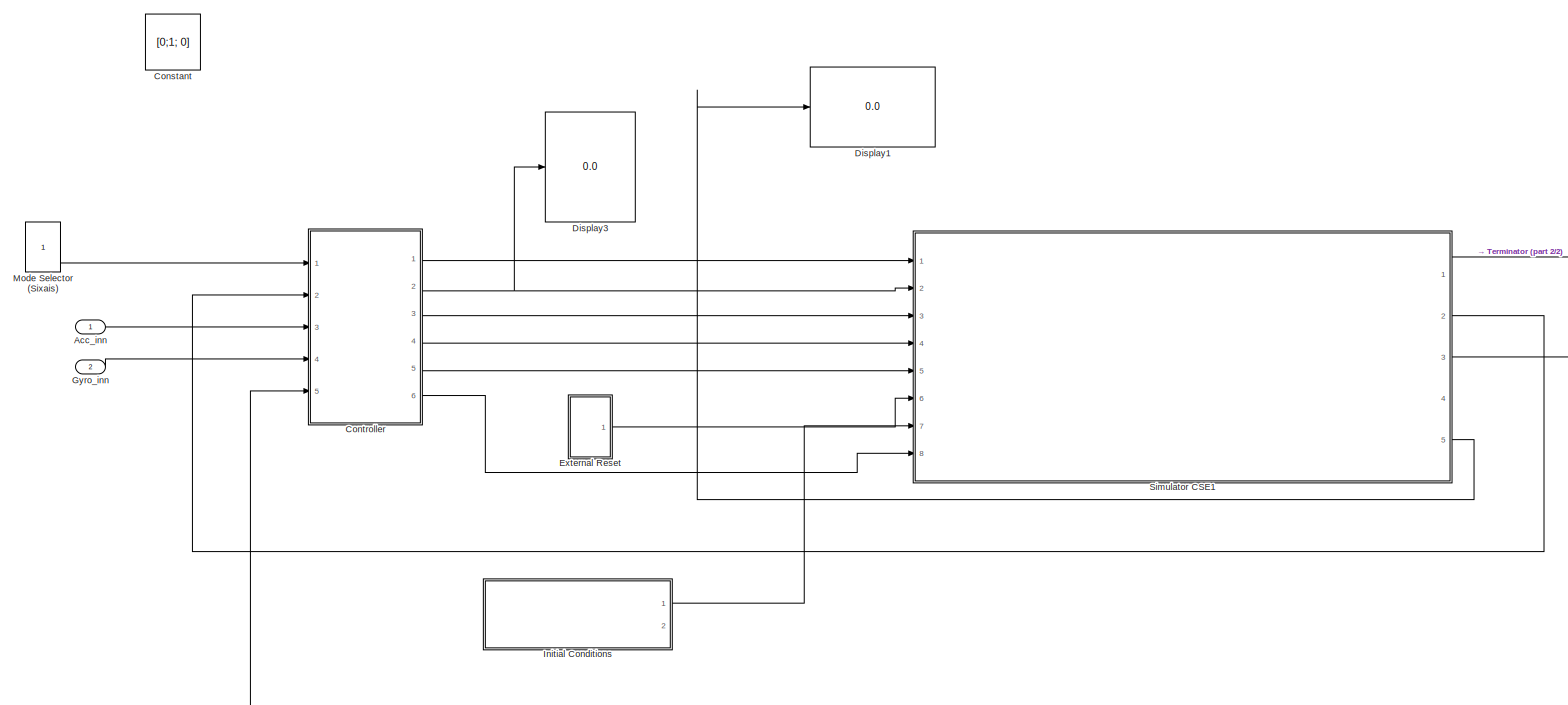
[diagram: root canvas - part 1/2, most of the canvas]
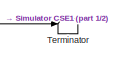
[diagram: root canvas - part 2/2, middle right region]
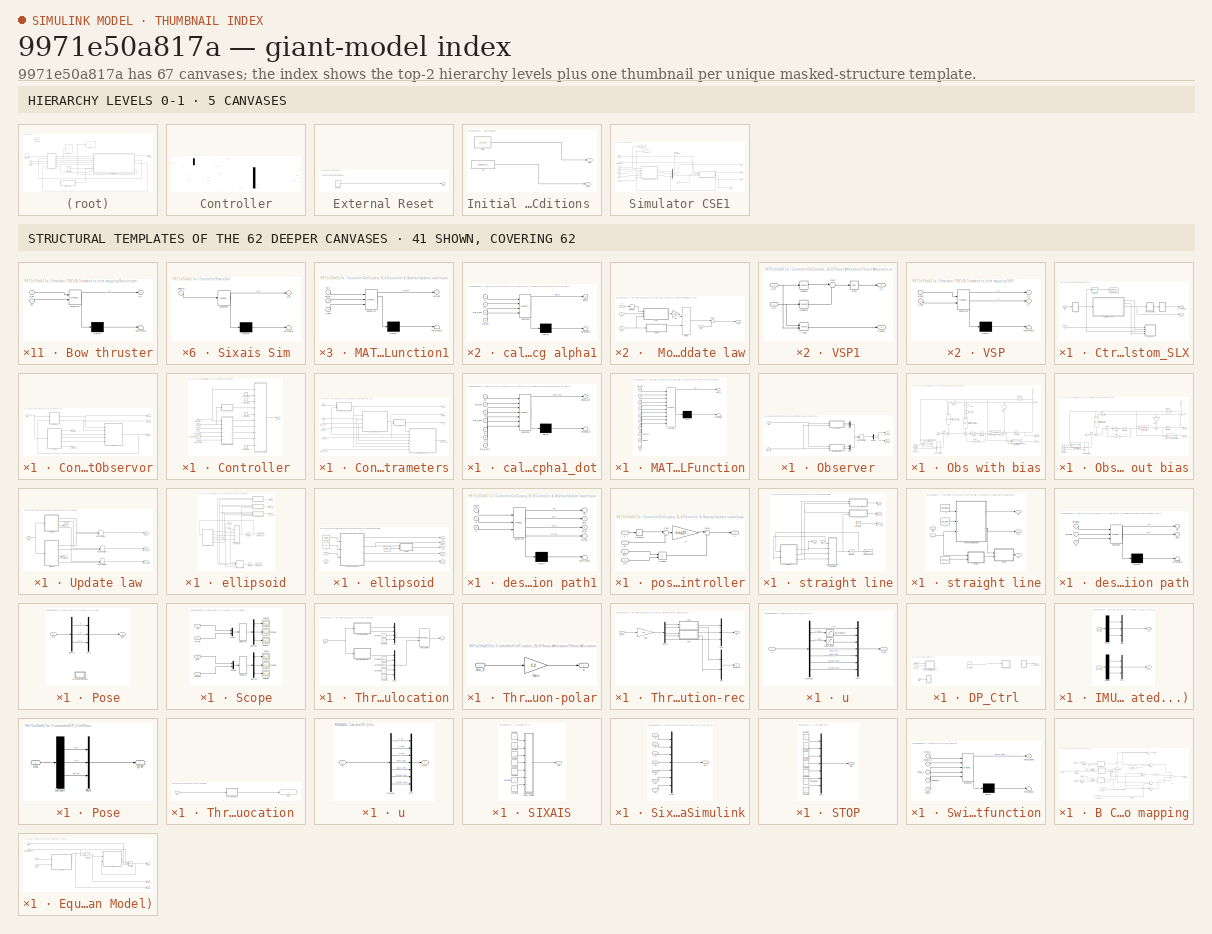
[diagram: thumbnail index - top-2 hierarchy levels (5 canvases) + 41 structural-template representatives of the remaining 62 canvases]
MODEL slx_9971e50a817a
KIND model
CONFIG AbsTol = auto
CONFIG EnableMultiTasking = off
CONFIG FixedStep = auto
CONFIG MaxStep = 10e-3
CONFIG MinStep = auto
CONFIG RelTol = 1e-3
CONFIG SampleTimeConstraint = Unconstrained
CONFIG Solver = VariableStepAuto
CONFIG SolverName = VariableStepAuto
CONFIG StartTime = 0.0
CONFIG StopTime = 200
BLOCK [Inport] Acc_inn
  IconDisplay = Port number
BLOCK [Constant] Constant
  Value = [0;1; 0]
BLOCK [SubSystem] Controller
  Ports = [5, 6]
  RequestExecContextInheritance = off
BLOCK [Inport] Controller/Acc_in
  IconDisplay = Port number
  Port = 3
BLOCK [SubSystem] Controller/CtrlCustom_SLX
  Ports = [2, 2]
  RequestExecContextInheritance = off
BLOCK [SubSystem] Controller/CtrlCustom_SLX/Controller & Observor
  Ports = [1, 5]
  RequestExecContextInheritance = off
BLOCK [SubSystem] Controller/CtrlCustom_SLX/Controller & Observor/Controller
  Ports = [5, 1]
  RequestExecContextInheritance = off
BLOCK [Constant] Controller/CtrlCustom_SLX/Controller & Observor/Controller/Constant10
  Value = D
BLOCK [Constant] Controller/CtrlCustom_SLX/Controller & Observor/Controller/Constant11
  Value = b
BLOCK [Constant] Controller/CtrlCustom_SLX/Controller & Observor/Controller/Constant7
  Value = K_1
BLOCK [Constant] Controller/CtrlCustom_SLX/Controller & Observor/Controller/Constant8
  Value = K_2
BLOCK [Constant] Controller/CtrlCustom_SLX/Controller & Observor/Controller/Constant9
  Value = M
BLOCK [SubSystem] Controller/CtrlCustom_SLX/Controller & Observor/Controller/Controller_parameters
  Ports = [6, 4]
  RequestExecContextInheritance = off
BLOCK [Inport] Controller/CtrlCustom_SLX/Controller & Observor/Controller/Controller_parameters/K1
  IconDisplay = Port number
  Port = 5
BLOCK [Outport] Controller/CtrlCustom_SLX/Controller & Observor/Controller/Controller_parameters/alpha1
  IconDisplay = Port number
  Port = 4
BLOCK [Outport] Controller/CtrlCustom_SLX/Controller & Observor/Controller/Controller_parameters/alpha1_dot
  IconDisplay = Port number
  Port = 3
BLOCK [SubSystem] Controller/CtrlCustom_SLX/Controller & Observor/Controller/Controller_parameters/calculating alpha1
  ErrorFcn = Stateflow.Translate.translate
  PermitHierarchicalResolution = ExplicitOnly
  Ports = [4, 1]
  RequestExecContextInheritance = off
  SFBlockType = MATLAB Function
  TreatAsAtomicUnit = on
BLOCK [Demux] Controller/CtrlCustom_SLX/Controller & Observor/Controller/Controller_parameters/calculating alpha1/ Demux 
  Outputs = 1
  Ports = [1, 1]
BLOCK [S-Function] Controller/CtrlCustom_SLX/Controller & Observor/Controller/Controller_parameters/calculating alpha1/ SFunction 
  EnableBusSupport = on
  FunctionName = sf_sfun
  PortCounts = [4 2]
  Ports = [4, 2]
  SFcnIsStateOwnerBlock = off
  SFunctionDeploymentMode = off
  Tag = Stateflow S-Function CSE1_HIL_full16_18a 21
BLOCK [Terminator] Controller/CtrlCustom_SLX/Controller & Observor/Controller/Controller_parameters/calculating alpha1/ Terminator 
BLOCK [Inport] Controller/CtrlCustom_SLX/Controller & Observor/Controller/Controller_parameters/calculating alpha1/K1
  IconDisplay = Port number
  Port = 2
BLOCK [Outport] Controller/CtrlCustom_SLX/Controller & Observor/Controller/Controller_parameters/calculating alpha1/alpha1
  IconDisplay = Port number
BLOCK [Inport] Controller/CtrlCustom_SLX/Controller & Observor/Controller/Controller_parameters/calculating alpha1/eta_d_dot
  IconDisplay = Port number
  Port = 3
BLOCK [Inport] Controller/CtrlCustom_SLX/Controller & Observor/Controller/Controller_parameters/calculating alpha1/eta_hat
  IconDisplay = Port number
  Port = 4
BLOCK [Inport] Controller/CtrlCustom_SLX/Controller & Observor/Controller/Controller_parameters/calculating alpha1/z1
  IconDisplay = Port number
BLOCK [SubSystem] Controller/CtrlCustom_SLX/Controller & Observor/Controller/Controller_parameters/calculating alpha1_dot
  ErrorFcn = Stateflow.Translate.translate
  PermitHierarchicalResolution = ExplicitOnly
  Ports = [7, 1]
  RequestExecContextInheritance = off
  SFBlockType = MATLAB Function
  TreatAsAtomicUnit = on
BLOCK [Demux] Controller/CtrlCustom_SLX/Controller & Observor/Controller/Controller_parameters/calculating alpha1_dot/ Demux 
  Outputs = 1
  Ports = [1, 1]
BLOCK [S-Function] Controller/CtrlCustom_SLX/Controller & Observor/Controller/Controller_parameters/calculating alpha1_dot/ SFunction 
  EnableBusSupport = on
  FunctionName = sf_sfun
  PortCounts = [7 2]
  Ports = [7, 2]
  SFcnIsStateOwnerBlock = off
  SFunctionDeploymentMode = off
  Tag = Stateflow S-Function CSE1_HIL_full16_18a 23
BLOCK [Terminator] Controller/CtrlCustom_SLX/Controller & Observor/Controller/Controller_parameters/calculating alpha1_dot/ Terminator 
BLOCK [Inport] Controller/CtrlCustom_SLX/Controller & Observor/Controller/Controller_parameters/calculating alpha1_dot/K1
  IconDisplay = Port number
  Port = 5
BLOCK [Outport] Controller/CtrlCustom_SLX/Controller & Observor/Controller/Controller_parameters/calculating alpha1_dot/alpha1_dot
  IconDisplay = Port number
BLOCK [Inport] Controller/CtrlCustom_SLX/Controller & Observor/Controller/Controller_parameters/calculating alpha1_dot/eta_d_dot
  IconDisplay = Port number
  Port = 4
BLOCK [Inport] Controller/CtrlCustom_SLX/Controller & Observor/Controller/Controller_parameters/calculating alpha1_dot/eta_d_dot2
  IconDisplay = Port number
  Port = 7
BLOCK [Inport] Controller/CtrlCustom_SLX/Controller & Observor/Controller/Controller_parameters/calculating alpha1_dot/eta_hat
  IconDisplay = Port number
  Port = 2
BLOCK [Inport] Controller/CtrlCustom_SLX/Controller & Observor/Controller/Controller_parameters/calculating alpha1_dot/nu
  IconDisplay = Port number
  Port = 3
BLOCK [Inport] Controller/CtrlCustom_SLX/Controller & Observor/Controller/Controller_parameters/calculating alpha1_dot/z1
  IconDisplay = Port number
  Port = 6
BLOCK [Inport] Controller/CtrlCustom_SLX/Controller & Observor/Controller/Controller_parameters/calculating alpha1_dot/z2
  IconDisplay = Port number
BLOCK [SubSystem] Controller/CtrlCustom_SLX/Controller & Observor/Controller/Controller_parameters/calculating z1 in BODY-frame
  ErrorFcn = Stateflow.Translate.translate
  PermitHierarchicalResolution = ExplicitOnly
  Ports = [2, 1]
  RequestExecContextInheritance = off
  SFBlockType = MATLAB Function
  TreatAsAtomicUnit = on
BLOCK [Demux] Controller/CtrlCustom_SLX/Controller & Observor/Controller/Controller_parameters/calculating z1 in BODY-frame/ Demux 
  Outputs = 1
  Ports = [1, 1]
BLOCK [S-Function] Controller/CtrlCustom_SLX/Controller & Observor/Controller/Controller_parameters/calculating z1 in BODY-frame/ SFunction 
  EnableBusSupport = on
  FunctionName = sf_sfun
  PortCounts = [2 2]
  Ports = [2, 2]
  SFcnIsStateOwnerBlock = off
  SFunctionDeploymentMode = off
  Tag = Stateflow S-Function CSE1_HIL_full16_18a 27
BLOCK [Terminator] Controller/CtrlCustom_SLX/Controller & Observor/Controller/Controller_parameters/calculating z1 in BODY-frame/ Terminator 
BLOCK [Inport] Controller/CtrlCustom_SLX/Controller & Observor/Controller/Controller_parameters/calculating z1 in BODY-frame/eta_d
  IconDisplay = Port number
BLOCK [Inport] Controller/CtrlCustom_SLX/Controller & Observor/Controller/Controller_parameters/calculating z1 in BODY-frame/eta_hat
  IconDisplay = Port number
  Port = 2
BLOCK [Outport] Controller/CtrlCustom_SLX/Controller & Observor/Controller/Controller_parameters/calculating z1 in BODY-frame/z1
  IconDisplay = Port number
BLOCK [SubSystem] Controller/CtrlCustom_SLX/Controller & Observor/Controller/Controller_parameters/calculating z2
  ErrorFcn = Stateflow.Translate.translate
  PermitHierarchicalResolution = ExplicitOnly
  Ports = [2, 1]
  RequestExecContextInheritance = off
  SFBlockType = MATLAB Function
  TreatAsAtomicUnit = on
BLOCK [Demux] Controller/CtrlCustom_SLX/Controller & Observor/Controller/Controller_parameters/calculating z2/ Demux 
  Outputs = 1
  Ports = [1, 1]
BLOCK [S-Function] Controller/CtrlCustom_SLX/Controller & Observor/Controller/Controller_parameters/calculating z2/ SFunction 
  EnableBusSupport = on
  FunctionName = sf_sfun
  PortCounts = [2 2]
  Ports = [2, 2]
  SFcnIsStateOwnerBlock = off
  SFunctionDeploymentMode = off
  Tag = Stateflow S-Function CSE1_HIL_full16_18a 28
BLOCK [Terminator] Controller/CtrlCustom_SLX/Controller & Observor/Controller/Controller_parameters/calculating z2/ Terminator 
BLOCK [Inport] Controller/CtrlCustom_SLX/Controller & Observor/Controller/Controller_parameters/calculating z2/alpha1
  IconDisplay = Port number
BLOCK [Inport] Controller/CtrlCustom_SLX/Controller & Observor/Controller/Controller_parameters/calculating z2/nu
  IconDisplay = Port number
  Port = 2
BLOCK [Outport] Controller/CtrlCustom_SLX/Controller & Observor/Controller/Controller_parameters/calculating z2/z2
  IconDisplay = Port number
BLOCK [Inport] Controller/CtrlCustom_SLX/Controller & Observor/Controller/Controller_parameters/eta_d
  IconDisplay = Port number
  Port = 3
BLOCK [Inport] Controller/CtrlCustom_SLX/Controller & Observor/Controller/Controller_parameters/eta_d_dot
  IconDisplay = Port number
  Port = 4
BLOCK [Inport] Controller/CtrlCustom_SLX/Controller & Observor/Controller/Controller_parameters/eta_d_dot2
  IconDisplay = Port number
  Port = 6
BLOCK [Inport] Controller/CtrlCustom_SLX/Controller & Observor/Controller/Controller_parameters/eta_hat
  IconDisplay = Port number
BLOCK [Inport] Controller/CtrlCustom_SLX/Controller & Observor/Controller/Controller_parameters/nu_hat
  IconDisplay = Port number
  Port = 2
BLOCK [Outport] Controller/CtrlCustom_SLX/Controller & Observor/Controller/Controller_parameters/z1
  IconDisplay = Port number
BLOCK [Outport] Controller/CtrlCustom_SLX/Controller & Observor/Controller/Controller_parameters/z2
  IconDisplay = Port number
  Port = 2
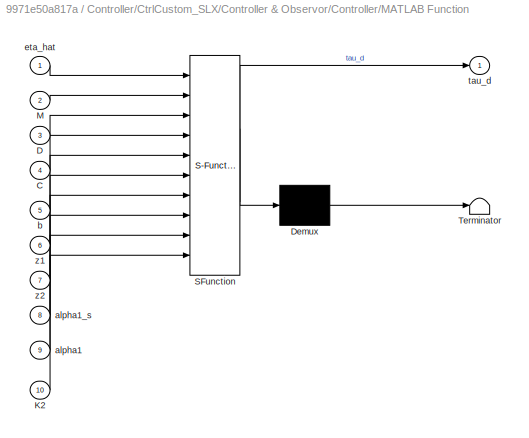
BLOCK [SubSystem] Controller/CtrlCustom_SLX/Controller & Observor/Controller/MATLAB Function
  ErrorFcn = Stateflow.Translate.translate
  PermitHierarchicalResolution = ExplicitOnly
  Ports = [10, 1]
  RequestExecContextInheritance = off
  SFBlockType = MATLAB Function
  TreatAsAtomicUnit = on
BLOCK [Demux] Controller/CtrlCustom_SLX/Controller & Observor/Controller/MATLAB Function/ Demux 
  Outputs = 1
  Ports = [1, 1]
BLOCK [S-Function] Controller/CtrlCustom_SLX/Controller & Observor/Controller/MATLAB Function/ SFunction 
  EnableBusSupport = on
  FunctionName = sf_sfun
  PortCounts = [10 2]
  Ports = [10, 2]
  SFcnIsStateOwnerBlock = off
  SFunctionDeploymentMode = off
  Tag = Stateflow S-Function CSE1_HIL_full16_18a 29
BLOCK [Terminator] Controller/CtrlCustom_SLX/Controller & Observor/Controller/MATLAB Function/ Terminator 
BLOCK [Inport] Controller/CtrlCustom_SLX/Controller & Observor/Controller/MATLAB Function/C
  IconDisplay = Port number
  Port = 4
BLOCK [Inport] Controller/CtrlCustom_SLX/Controller & Observor/Controller/MATLAB Function/D
  IconDisplay = Port number
  Port = 3
BLOCK [Inport] Controller/CtrlCustom_SLX/Controller & Observor/Controller/MATLAB Function/K2
  IconDisplay = Port number
  Port = 10
BLOCK [Inport] Controller/CtrlCustom_SLX/Controller & Observor/Controller/MATLAB Function/M
  IconDisplay = Port number
  Port = 2
BLOCK [Inport] Controller/CtrlCustom_SLX/Controller & Observor/Controller/MATLAB Function/alpha1
  IconDisplay = Port number
  Port = 9
BLOCK [Inport] Controller/CtrlCustom_SLX/Controller & Observor/Controller/MATLAB Function/alpha1_s
  IconDisplay = Port number
  Port = 8
BLOCK [Inport] Controller/CtrlCustom_SLX/Controller & Observor/Controller/MATLAB Function/b
  IconDisplay = Port number
  Port = 5
BLOCK [Inport] Controller/CtrlCustom_SLX/Controller & Observor/Controller/MATLAB Function/eta_hat
  IconDisplay = Port number
BLOCK [Outport] Controller/CtrlCustom_SLX/Controller & Observor/Controller/MATLAB Function/tau_d
  IconDisplay = Port number
BLOCK [Inport] Controller/CtrlCustom_SLX/Controller & Observor/Controller/MATLAB Function/z1
  IconDisplay = Port number
  Port = 6
BLOCK [Inport] Controller/CtrlCustom_SLX/Controller & Observor/Controller/MATLAB Function/z2
  IconDisplay = Port number
  Port = 7
BLOCK [SubSystem] Controller/CtrlCustom_SLX/Controller & Observor/Controller/MATLAB Function1
  ErrorFcn = Stateflow.Translate.translate
  PermitHierarchicalResolution = ExplicitOnly
  Ports = [1, 1]
  RequestExecContextInheritance = off
  SFBlockType = MATLAB Function
  TreatAsAtomicUnit = on
BLOCK [Demux] Controller/CtrlCustom_SLX/Controller & Observor/Controller/MATLAB Function1/ Demux 
  Outputs = 1
  Ports = [1, 1]
BLOCK [S-Function] Controller/CtrlCustom_SLX/Controller & Observor/Controller/MATLAB Function1/ SFunction 
  EnableBusSupport = on
  FunctionName = sf_sfun
  PortCounts = [1 2]
  Ports = [1, 2]
  SFcnIsStateOwnerBlock = off
  SFunctionDeploymentMode = off
  Tag = Stateflow S-Function CSE1_HIL_full16_18a 30
BLOCK [Terminator] Controller/CtrlCustom_SLX/Controller & Observor/Controller/MATLAB Function1/ Terminator 
BLOCK [Outport] Controller/CtrlCustom_SLX/Controller & Observor/Controller/MATLAB Function1/C
  IconDisplay = Port number
BLOCK [Inport] Controller/CtrlCustom_SLX/Controller & Observor/Controller/MATLAB Function1/nu_hat
  IconDisplay = Port number
BLOCK [Inport] Controller/CtrlCustom_SLX/Controller & Observor/Controller/eta_d
  IconDisplay = Port number
  Port = 3
BLOCK [Inport] Controller/CtrlCustom_SLX/Controller & Observor/Controller/eta_d_dot
  IconDisplay = Port number
  Port = 4
BLOCK [Inport] Controller/CtrlCustom_SLX/Controller & Observor/Controller/eta_d_dot2
  IconDisplay = Port number
  Port = 5
BLOCK [Inport] Controller/CtrlCustom_SLX/Controller & Observor/Controller/eta_hat
  IconDisplay = Port number
BLOCK [Inport] Controller/CtrlCustom_SLX/Controller & Observor/Controller/nu_hat
  IconDisplay = Port number
  Port = 2
BLOCK [Outport] Controller/CtrlCustom_SLX/Controller & Observor/Controller/tau_d
  IconDisplay = Port number
BLOCK [SubSystem] Controller/CtrlCustom_SLX/Controller & Observor/Observer
  Ports = [2, 2]
  RequestExecContextInheritance = off
BLOCK [Demux] Controller/CtrlCustom_SLX/Controller & Observor/Observer/Demux
  DisplayOption = bar
  Outputs = 2
  Ports = [1, 2]
BLOCK [ManualSwitch] Controller/CtrlCustom_SLX/Controller & Observor/Observer/Manual Switch
BLOCK [Mux] Controller/CtrlCustom_SLX/Controller & Observor/Observer/Mux
  DisplayOption = bar
  Inputs = 2
  Ports = [2, 1]
BLOCK [Mux] Controller/CtrlCustom_SLX/Controller & Observor/Observer/Mux1
  DisplayOption = bar
  Inputs = 2
  Ports = [2, 1]
BLOCK [SubSystem] Controller/CtrlCustom_SLX/Controller & Observor/Observer/Obs with bias
  Ports = [2, 2]
  RequestExecContextInheritance = off
BLOCK [Constant] Controller/CtrlCustom_SLX/Controller & Observor/Observer/Obs with bias/Constant
  Value = [5 5 5]'
BLOCK [Constant] Controller/CtrlCustom_SLX/Controller & Observor/Observer/Obs with bias/Constant1
  Value = [0 0 0]'
BLOCK [Gain] Controller/CtrlCustom_SLX/Controller & Observor/Observer/Obs with bias/Gain
  Gain = L_2
  Multiplication = Matrix(K*u)
  OutDataTypeStr = Inherit: Inherit via internal rule
  ParamDataTypeStr = Inherit: Inherit via internal rule
  SaturateOnIntegerOverflow = off
BLOCK [Gain] Controller/CtrlCustom_SLX/Controller & Observor/Observer/Obs with bias/Gain1
  Gain = inv_M
  Multiplication = Matrix(K*u)
  OutDataTypeStr = Inherit: Inherit via internal rule
  ParamDataTypeStr = Inherit: Inherit via internal rule
  SaturateOnIntegerOverflow = off
BLOCK [Gain] Controller/CtrlCustom_SLX/Controller & Observor/Observer/Obs with bias/Gain2
  Gain = D
  Multiplication = Matrix(K*u)
  OutDataTypeStr = Inherit: Inherit via internal rule
  ParamDataTypeStr = Inherit: Inherit via internal rule
  SaturateOnIntegerOverflow = off
BLOCK [Gain] Controller/CtrlCustom_SLX/Controller & Observor/Observer/Obs with bias/Gain4
  Gain = L_3
  Multiplication = Matrix(K*u)
  OutDataTypeStr = Inherit: Inherit via internal rule
  ParamDataTypeStr = Inherit: Inherit via internal rule
  SaturateOnIntegerOverflow = off
BLOCK [Gain] Controller/CtrlCustom_SLX/Controller & Observor/Observer/Obs with bias/Gain7
  Gain = L_1
  Multiplication = Matrix(K*u)
  OutDataTypeStr = Inherit: Inherit via internal rule
  ParamDataTypeStr = Inherit: Inherit via internal rule
  SaturateOnIntegerOverflow = off
BLOCK [Integrator] Controller/CtrlCustom_SLX/Controller & Observor/Observer/Obs with bias/Integrator
  Ports = [1, 1]
BLOCK [Integrator] Controller/CtrlCustom_SLX/Controller & Observor/Observer/Obs with bias/Integrator2
  Ports = [1, 1]
BLOCK [Integrator] Controller/CtrlCustom_SLX/Controller & Observor/Observer/Obs with bias/Integrator3
  Ports = [1, 1]
BLOCK [ManualSwitch] Controller/CtrlCustom_SLX/Controller & Observor/Observer/Obs with bias/Manual Switch
  CurrentSetting = 0
BLOCK [Reference] Controller/CtrlCustom_SLX/Controller & Observor/Observer/Obs with bias/Rotation matrix Body frame -> NED  REF=lib/Rotation matrix  (lib defined in slx_8e0b7e7613f0, slx_8fc754c0eda6, +7 more)
  Ports = [2, 1]
  SourceBlock = lib/Rotation matrix
  SourceType = SubSystem
BLOCK [Selector] Controller/CtrlCustom_SLX/Controller & Observor/Observer/Obs with bias/Selector
  IndexOptions = Index vector (dialog)
  Indices = [ 3]
  InputPortWidth = 3
  OutputSizes = 1
  Ports = [1, 1]
BLOCK [Sum] Controller/CtrlCustom_SLX/Controller & Observor/Observer/Obs with bias/Sum
  IconShape = round
  InputSameDT = off
  Inputs = ++|
  OutDataTypeStr = Inherit: Inherit via internal rule
  Ports = [2, 1]
  SaturateOnIntegerOverflow = off
BLOCK [Sum] Controller/CtrlCustom_SLX/Controller & Observor/Observer/Obs with bias/Sum1
  IconShape = round
  InputSameDT = off
  Inputs = ++-
  OutDataTypeStr = Inherit: Inherit via internal rule
  Ports = [3, 1]
  SaturateOnIntegerOverflow = off
BLOCK [Sum] Controller/CtrlCustom_SLX/Controller & Observor/Observer/Obs with bias/Sum2
  IconShape = round
  InputSameDT = off
  Inputs = |++
  OutDataTypeStr = Inherit: Inherit via internal rule
  Ports = [2, 1]
  SaturateOnIntegerOverflow = off
BLOCK [Sum] Controller/CtrlCustom_SLX/Controller & Observor/Observer/Obs with bias/Sum5
  IconShape = round
  InputSameDT = off
  Inputs = +|-
  OutDataTypeStr = Inherit: Inherit via internal rule
  Ports = [2, 1]
  SaturateOnIntegerOverflow = off
BLOCK [Sum] Controller/CtrlCustom_SLX/Controller & Observor/Observer/Obs with bias/Sum6
  IconShape = round
  InputSameDT = off
  Inputs = ++|
  OutDataTypeStr = Inherit: Inherit via internal rule
  Ports = [2, 1]
  SaturateOnIntegerOverflow = off
BLOCK [Reference] Controller/CtrlCustom_SLX/Controller & Observor/Observer/Obs with bias/Transposed rotation matrix NED -> Body frame  REF=lib/Transposed rotation matrix  (lib defined in slx_8e0b7e7613f0, slx_8fc754c0eda6, +7 more)
  Ports = [2, 1]
  SourceBlock = lib/Transposed rotation matrix
  SourceType = SubSystem
BLOCK [Reference] Controller/CtrlCustom_SLX/Controller & Observor/Observer/Obs with bias/Transposed rotation matrix NED -> Body frame1  REF=lib/Transposed rotation matrix  (lib defined in slx_8e0b7e7613f0, slx_8fc754c0eda6, +7 more)
  Ports = [2, 1]
  SourceBlock = lib/Transposed rotation matrix
  SourceType = SubSystem
BLOCK [Reference] Controller/CtrlCustom_SLX/Controller & Observor/Observer/Obs with bias/Transposed rotation matrix NED -> Body frame2  REF=lib/Transposed rotation matrix  (lib defined in slx_8e0b7e7613f0, slx_8fc754c0eda6, +7 more)
  Ports = [2, 1]
  SourceBlock = lib/Transposed rotation matrix
  SourceType = SubSystem
BLOCK [Reference] Controller/CtrlCustom_SLX/Controller & Observor/Observer/Obs with bias/Transposed rotation matrix NED -> Body frame3  REF=lib/Transposed rotation matrix  (lib defined in slx_8e0b7e7613f0, slx_8fc754c0eda6, +7 more)
  Ports = [2, 1]
  SourceBlock = lib/Transposed rotation matrix
  SourceType = SubSystem
BLOCK [Inport] Controller/CtrlCustom_SLX/Controller & Observor/Observer/Obs with bias/eta
  IconDisplay = Port number
BLOCK [Outport] Controller/CtrlCustom_SLX/Controller & Observor/Observer/Obs with bias/eta_hat
  IconDisplay = Port number
  Port = 2
BLOCK [Outport] Controller/CtrlCustom_SLX/Controller & Observor/Observer/Obs with bias/nu_hat
  IconDisplay = Port number
BLOCK [Inport] Controller/CtrlCustom_SLX/Controller & Observor/Observer/Obs with bias/tau_d
  IconDisplay = Port number
  Port = 2
BLOCK [SubSystem] Controller/CtrlCustom_SLX/Controller & Observor/Observer/Obs without bias
  Ports = [2, 2]
  RequestExecContextInheritance = off
BLOCK [Constant] Controller/CtrlCustom_SLX/Controller & Observor/Observer/Obs without bias/Constant
  Value = [5 5 5]'
BLOCK [Constant] Controller/CtrlCustom_SLX/Controller & Observor/Observer/Obs without bias/Constant1
  Value = [0 0 0]'
BLOCK [Gain] Controller/CtrlCustom_SLX/Controller & Observor/Observer/Obs without bias/Gain
  Gain = L_2
  Multiplication = Matrix(K*u)
  OutDataTypeStr = Inherit: Inherit via internal rule
  ParamDataTypeStr = Inherit: Inherit via internal rule
  SaturateOnIntegerOverflow = off
BLOCK [Gain] Controller/CtrlCustom_SLX/Controller & Observor/Observer/Obs without bias/Gain1
  Gain = inv_M
  Multiplication = Matrix(K*u)
  OutDataTypeStr = Inherit: Inherit via internal rule
  ParamDataTypeStr = Inherit: Inherit via internal rule
  SaturateOnIntegerOverflow = off
BLOCK [Gain] Controller/CtrlCustom_SLX/Controller & Observor/Observer/Obs without bias/Gain2
  Gain = D
  Multiplication = Matrix(K*u)
  OutDataTypeStr = Inherit: Inherit via internal rule
  ParamDataTypeStr = Inherit: Inherit via internal rule
  SaturateOnIntegerOverflow = off
BLOCK [Gain] Controller/CtrlCustom_SLX/Controller & Observor/Observer/Obs without bias/Gain7
  Gain = L_1
  Multiplication = Matrix(K*u)
  OutDataTypeStr = Inherit: Inherit via internal rule
  ParamDataTypeStr = Inherit: Inherit via internal rule
  SaturateOnIntegerOverflow = off
BLOCK [Integrator] Controller/CtrlCustom_SLX/Controller & Observor/Observer/Obs without bias/Integrator
  Ports = [1, 1]
BLOCK [Integrator] Controller/CtrlCustom_SLX/Controller & Observor/Observer/Obs without bias/Integrator3
  Ports = [1, 1]
BLOCK [ManualSwitch] Controller/CtrlCustom_SLX/Controller & Observor/Observer/Obs without bias/Manual Switch
BLOCK [Reference] Controller/CtrlCustom_SLX/Controller & Observor/Observer/Obs without bias/Rotation matrix  REF=lib/Rotation matrix  (lib defined in slx_8e0b7e7613f0, slx_8fc754c0eda6, +7 more)
  Ports = [2, 1]
  SourceBlock = lib/Rotation matrix
  SourceType = SubSystem
BLOCK [Selector] Controller/CtrlCustom_SLX/Controller & Observor/Observer/Obs without bias/Selector
  IndexOptions = Index vector (dialog)
  Indices = [ 3]
  InputPortWidth = 3
  OutputSizes = 1
  Ports = [1, 1]
BLOCK [Sum] Controller/CtrlCustom_SLX/Controller & Observor/Observer/Obs without bias/Sum
  IconShape = round
  InputSameDT = off
  Inputs = ++|
  OutDataTypeStr = Inherit: Inherit via internal rule
  Ports = [2, 1]
  SaturateOnIntegerOverflow = off
BLOCK [Sum] Controller/CtrlCustom_SLX/Controller & Observor/Observer/Obs without bias/Sum1
  IconShape = round
  InputSameDT = off
  Inputs = |+-
  OutDataTypeStr = Inherit: Inherit via internal rule
  Ports = [2, 1]
  SaturateOnIntegerOverflow = off
BLOCK [Sum] Controller/CtrlCustom_SLX/Controller & Observor/Observer/Obs without bias/Sum2
  IconShape = round
  InputSameDT = off
  Inputs = |++
  OutDataTypeStr = Inherit: Inherit via internal rule
  Ports = [2, 1]
  SaturateOnIntegerOverflow = off
BLOCK [Sum] Controller/CtrlCustom_SLX/Controller & Observor/Observer/Obs without bias/Sum5
  IconShape = round
  InputSameDT = off
  Inputs = +|-
  OutDataTypeStr = Inherit: Inherit via internal rule
  Ports = [2, 1]
  SaturateOnIntegerOverflow = off
BLOCK [Sum] Controller/CtrlCustom_SLX/Controller & Observor/Observer/Obs without bias/Sum6
  IconShape = round
  InputSameDT = off
  Inputs = ++|
  OutDataTypeStr = Inherit: Inherit via internal rule
  Ports = [2, 1]
  SaturateOnIntegerOverflow = off
BLOCK [Reference] Controller/CtrlCustom_SLX/Controller & Observor/Observer/Obs without bias/Transposed rotation matrix  REF=lib/Transposed rotation matrix  (lib defined in slx_8e0b7e7613f0, slx_8fc754c0eda6, +7 more)
  Ports = [2, 1]
  SourceBlock = lib/Transposed rotation matrix
  SourceType = SubSystem
BLOCK [Reference] Controller/CtrlCustom_SLX/Controller & Observor/Observer/Obs without bias/Transposed rotation matrix NED -> Body frame3  REF=lib/Transposed rotation matrix  (lib defined in slx_8e0b7e7613f0, slx_8fc754c0eda6, +7 more)
  Ports = [2, 1]
  SourceBlock = lib/Transposed rotation matrix
  SourceType = SubSystem
BLOCK [Reference] Controller/CtrlCustom_SLX/Controller & Observor/Observer/Obs without bias/Transposed rotation matrix1  REF=lib/Transposed rotation matrix  (lib defined in slx_8e0b7e7613f0, slx_8fc754c0eda6, +7 more)
  Ports = [2, 1]
  SourceBlock = lib/Transposed rotation matrix
  SourceType = SubSystem
BLOCK [Inport] Controller/CtrlCustom_SLX/Controller & Observor/Observer/Obs without bias/eta
  IconDisplay = Port number
BLOCK [Outport] Controller/CtrlCustom_SLX/Controller & Observor/Observer/Obs without bias/eta_hat
  IconDisplay = Port number
  Port = 2
BLOCK [Outport] Controller/CtrlCustom_SLX/Controller & Observor/Observer/Obs without bias/nu_hat
  IconDisplay = Port number
BLOCK [Inport] Controller/CtrlCustom_SLX/Controller & Observor/Observer/Obs without bias/tau_d
  IconDisplay = Port number
  Port = 2
BLOCK [Inport] Controller/CtrlCustom_SLX/Controller & Observor/Observer/eta
  IconDisplay = Port number
BLOCK [Outport] Controller/CtrlCustom_SLX/Controller & Observor/Observer/eta_hat
  IconDisplay = Port number
BLOCK [Outport] Controller/CtrlCustom_SLX/Controller & Observor/Observer/nu_hat
  IconDisplay = Port number
  Port = 2
BLOCK [Inport] Controller/CtrlCustom_SLX/Controller & Observor/Observer/tau_d
  IconDisplay = Port number
  Port = 2
BLOCK [SubSystem] Controller/CtrlCustom_SLX/Controller & Observor/Update law
  Ports = [1, 5]
  RequestExecContextInheritance = off
BLOCK [ManualSwitch] Controller/CtrlCustom_SLX/Controller & Observor/Update law/Manual Switch1
BLOCK [ManualSwitch] Controller/CtrlCustom_SLX/Controller & Observor/Update law/Manual Switch2
BLOCK [ManualSwitch] Controller/CtrlCustom_SLX/Controller & Observor/Update law/Manual Switch4
BLOCK [Outport] Controller/CtrlCustom_SLX/Controller & Observor/Update law/Us_ellipsoid
  IconDisplay = Port number
  Port = 5
BLOCK [Outport] Controller/CtrlCustom_SLX/Controller & Observor/Update law/Us_line
  IconDisplay = Port number
BLOCK [SubSystem] Controller/CtrlCustom_SLX/Controller & Observor/Update law/ellipsoid
  Ports = [1, 4]
  RequestExecContextInheritance = off
BLOCK [SubSystem] Controller/CtrlCustom_SLX/Controller & Observor/Update law/ellipsoid/ Modified gradient update law
  Ports = [4, 1]
  RequestExecContextInheritance = off
BLOCK [Product] Controller/CtrlCustom_SLX/Controller & Observor/Update law/ellipsoid/ Modified gradient update law/Divide
  InputSameDT = off
  Inputs = */
  OutDataTypeStr = Inherit: Inherit via internal rule
  Ports = [2, 1]
  RndMeth = Floor
  SaturateOnIntegerOverflow = off
BLOCK [Selector] Controller/CtrlCustom_SLX/Controller & Observor/Update law/ellipsoid/ Modified gradient update law/Selector
  IndexOptions = Index vector (dialog)
  Indices = [1 2]
  InputPortWidth = 3
  OutputSizes = 1
  Ports = [1, 1]
BLOCK [Sum] Controller/CtrlCustom_SLX/Controller & Observor/Update law/ellipsoid/ Modified gradient update law/Sum1
  IconShape = round
  InputSameDT = off
  Inputs = |-+
  OutDataTypeStr = Inherit: Inherit via internal rule
  Ports = [2, 1]
  SaturateOnIntegerOverflow = off
BLOCK [Inport] Controller/CtrlCustom_SLX/Controller & Observor/Update law/ellipsoid/ Modified gradient update law/Us
  IconDisplay = Port number
  Port = 2
BLOCK [SubSystem] Controller/CtrlCustom_SLX/Controller & Observor/Update law/ellipsoid/ Modified gradient update law/dV//ds  
  ErrorFcn = Stateflow.Translate.translate
  PermitHierarchicalResolution = ExplicitOnly
  Ports = [3, 1]
  RequestExecContextInheritance = off
  SFBlockType = MATLAB Function
  TreatAsAtomicUnit = on
BLOCK [Demux] Controller/CtrlCustom_SLX/Controller & Observor/Update law/ellipsoid/ Modified gradient update law/dV//ds  / Demux 
  Outputs = 1
  Ports = [1, 1]
BLOCK [S-Function] Controller/CtrlCustom_SLX/Controller & Observor/Update law/ellipsoid/ Modified gradient update law/dV//ds  / SFunction 
  EnableBusSupport = on
  FunctionName = sf_sfun
  PortCounts = [3 2]
  Ports = [3, 2]
  SFcnIsStateOwnerBlock = off
  SFunctionDeploymentMode = off
  Tag = Stateflow S-Function CSE1_HIL_full16_18a 17
BLOCK [Terminator] Controller/CtrlCustom_SLX/Controller & Observor/Update law/ellipsoid/ Modified gradient update law/dV//ds  / Terminator 
BLOCK [Outport] Controller/CtrlCustom_SLX/Controller & Observor/Update law/ellipsoid/ Modified gradient update law/dV//ds  /V_s
  IconDisplay = Port number
BLOCK [Inport] Controller/CtrlCustom_SLX/Controller & Observor/Update law/ellipsoid/ Modified gradient update law/dV//ds  /p
  IconDisplay = Port number
BLOCK [Inport] Controller/CtrlCustom_SLX/Controller & Observor/Update law/ellipsoid/ Modified gradient update law/dV//ds  /p_d
  IconDisplay = Port number
  Port = 2
BLOCK [Inport] Controller/CtrlCustom_SLX/Controller & Observor/Update law/ellipsoid/ Modified gradient update law/dV//ds  /pd_s
  IconDisplay = Port number
  Port = 3
BLOCK [SubSystem] Controller/CtrlCustom_SLX/Controller & Observor/Update law/ellipsoid/ Modified gradient update law/length
  ErrorFcn = Stateflow.Translate.translate
  PermitHierarchicalResolution = ExplicitOnly
  Ports = [1, 1]
  RequestExecContextInheritance = off
  SFBlockType = MATLAB Function
  TreatAsAtomicUnit = on
BLOCK [Demux] Controller/CtrlCustom_SLX/Controller & Observor/Update law/ellipsoid/ Modified gradient update law/length/ Demux 
  Outputs = 1
  Ports = [1, 1]
BLOCK [S-Function] Controller/CtrlCustom_SLX/Controller & Observor/Update law/ellipsoid/ Modified gradient update law/length/ SFunction 
  EnableBusSupport = on
  FunctionName = sf_sfun
  PortCounts = [1 2]
  Ports = [1, 2]
  SFcnIsStateOwnerBlock = off
  SFunctionDeploymentMode = off
  Tag = Stateflow S-Function CSE1_HIL_full16_18a 18
BLOCK [Terminator] Controller/CtrlCustom_SLX/Controller & Observor/Update law/ellipsoid/ Modified gradient update law/length/ Terminator 
BLOCK [Outport] Controller/CtrlCustom_SLX/Controller & Observor/Update law/ellipsoid/ Modified gradient update law/length/Norm_pd_s
  IconDisplay = Port number
BLOCK [Inport] Controller/CtrlCustom_SLX/Controller & Observor/Update law/ellipsoid/ Modified gradient update law/length/pd_s
  IconDisplay = Port number
BLOCK [Gain] Controller/CtrlCustom_SLX/Controller & Observor/Update law/ellipsoid/ Modified gradient update law/mu
  Gain = mu
  Multiplication = Matrix(K*u)
  OutDataTypeStr = Inherit: Inherit via internal rule
  ParamDataTypeStr = Inherit: Inherit via internal rule
  SaturateOnIntegerOverflow = off
BLOCK [Inport] Controller/CtrlCustom_SLX/Controller & Observor/Update law/ellipsoid/ Modified gradient update law/p
  IconDisplay = Port number
BLOCK [Inport] Controller/CtrlCustom_SLX/Controller & Observor/Update law/ellipsoid/ Modified gradient update law/p_d
  IconDisplay = Port number
  Port = 3
BLOCK [Inport] Controller/CtrlCustom_SLX/Controller & Observor/Update law/ellipsoid/ Modified gradient update law/pd_s
  IconDisplay = Port number
  Port = 4
BLOCK [Outport] Controller/CtrlCustom_SLX/Controller & Observor/Update law/ellipsoid/ Modified gradient update law/s_dot
  IconDisplay = Port number
BLOCK [Integrator] Controller/CtrlCustom_SLX/Controller & Observor/Update law/ellipsoid/Integrator
  Ports = [1, 1]
BLOCK [Integrator] Controller/CtrlCustom_SLX/Controller & Observor/Update law/ellipsoid/Integrator1
  Ports = [1, 1]
BLOCK [SubSystem] Controller/CtrlCustom_SLX/Controller & Observor/Update law/ellipsoid/MATLAB Function
  ErrorFcn = Stateflow.Translate.translate
  PermitHierarchicalResolution = ExplicitOnly
  Ports = [2, 1]
  RequestExecContextInheritance = off
  SFBlockType = MATLAB Function
  TreatAsAtomicUnit = on
BLOCK [Demux] Controller/CtrlCustom_SLX/Controller & Observor/Update law/ellipsoid/MATLAB Function/ Demux 
  Outputs = 1
  Ports = [1, 1]
BLOCK [S-Function] Controller/CtrlCustom_SLX/Controller & Observor/Update law/ellipsoid/MATLAB Function/ SFunction 
  EnableBusSupport = on
  FunctionName = sf_sfun
  PortCounts = [2 2]
  Ports = [2, 2]
  SFcnIsStateOwnerBlock = off
  SFunctionDeploymentMode = off
  Tag = Stateflow S-Function CSE1_HIL_full16_18a 19
BLOCK [Terminator] Controller/CtrlCustom_SLX/Controller & Observor/Update law/ellipsoid/MATLAB Function/ Terminator 
BLOCK [Outport] Controller/CtrlCustom_SLX/Controller & Observor/Update law/ellipsoid/MATLAB Function/eta_d
  IconDisplay = Port number
BLOCK [Inport] Controller/CtrlCustom_SLX/Controller & Observor/Update law/ellipsoid/MATLAB Function/pd
  IconDisplay = Port number
BLOCK [Inport] Controller/CtrlCustom_SLX/Controller & Observor/Update law/ellipsoid/MATLAB Function/pd_s
  IconDisplay = Port number
  Port = 2
BLOCK [SubSystem] Controller/CtrlCustom_SLX/Controller & Observor/Update law/ellipsoid/MATLAB Function1
  ErrorFcn = Stateflow.Translate.translate
  PermitHierarchicalResolution = ExplicitOnly
  Ports = [3, 1]
  RequestExecContextInheritance = off
  SFBlockType = MATLAB Function
  TreatAsAtomicUnit = on
BLOCK [Demux] Controller/CtrlCustom_SLX/Controller & Observor/Update law/ellipsoid/MATLAB Function1/ Demux 
  Outputs = 1
  Ports = [1, 1]
BLOCK [S-Function] Controller/CtrlCustom_SLX/Controller & Observor/Update law/ellipsoid/MATLAB Function1/ SFunction 
  EnableBusSupport = on
  FunctionName = sf_sfun
  PortCounts = [3 2]
  Ports = [3, 2]
  SFcnIsStateOwnerBlock = off
  SFunctionDeploymentMode = off
  Tag = Stateflow S-Function CSE1_HIL_full16_18a 20
BLOCK [Terminator] Controller/CtrlCustom_SLX/Controller & Observor/Update law/ellipsoid/MATLAB Function1/ Terminator 
BLOCK [Outport] Controller/CtrlCustom_SLX/Controller & Observor/Update law/ellipsoid/MATLAB Function1/eta_dot
  IconDisplay = Port number
BLOCK [Inport] Controller/CtrlCustom_SLX/Controller & Observor/Update law/ellipsoid/MATLAB Function1/pd_s
  IconDisplay = Port number
BLOCK [Inport] Controller/CtrlCustom_SLX/Controller & Observor/Update law/ellipsoid/MATLAB Function1/pd_ss
  IconDisplay = Port number
  Port = 2
BLOCK [Inport] Controller/CtrlCustom_SLX/Controller & Observor/Update law/ellipsoid/MATLAB Function1/s_dot
  IconDisplay = Port number
  Port = 3
BLOCK [SubSystem] Controller/CtrlCustom_SLX/Controller & Observor/Update law/ellipsoid/MATLAB Function2
  ErrorFcn = Stateflow.Translate.translate
  PermitHierarchicalResolution = ExplicitOnly
  Ports = [4, 1]
  RequestExecContextInheritance = off
  SFBlockType = MATLAB Function
  TreatAsAtomicUnit = on
BLOCK [Demux] Controller/CtrlCustom_SLX/Controller & Observor/Update law/ellipsoid/MATLAB Function2/ Demux 
  Outputs = 1
  Ports = [1, 1]
BLOCK [S-Function] Controller/CtrlCustom_SLX/Controller & Observor/Update law/ellipsoid/MATLAB Function2/ SFunction 
  EnableBusSupport = on
  FunctionName = sf_sfun
  PortCounts = [4 2]
  Ports = [4, 2]
  SFcnIsStateOwnerBlock = off
  SFunctionDeploymentMode = off
  Tag = Stateflow S-Function CSE1_HIL_full16_18a 26
BLOCK [Terminator] Controller/CtrlCustom_SLX/Controller & Observor/Update law/ellipsoid/MATLAB Function2/ Terminator 
BLOCK [Outport] Controller/CtrlCustom_SLX/Controller & Observor/Update law/ellipsoid/MATLAB Function2/eta_dot2
  IconDisplay = Port number
BLOCK [Inport] Controller/CtrlCustom_SLX/Controller & Observor/Update law/ellipsoid/MATLAB Function2/pd_s
  IconDisplay = Port number
BLOCK [Inport] Controller/CtrlCustom_SLX/Controller & Observor/Update law/ellipsoid/MATLAB Function2/pd_ss
  IconDisplay = Port number
  Port = 2
BLOCK [Inport] Controller/CtrlCustom_SLX/Controller & Observor/Update law/ellipsoid/MATLAB Function2/pd_sss
  IconDisplay = Port number
  Port = 3
BLOCK [Inport] Controller/CtrlCustom_SLX/Controller & Observor/Update law/ellipsoid/MATLAB Function2/s_dot
  IconDisplay = Port number
  Port = 4
BLOCK [Outport] Controller/CtrlCustom_SLX/Controller & Observor/Update law/ellipsoid/Us
  IconDisplay = Port number
  Port = 3
BLOCK [SubSystem] Controller/CtrlCustom_SLX/Controller & Observor/Update law/ellipsoid/ellipsoid
  Ports = [2, 5]
  RequestExecContextInheritance = off
BLOCK [Outport] Controller/CtrlCustom_SLX/Controller & Observor/Update law/ellipsoid/ellipsoid/Us
  IconDisplay = Port number
BLOCK [Constant] Controller/CtrlCustom_SLX/Controller & Observor/Update law/ellipsoid/ellipsoid/_
  Value = Umax_2
BLOCK [Constant] Controller/CtrlCustom_SLX/Controller & Observor/Update law/ellipsoid/ellipsoid/_1
  Value = center
BLOCK [Constant] Controller/CtrlCustom_SLX/Controller & Observor/Update law/ellipsoid/ellipsoid/_2
  Value = R
BLOCK [SubSystem] Controller/CtrlCustom_SLX/Controller & Observor/Update law/ellipsoid/ellipsoid/desired postion path1
  ErrorFcn = Stateflow.Translate.translate
  PermitHierarchicalResolution = ExplicitOnly
  Ports = [3, 4]
  RequestExecContextInheritance = off
  SFBlockType = MATLAB Function
  TreatAsAtomicUnit = on
BLOCK [Demux] Controller/CtrlCustom_SLX/Controller & Observor/Update law/ellipsoid/ellipsoid/desired postion path1/ Demux 
  Outputs = 1
  Ports = [1, 1]
BLOCK [S-Function] Controller/CtrlCustom_SLX/Controller & Observor/Update law/ellipsoid/ellipsoid/desired postion path1/ SFunction 
  EnableBusSupport = on
  FunctionName = sf_sfun
  PortCounts = [3 5]
  Ports = [3, 5]
  SFcnIsStateOwnerBlock = off
  SFunctionDeploymentMode = off
  Tag = Stateflow S-Function CSE1_HIL_full16_18a 25
BLOCK [Terminator] Controller/CtrlCustom_SLX/Controller & Observor/Update law/ellipsoid/ellipsoid/desired postion path1/ Terminator 
BLOCK [Inport] Controller/CtrlCustom_SLX/Controller & Observor/Update law/ellipsoid/ellipsoid/desired postion path1/R
  IconDisplay = Port number
  Port = 2
BLOCK [Inport] Controller/CtrlCustom_SLX/Controller & Observor/Update law/ellipsoid/ellipsoid/desired postion path1/center
  IconDisplay = Port number
BLOCK [Outport] Controller/CtrlCustom_SLX/Controller & Observor/Update law/ellipsoid/ellipsoid/desired postion path1/pd
  IconDisplay = Port number
BLOCK [Outport] Controller/CtrlCustom_SLX/Controller & Observor/Update law/ellipsoid/ellipsoid/desired postion path1/pd_s
  IconDisplay = Port number
  Port = 2
BLOCK [Outport] Controller/CtrlCustom_SLX/Controller & Observor/Update law/ellipsoid/ellipsoid/desired postion path1/pd_ss
  IconDisplay = Port number
  Port = 3
BLOCK [Outport] Controller/CtrlCustom_SLX/Controller & Observor/Update law/ellipsoid/ellipsoid/desired postion path1/pd_sss
  IconDisplay = Port number
  Port = 4
BLOCK [Inport] Controller/CtrlCustom_SLX/Controller & Observor/Update law/ellipsoid/ellipsoid/desired postion path1/s
  IconDisplay = Port number
  Port = 3
BLOCK [SubSystem] Controller/CtrlCustom_SLX/Controller & Observor/Update law/ellipsoid/ellipsoid/length
  ErrorFcn = Stateflow.Translate.translate
  PermitHierarchicalResolution = ExplicitOnly
  Ports = [2, 1]
  RequestExecContextInheritance = off
  SFBlockType = MATLAB Function
  TreatAsAtomicUnit = on
BLOCK [Demux] Controller/CtrlCustom_SLX/Controller & Observor/Update law/ellipsoid/ellipsoid/length/ Demux 
  Outputs = 1
  Ports = [1, 1]
BLOCK [S-Function] Controller/CtrlCustom_SLX/Controller & Observor/Update law/ellipsoid/ellipsoid/length/ SFunction 
  EnableBusSupport = on
  FunctionName = sf_sfun
  PortCounts = [2 2]
  Ports = [2, 2]
  SFcnIsStateOwnerBlock = off
  SFunctionDeploymentMode = off
  Tag = Stateflow S-Function CSE1_HIL_full16_18a 22
BLOCK [Terminator] Controller/CtrlCustom_SLX/Controller & Observor/Update law/ellipsoid/ellipsoid/length/ Terminator 
BLOCK [Inport] Controller/CtrlCustom_SLX/Controller & Observor/Update law/ellipsoid/ellipsoid/length/U_d
  IconDisplay = Port number
  Port = 2
BLOCK [Inport] Controller/CtrlCustom_SLX/Controller & Observor/Update law/ellipsoid/ellipsoid/length/pd_s
  IconDisplay = Port number
BLOCK [Outport] Controller/CtrlCustom_SLX/Controller & Observor/Update law/ellipsoid/ellipsoid/length/y
  IconDisplay = Port number
BLOCK [Outport] Controller/CtrlCustom_SLX/Controller & Observor/Update law/ellipsoid/ellipsoid/pd
  IconDisplay = Port number
  Port = 2
BLOCK [Outport] Controller/CtrlCustom_SLX/Controller & Observor/Update law/ellipsoid/ellipsoid/pd_s
  IconDisplay = Port number
  Port = 3
BLOCK [Outport] Controller/CtrlCustom_SLX/Controller & Observor/Update law/ellipsoid/ellipsoid/pd_ss
  IconDisplay = Port number
  Port = 4
BLOCK [Outport] Controller/CtrlCustom_SLX/Controller & Observor/Update law/ellipsoid/ellipsoid/pd_sss
  IconDisplay = Port number
  Port = 5
BLOCK [Inport] Controller/CtrlCustom_SLX/Controller & Observor/Update law/ellipsoid/ellipsoid/s
  IconDisplay = Port number
BLOCK [Inport] Controller/CtrlCustom_SLX/Controller & Observor/Update law/ellipsoid/ellipsoid/sign
  IconDisplay = Port number
  Port = 2
BLOCK [Inport] Controller/CtrlCustom_SLX/Controller & Observor/Update law/ellipsoid/eta
  IconDisplay = Port number
BLOCK [Outport] Controller/CtrlCustom_SLX/Controller & Observor/Update law/ellipsoid/eta_d
  IconDisplay = Port number
BLOCK [Outport] Controller/CtrlCustom_SLX/Controller & Observor/Update law/ellipsoid/eta_d_dot
  IconDisplay = Port number
  Port = 2
BLOCK [Outport] Controller/CtrlCustom_SLX/Controller & Observor/Update law/ellipsoid/eta_d_dot2
  IconDisplay = Port number
  Port = 4
BLOCK [SubSystem] Controller/CtrlCustom_SLX/Controller & Observor/Update law/ellipsoid/position controller
  Ports = [4, 1]
  RequestExecContextInheritance = off
BLOCK [Gain] Controller/CtrlCustom_SLX/Controller & Observor/Update law/ellipsoid/position controller/K
  Gain = diag([0.1,0.1])
  Multiplication = Matrix(K*u)
  OutDataTypeStr = Inherit: Inherit via internal rule
  ParamDataTypeStr = Inherit: Inherit via internal rule
  SaturateOnIntegerOverflow = off
BLOCK [Product] Controller/CtrlCustom_SLX/Controller & Observor/Update law/ellipsoid/position controller/Product
  InputSameDT = off
  OutDataTypeStr = Inherit: Inherit via internal rule
  Ports = [2, 1]
  RndMeth = Floor
  SaturateOnIntegerOverflow = off
BLOCK [Selector] Controller/CtrlCustom_SLX/Controller & Observor/Update law/ellipsoid/position controller/Selector
  IndexOptions = Index vector (dialog)
  Indices = [1 2]
  InputPortWidth = 3
  OutputSizes = 1
  Ports = [1, 1]
BLOCK [Sum] Controller/CtrlCustom_SLX/Controller & Observor/Update law/ellipsoid/position controller/Sum
  IconShape = round
  InputSameDT = off
  Inputs = |+-
  OutDataTypeStr = Inherit: Inherit via internal rule
  Ports = [2, 1]
  SaturateOnIntegerOverflow = off
BLOCK [Sum] Controller/CtrlCustom_SLX/Controller & Observor/Update law/ellipsoid/position controller/Sum1
  IconShape = round
  InputSameDT = off
  Inputs = |-+
  OutDataTypeStr = Inherit: Inherit via internal rule
  Ports = [2, 1]
  SaturateOnIntegerOverflow = off
BLOCK [Inport] Controller/CtrlCustom_SLX/Controller & Observor/Update law/ellipsoid/position controller/Us
  IconDisplay = Port number
  Port = 4
BLOCK [Inport] Controller/CtrlCustom_SLX/Controller & Observor/Update law/ellipsoid/position controller/p
  IconDisplay = Port number
BLOCK [Inport] Controller/CtrlCustom_SLX/Controller & Observor/Update law/ellipsoid/position controller/pd
  IconDisplay = Port number
  Port = 2
BLOCK [Inport] Controller/CtrlCustom_SLX/Controller & Observor/Update law/ellipsoid/position controller/pd_s
  IconDisplay = Port number
  Port = 3
BLOCK [Outport] Controller/CtrlCustom_SLX/Controller & Observor/Update law/ellipsoid/position controller/u
  IconDisplay = Port number
BLOCK [ToWorkspace] Controller/CtrlCustom_SLX/Controller & Observor/Update law/ellipsoid/to workspace
  FixptAsFi = on
  MaxDataPoints = inf
  Ports = [1]
  SampleTime = -1
  SaveFormat = Timeseries
  VariableName = p
BLOCK [ToWorkspace] Controller/CtrlCustom_SLX/Controller & Observor/Update law/ellipsoid/to workspace2
  FixptAsFi = on
  MaxDataPoints = inf
  Ports = [1]
  SampleTime = -1
  SaveFormat = Timeseries
  VariableName = s2
BLOCK [Inport] Controller/CtrlCustom_SLX/Controller & Observor/Update law/eta
  IconDisplay = Port number
BLOCK [Outport] Controller/CtrlCustom_SLX/Controller & Observor/Update law/eta_d
  IconDisplay = Port number
  Port = 2
BLOCK [Outport] Controller/CtrlCustom_SLX/Controller & Observor/Update law/eta_d_dot
  IconDisplay = Port number
  Port = 3
BLOCK [Outport] Controller/CtrlCustom_SLX/Controller & Observor/Update law/eta_d_dot2
  IconDisplay = Port number
  Port = 4
BLOCK [SubSystem] Controller/CtrlCustom_SLX/Controller & Observor/Update law/straight line
  Ports = [1, 4]
  RequestExecContextInheritance = off
BLOCK [Constant] Controller/CtrlCustom_SLX/Controller & Observor/Update law/straight line/Constant
  Value = zeros(3,1)
BLOCK [Integrator] Controller/CtrlCustom_SLX/Controller & Observor/Update law/straight line/Integrator
  Ports = [1, 1]
BLOCK [SubSystem] Controller/CtrlCustom_SLX/Controller & Observor/Update law/straight line/MATLAB Function
  ErrorFcn = Stateflow.Translate.translate
  PermitHierarchicalResolution = ExplicitOnly
  Ports = [2, 1]
  RequestExecContextInheritance = off
  SFBlockType = MATLAB Function
  TreatAsAtomicUnit = on
BLOCK [Demux] Controller/CtrlCustom_SLX/Controller & Observor/Update law/straight line/MATLAB Function/ Demux 
  Outputs = 1
  Ports = [1, 1]
BLOCK [S-Function] Controller/CtrlCustom_SLX/Controller & Observor/Update law/straight line/MATLAB Function/ SFunction 
  EnableBusSupport = on
  FunctionName = sf_sfun
  PortCounts = [2 2]
  Ports = [2, 2]
  SFcnIsStateOwnerBlock = off
  SFunctionDeploymentMode = off
  Tag = Stateflow S-Function CSE1_HIL_full16_18a 15
BLOCK [Terminator] Controller/CtrlCustom_SLX/Controller & Observor/Update law/straight line/MATLAB Function/ Terminator 
BLOCK [Outport] Controller/CtrlCustom_SLX/Controller & Observor/Update law/straight line/MATLAB Function/eta_d
  IconDisplay = Port number
BLOCK [Inport] Controller/CtrlCustom_SLX/Controller & Observor/Update law/straight line/MATLAB Function/pd
  IconDisplay = Port number
BLOCK [Inport] Controller/CtrlCustom_SLX/Controller & Observor/Update law/straight line/MATLAB Function/pd_s
  IconDisplay = Port number
  Port = 2
BLOCK [SubSystem] Controller/CtrlCustom_SLX/Controller & Observor/Update law/straight line/MATLAB Function1
  ErrorFcn = Stateflow.Translate.translate
  PermitHierarchicalResolution = ExplicitOnly
  Ports = [2, 1]
  RequestExecContextInheritance = off
  SFBlockType = MATLAB Function
  TreatAsAtomicUnit = on
BLOCK [Demux] Controller/CtrlCustom_SLX/Controller & Observor/Update law/straight line/MATLAB Function1/ Demux 
  Outputs = 1
  Ports = [1, 1]
BLOCK [S-Function] Controller/CtrlCustom_SLX/Controller & Observor/Update law/straight line/MATLAB Function1/ SFunction 
  EnableBusSupport = on
  FunctionName = sf_sfun
  PortCounts = [2 2]
  Ports = [2, 2]
  SFcnIsStateOwnerBlock = off
  SFunctionDeploymentMode = off
  Tag = Stateflow S-Function CSE1_HIL_full16_18a 16
BLOCK [Terminator] Controller/CtrlCustom_SLX/Controller & Observor/Update law/straight line/MATLAB Function1/ Terminator 
BLOCK [Outport] Controller/CtrlCustom_SLX/Controller & Observor/Update law/straight line/MATLAB Function1/eta_dot
  IconDisplay = Port number
BLOCK [Inport] Controller/CtrlCustom_SLX/Controller & Observor/Update law/straight line/MATLAB Function1/pd_s
  IconDisplay = Port number
BLOCK [Inport] Controller/CtrlCustom_SLX/Controller & Observor/Update law/straight line/MATLAB Function1/s_dot
  IconDisplay = Port number
  Port = 2
BLOCK [SubSystem] Controller/CtrlCustom_SLX/Controller & Observor/Update law/straight line/Unit-tangent gradient update law
  Ports = [4, 1]
  RequestExecContextInheritance = off
BLOCK [Product] Controller/CtrlCustom_SLX/Controller & Observor/Update law/straight line/Unit-tangent gradient update law/Divide
  InputSameDT = off
  Inputs = */
  OutDataTypeStr = Inherit: Inherit via internal rule
  Ports = [2, 1]
  RndMeth = Floor
  SaturateOnIntegerOverflow = off
BLOCK [Selector] Controller/CtrlCustom_SLX/Controller & Observor/Update law/straight line/Unit-tangent gradient update law/Selector
  IndexOptions = Index vector (dialog)
  Indices = [1 2]
  InputPortWidth = 3
  OutputSizes = 1
  Ports = [1, 1]
BLOCK [Sum] Controller/CtrlCustom_SLX/Controller & Observor/Update law/straight line/Unit-tangent gradient update law/Sum1
  IconShape = round
  InputSameDT = off
  Inputs = |-+
  OutDataTypeStr = Inherit: Inherit via internal rule
  Ports = [2, 1]
  SaturateOnIntegerOverflow = off
BLOCK [Inport] Controller/CtrlCustom_SLX/Controller & Observor/Update law/straight line/Unit-tangent gradient update law/Us
  IconDisplay = Port number
  Port = 2
BLOCK [SubSystem] Controller/CtrlCustom_SLX/Controller & Observor/Update law/straight line/Unit-tangent gradient update law/dV//ds  
  ErrorFcn = Stateflow.Translate.translate
  PermitHierarchicalResolution = ExplicitOnly
  Ports = [3, 1]
  RequestExecContextInheritance = off
  SFBlockType = MATLAB Function
  TreatAsAtomicUnit = on
BLOCK [Demux] Controller/CtrlCustom_SLX/Controller & Observor/Update law/straight line/Unit-tangent gradient update law/dV//ds  / Demux 
  Outputs = 1
  Ports = [1, 1]
BLOCK [S-Function] Controller/CtrlCustom_SLX/Controller & Observor/Update law/straight line/Unit-tangent gradient update law/dV//ds  / SFunction 
  EnableBusSupport = on
  FunctionName = sf_sfun
  PortCounts = [3 2]
  Ports = [3, 2]
  SFcnIsStateOwnerBlock = off
  SFunctionDeploymentMode = off
  Tag = Stateflow S-Function CSE1_HIL_full16_18a 5
BLOCK [Terminator] Controller/CtrlCustom_SLX/Controller & Observor/Update law/straight line/Unit-tangent gradient update law/dV//ds  / Terminator 
BLOCK [Outport] Controller/CtrlCustom_SLX/Controller & Observor/Update law/straight line/Unit-tangent gradient update law/dV//ds  /V_s
  IconDisplay = Port number
BLOCK [Inport] Controller/CtrlCustom_SLX/Controller & Observor/Update law/straight line/Unit-tangent gradient update law/dV//ds  /p
  IconDisplay = Port number
BLOCK [Inport] Controller/CtrlCustom_SLX/Controller & Observor/Update law/straight line/Unit-tangent gradient update law/dV//ds  /pd
  IconDisplay = Port number
  Port = 2
BLOCK [Inport] Controller/CtrlCustom_SLX/Controller & Observor/Update law/straight line/Unit-tangent gradient update law/dV//ds  /pd_s
  IconDisplay = Port number
  Port = 3
BLOCK [SubSystem] Controller/CtrlCustom_SLX/Controller & Observor/Update law/straight line/Unit-tangent gradient update law/length
  ErrorFcn = Stateflow.Translate.translate
  PermitHierarchicalResolution = ExplicitOnly
  Ports = [1, 1]
  RequestExecContextInheritance = off
  SFBlockType = MATLAB Function
  TreatAsAtomicUnit = on
BLOCK [Demux] Controller/CtrlCustom_SLX/Controller & Observor/Update law/straight line/Unit-tangent gradient update law/length/ Demux 
  Outputs = 1
  Ports = [1, 1]
BLOCK [S-Function] Controller/CtrlCustom_SLX/Controller & Observor/Update law/straight line/Unit-tangent gradient update law/length/ SFunction 
  EnableBusSupport = on
  FunctionName = sf_sfun
  PortCounts = [1 2]
  Ports = [1, 2]
  SFcnIsStateOwnerBlock = off
  SFunctionDeploymentMode = off
  Tag = Stateflow S-Function CSE1_HIL_full16_18a 7
BLOCK [Terminator] Controller/CtrlCustom_SLX/Controller & Observor/Update law/straight line/Unit-tangent gradient update law/length/ Terminator 
BLOCK [Outport] Controller/CtrlCustom_SLX/Controller & Observor/Update law/straight line/Unit-tangent gradient update law/length/Norm_pd_s
  IconDisplay = Port number
BLOCK [Inport] Controller/CtrlCustom_SLX/Controller & Observor/Update law/straight line/Unit-tangent gradient update law/length/pd_s
  IconDisplay = Port number
BLOCK [Gain] Controller/CtrlCustom_SLX/Controller & Observor/Update law/straight line/Unit-tangent gradient update law/mu
  Gain = mu
  Multiplication = Matrix(K*u)
  OutDataTypeStr = Inherit: Inherit via internal rule
  ParamDataTypeStr = Inherit: Inherit via internal rule
  SaturateOnIntegerOverflow = off
BLOCK [Inport] Controller/CtrlCustom_SLX/Controller & Observor/Update law/straight line/Unit-tangent gradient update law/p
  IconDisplay = Port number
BLOCK [Inport] Controller/CtrlCustom_SLX/Controller & Observor/Update law/straight line/Unit-tangent gradient update law/pd
  IconDisplay = Port number
  Port = 3
BLOCK [Inport] Controller/CtrlCustom_SLX/Controller & Observor/Update law/straight line/Unit-tangent gradient update law/pd_s
  IconDisplay = Port number
  Port = 4
BLOCK [Outport] Controller/CtrlCustom_SLX/Controller & Observor/Update law/straight line/Unit-tangent gradient update law/s_dot
  IconDisplay = Port number
BLOCK [Outport] Controller/CtrlCustom_SLX/Controller & Observor/Update law/straight line/Us
  IconDisplay = Port number
  Port = 3
BLOCK [Inport] Controller/CtrlCustom_SLX/Controller & Observor/Update law/straight line/eta
  IconDisplay = Port number
BLOCK [Outport] Controller/CtrlCustom_SLX/Controller & Observor/Update law/straight line/eta_d
  IconDisplay = Port number
BLOCK [Outport] Controller/CtrlCustom_SLX/Controller & Observor/Update law/straight line/eta_d_dot
  IconDisplay = Port number
  Port = 2
BLOCK [Outport] Controller/CtrlCustom_SLX/Controller & Observor/Update law/straight line/eta_d_dot2
  IconDisplay = Port number
  Port = 4
BLOCK [SubSystem] Controller/CtrlCustom_SLX/Controller & Observor/Update law/straight line/straight line
  Ports = [2, 3]
  RequestExecContextInheritance = off
BLOCK [Outport] Controller/CtrlCustom_SLX/Controller & Observor/Update law/straight line/straight line/Us
  IconDisplay = Port number
BLOCK [Constant] Controller/CtrlCustom_SLX/Controller & Observor/Update law/straight line/straight line/_
  Value = Umax_1
BLOCK [Constant] Controller/CtrlCustom_SLX/Controller & Observor/Update law/straight line/straight line/_1
  Value = pd_initial
BLOCK [Constant] Controller/CtrlCustom_SLX/Controller & Observor/Update law/straight line/straight line/_2
  Value = pd_final
BLOCK [SubSystem] Controller/CtrlCustom_SLX/Controller & Observor/Update law/straight line/straight line/desired postion path
  ErrorFcn = Stateflow.Translate.translate
  PermitHierarchicalResolution = ExplicitOnly
  Ports = [3, 2]
  RequestExecContextInheritance = off
  SFBlockType = MATLAB Function
  TreatAsAtomicUnit = on
BLOCK [Demux] Controller/CtrlCustom_SLX/Controller & Observor/Update law/straight line/straight line/desired postion path/ Demux 
  Outputs = 1
  Ports = [1, 1]
BLOCK [S-Function] Controller/CtrlCustom_SLX/Controller & Observor/Update law/straight line/straight line/desired postion path/ SFunction 
  EnableBusSupport = on
  FunctionName = sf_sfun
  PortCounts = [3 3]
  Ports = [3, 3]
  SFcnIsStateOwnerBlock = off
  SFunctionDeploymentMode = off
  Tag = Stateflow S-Function CSE1_HIL_full16_18a 3
BLOCK [Terminator] Controller/CtrlCustom_SLX/Controller & Observor/Update law/straight line/straight line/desired postion path/ Terminator 
BLOCK [Outport] Controller/CtrlCustom_SLX/Controller & Observor/Update law/straight line/straight line/desired postion path/pd
  IconDisplay = Port number
BLOCK [Inport] Controller/CtrlCustom_SLX/Controller & Observor/Update law/straight line/straight line/desired postion path/pd_finial
  IconDisplay = Port number
  Port = 2
BLOCK [Inport] Controller/CtrlCustom_SLX/Controller & Observor/Update law/straight line/straight line/desired postion path/pd_initial
  IconDisplay = Port number
BLOCK [Outport] Controller/CtrlCustom_SLX/Controller & Observor/Update law/straight line/straight line/desired postion path/pd_s
  IconDisplay = Port number
  Port = 2
BLOCK [Inport] Controller/CtrlCustom_SLX/Controller & Observor/Update law/straight line/straight line/desired postion path/s
  IconDisplay = Port number
  Port = 3
BLOCK [Inport] Controller/CtrlCustom_SLX/Controller & Observor/Update law/straight line/straight line/eta
  IconDisplay = Port number
  Port = 2
BLOCK [SubSystem] Controller/CtrlCustom_SLX/Controller & Observor/Update law/straight line/straight line/length
  ErrorFcn = Stateflow.Translate.translate
  PermitHierarchicalResolution = ExplicitOnly
  Ports = [2, 1]
  RequestExecContextInheritance = off
  SFBlockType = MATLAB Function
  TreatAsAtomicUnit = on
BLOCK [Demux] Controller/CtrlCustom_SLX/Controller & Observor/Update law/straight line/straight line/length/ Demux 
  Outputs = 1
  Ports = [1, 1]
BLOCK [S-Function] Controller/CtrlCustom_SLX/Controller & Observor/Update law/straight line/straight line/length/ SFunction 
  EnableBusSupport = on
  FunctionName = sf_sfun
  PortCounts = [2 2]
  Ports = [2, 2]
  SFcnIsStateOwnerBlock = off
  SFunctionDeploymentMode = off
  Tag = Stateflow S-Function CSE1_HIL_full16_18a 4
BLOCK [Terminator] Controller/CtrlCustom_SLX/Controller & Observor/Update law/straight line/straight line/length/ Terminator 
BLOCK [Inport] Controller/CtrlCustom_SLX/Controller & Observor/Update law/straight line/straight line/length/U_ref
  IconDisplay = Port number
  Port = 2
BLOCK [Inport] Controller/CtrlCustom_SLX/Controller & Observor/Update law/straight line/straight line/length/pd_s
  IconDisplay = Port number
BLOCK [Outport] Controller/CtrlCustom_SLX/Controller & Observor/Update law/straight line/straight line/length/y
  IconDisplay = Port number
BLOCK [SubSystem] Controller/CtrlCustom_SLX/Controller & Observor/Update law/straight line/straight line/length1
  ErrorFcn = Stateflow.Translate.translate
  PermitHierarchicalResolution = ExplicitOnly
  Ports = [2, 1]
  RequestExecContextInheritance = off
  SFBlockType = MATLAB Function
  TreatAsAtomicUnit = on
BLOCK [Demux] Controller/CtrlCustom_SLX/Controller & Observor/Update law/straight line/straight line/length1/ Demux 
  Outputs = 1
  Ports = [1, 1]
BLOCK [S-Function] Controller/CtrlCustom_SLX/Controller & Observor/Update law/straight line/straight line/length1/ SFunction 
  EnableBusSupport = on
  FunctionName = sf_sfun
  PortCounts = [2 2]
  Ports = [2, 2]
  SFcnIsStateOwnerBlock = off
  SFunctionDeploymentMode = off
  Tag = Stateflow S-Function CSE1_HIL_full16_18a 6
BLOCK [Terminator] Controller/CtrlCustom_SLX/Controller & Observor/Update law/straight line/straight line/length1/ Terminator 
BLOCK [Inport] Controller/CtrlCustom_SLX/Controller & Observor/Update law/straight line/straight line/length1/U_max
  IconDisplay = Port number
  Port = 2
BLOCK [Outport] Controller/CtrlCustom_SLX/Controller & Observor/Update law/straight line/straight line/length1/U_ref
  IconDisplay = Port number
BLOCK [Inport] Controller/CtrlCustom_SLX/Controller & Observor/Update law/straight line/straight line/length1/s
  IconDisplay = Port number
BLOCK [Outport] Controller/CtrlCustom_SLX/Controller & Observor/Update law/straight line/straight line/pd
  IconDisplay = Port number
  Port = 2
BLOCK [Outport] Controller/CtrlCustom_SLX/Controller & Observor/Update law/straight line/straight line/pd_s
  IconDisplay = Port number
  Port = 3
BLOCK [Inport] Controller/CtrlCustom_SLX/Controller & Observor/Update law/straight line/straight line/s
  IconDisplay = Port number
BLOCK [ToWorkspace] Controller/CtrlCustom_SLX/Controller & Observor/Update law/straight line/to workspace2
  FixptAsFi = on
  MaxDataPoints = inf
  Ports = [1]
  SampleTime = -1
  SaveFormat = Timeseries
  VariableName = s1
BLOCK [Outport] Controller/CtrlCustom_SLX/Controller & Observor/Us_ellipsoid
  IconDisplay = Port number
  Port = 5
BLOCK [Outport] Controller/CtrlCustom_SLX/Controller & Observor/Us_line
  IconDisplay = Port number
  Port = 4
BLOCK [Inport] Controller/CtrlCustom_SLX/Controller & Observor/eta
  IconDisplay = Port number
BLOCK [Outport] Controller/CtrlCustom_SLX/Controller & Observor/eta_hat
  IconDisplay = Port number
  Port = 2
BLOCK [Outport] Controller/CtrlCustom_SLX/Controller & Observor/nu_hat
  IconDisplay = Port number
BLOCK [Outport] Controller/CtrlCustom_SLX/Controller & Observor/tau_d
  IconDisplay = Port number
  Port = 3
BLOCK [Inport] Controller/CtrlCustom_SLX/Eta
  IconDisplay = Port number
BLOCK [SubSystem] Controller/CtrlCustom_SLX/Pose
  Ports = [1, 1]
  RequestExecContextInheritance = off
BLOCK [Demux] Controller/CtrlCustom_SLX/Pose/Demux
  DisplayOption = bar
  Outputs = 3
  Ports = [1, 3]
BLOCK [SubSystem] Controller/CtrlCustom_SLX/Pose/MATLAB Function
  ErrorFcn = Stateflow.Translate.translate
  PermitHierarchicalResolution = ExplicitOnly
  Ports = [1, 1]
  RequestExecContextInheritance = off
  SFBlockType = MATLAB Function
  TreatAsAtomicUnit = on
BLOCK [Demux] Controller/CtrlCustom_SLX/Pose/MATLAB Function/ Demux 
  Outputs = 1
  Ports = [1, 1]
BLOCK [S-Function] Controller/CtrlCustom_SLX/Pose/MATLAB Function/ SFunction 
  EnableBusSupport = on
  FunctionName = sf_sfun
  PortCounts = [1 2]
  Ports = [1, 2]
  SFcnIsStateOwnerBlock = off
  SFunctionDeploymentMode = off
  Tag = Stateflow S-Function CSE1_HIL_full16_18a 11
BLOCK [Terminator] Controller/CtrlCustom_SLX/Pose/MATLAB Function/ Terminator 
BLOCK [Outport] Controller/CtrlCustom_SLX/Pose/MATLAB Function/angle
  IconDisplay = Port number
BLOCK [Inport] Controller/CtrlCustom_SLX/Pose/MATLAB Function/angle 
  IconDisplay = Port number
BLOCK [Mux] Controller/CtrlCustom_SLX/Pose/Mux
  DisplayOption = bar
  Inputs = 3
  Ports = [3, 1]
BLOCK [Outport] Controller/CtrlCustom_SLX/Pose/QTM
  IconDisplay = Port number
BLOCK [Inport] Controller/CtrlCustom_SLX/Pose/eta
  IconDisplay = Port number
BLOCK [SubSystem] Controller/CtrlCustom_SLX/Scope
  Ports = [4]
  RequestExecContextInheritance = off
BLOCK [Demux] Controller/CtrlCustom_SLX/Scope/Demux
  DisplayOption = bar
  Outputs = 3
  Ports = [1, 3]
BLOCK [Demux] Controller/CtrlCustom_SLX/Scope/Demux1
  DisplayOption = bar
  Outputs = 3
  Ports = [1, 3]
BLOCK [Mux] Controller/CtrlCustom_SLX/Scope/Mux2
  DisplayOption = bar
  Inputs = 2
  Ports = [2, 1]
BLOCK [Mux] Controller/CtrlCustom_SLX/Scope/Mux3
  DisplayOption = bar
  Inputs = 2
  Ports = [2, 1]
BLOCK [Scope] Controller/CtrlCustom_SLX/Scope/Scope
  Floating = off
  NumInputPorts = 1
  Ports = [1]
  ScopeSpecificationString = Simulink.scopes.TimeScopeBlockCfg('CurrentConfiguration', extmgr.ConfigurationSet(extmgr.Configuration('Core','General UI',true),extmgr.Configuration('Core','Source UI',true),extmgr.Configuration('Sources','WiredSimulink',true),extmgr.Configuration('Visuals','Time Domain',true,'SerializedDisplays',{struct('MinYLimReal','-483170.48245','MaxYLimReal','2124827.02417','YLabelReal','','MinYLimMag','   ...<+1410ch>
BLOCK [Scope] Controller/CtrlCustom_SLX/Scope/Scope1
  Floating = off
  NumInputPorts = 1
  Ports = [1]
  ScopeSpecificationString = Simulink.scopes.TimeScopeBlockCfg('CurrentConfiguration', extmgr.ConfigurationSet(extmgr.Configuration('Core','General UI',true),extmgr.Configuration('Core','Source UI',true),extmgr.Configuration('Sources','WiredSimulink',true,'DataLoggingVariableName','ScopeData1'),extmgr.Configuration('Visuals','Time Domain',true,'SerializedDisplays',{struct('MinYLimReal','-4.36316','MaxYLimReal','39.26842','YLa...<+1414ch>
BLOCK [Scope] Controller/CtrlCustom_SLX/Scope/Scope2
  Floating = off
  NumInputPorts = 1
  Ports = [1]
  ScopeSpecificationString = Simulink.scopes.TimeScopeBlockCfg('CurrentConfiguration', extmgr.ConfigurationSet(extmgr.Configuration('Core','General UI',true),extmgr.Configuration('Core','Source UI',true),extmgr.Configuration('Sources','WiredSimulink',true,'DataLoggingVariableName','ScopeData2'),extmgr.Configuration('Visuals','Time Domain',true,'SerializedDisplays',{struct('MinYLimReal','-171494.27227','MaxYLimReal','1497470.7...<+1451ch>
BLOCK [Scope] Controller/CtrlCustom_SLX/Scope/Scope3
  Floating = off
  NumInputPorts = 1
  Ports = [1]
  ScopeSpecificationString = Simulink.scopes.TimeScopeBlockCfg('CurrentConfiguration', extmgr.ConfigurationSet(extmgr.Configuration('Core','General UI',true),extmgr.Configuration('Core','Source UI',true),extmgr.Configuration('Sources','WiredSimulink',true,'DataLoggingVariableName','ScopeData3'),extmgr.Configuration('Visuals','Time Domain',true,'SerializedDisplays',{struct('MinYLimReal','-1983358.80642','MaxYLimReal','320279.7...<+1453ch>
BLOCK [Scope] Controller/CtrlCustom_SLX/Scope/Scope4
  Floating = off
  NumInputPorts = 1
  Ports = [1]
  ScopeSpecificationString = Simulink.scopes.TimeScopeBlockCfg('CurrentConfiguration', extmgr.ConfigurationSet(extmgr.Configuration('Core','General UI',true),extmgr.Configuration('Core','Source UI',true),extmgr.Configuration('Sources','WiredSimulink',true,'DataLoggingVariableName','ScopeData4'),extmgr.Configuration('Visuals','Time Domain',true,'SerializedDisplays',{struct('MinYLimReal','-0.44527','MaxYLimReal','0.8338','YLabe...<+1407ch>
BLOCK [Scope] Controller/CtrlCustom_SLX/Scope/Scope5
  Floating = off
  NumInputPorts = 1
  Ports = [1]
  ScopeSpecificationString = Simulink.scopes.TimeScopeBlockCfg('CurrentConfiguration', extmgr.ConfigurationSet(extmgr.Configuration('Core','General UI',true),extmgr.Configuration('Core','Source UI',true),extmgr.Configuration('Sources','WiredSimulink',true,'DataLoggingVariableName','ScopeData5'),extmgr.Configuration('Visuals','Time Domain',true,'SerializedDisplays',{struct('MinYLimReal','-649027.08702','MaxYLimReal','116652.31...<+1449ch>
BLOCK [Selector] Controller/CtrlCustom_SLX/Scope/Selector
  IndexOptions = Index vector (dialog)
  Indices = [1 4 2 5 3 6]
  InputPortWidth = 6
  OutputSizes = 1
  Ports = [1, 1]
BLOCK [Selector] Controller/CtrlCustom_SLX/Scope/Selector1
  IndexOptions = Index vector (dialog)
  Indices = [1 4 2 5 3 6]
  InputPortWidth = 6
  OutputSizes = 1
  Ports = [1, 1]
BLOCK [Inport] Controller/CtrlCustom_SLX/Scope/eta
  IconDisplay = Port number
  Port = 3
BLOCK [Inport] Controller/CtrlCustom_SLX/Scope/eta_hat
  IconDisplay = Port number
  Port = 4
BLOCK [Inport] Controller/CtrlCustom_SLX/Scope/nu
  IconDisplay = Port number
BLOCK [Inport] Controller/CtrlCustom_SLX/Scope/nu_hat
  IconDisplay = Port number
  Port = 2
BLOCK [Selector] Controller/CtrlCustom_SLX/Selector
  IndexOptions = Index vector (dialog)
  Indices = [1 2]
  InputPortWidth = 3
  OutputSizes = 1
  Ports = [1, 1]
BLOCK [SubSystem] Controller/CtrlCustom_SLX/Thrust Allocation
  Ports = [1, 1]
  RequestExecContextInheritance = off
BLOCK [Constant] Controller/CtrlCustom_SLX/Thrust Allocation/Constant
  Value = 0
BLOCK [Constant] Controller/CtrlCustom_SLX/Thrust Allocation/Constant1
  Value = 0
BLOCK [Constant] Controller/CtrlCustom_SLX/Thrust Allocation/Constant2
  Value = alpha2
BLOCK [Constant] Controller/CtrlCustom_SLX/Thrust Allocation/Constant3
  Value = 0
BLOCK [Constant] Controller/CtrlCustom_SLX/Thrust Allocation/Constant4
  Value = alpha1
BLOCK [Constant] Controller/CtrlCustom_SLX/Thrust Allocation/Constant5
  Value = 0
BLOCK [ManualSwitch] Controller/CtrlCustom_SLX/Thrust Allocation/Manual Switch
BLOCK [Mux] Controller/CtrlCustom_SLX/Thrust Allocation/Mux
  DisplayOption = bar
  Ports = [4, 1]
BLOCK [Mux] Controller/CtrlCustom_SLX/Thrust Allocation/Mux1
  DisplayOption = bar
  Inputs = 5
  Ports = [5, 1]
BLOCK [SubSystem] Controller/CtrlCustom_SLX/Thrust Allocation/Thrust Allocation-polar
  Ports = [1, 1]
  RequestExecContextInheritance = off
BLOCK [Gain] Controller/CtrlCustom_SLX/Thrust Allocation/Thrust Allocation-polar/Gain
  Gain = C2
  Multiplication = Matrix(K*u)
  OutDataTypeStr = Inherit: Inherit via internal rule
  ParamDataTypeStr = Inherit: Inherit via internal rule
  SaturateOnIntegerOverflow = off
BLOCK [Inport] Controller/CtrlCustom_SLX/Thrust Allocation/Thrust Allocation-polar/tau_d
  IconDisplay = Port number
BLOCK [Outport] Controller/CtrlCustom_SLX/Thrust Allocation/Thrust Allocation-polar/u
  IconDisplay = Port number
BLOCK [SubSystem] Controller/CtrlCustom_SLX/Thrust Allocation/Thrust Allocation-rec
  Ports = [1, 2]
  RequestExecContextInheritance = off
BLOCK [Demux] Controller/CtrlCustom_SLX/Thrust Allocation/Thrust Allocation-rec/Demux
  DisplayOption = bar
  Outputs = 5
  Ports = [1, 5]
BLOCK [Gain] Controller/CtrlCustom_SLX/Thrust Allocation/Thrust Allocation-rec/Gain
  Gain = C1
  Multiplication = Matrix(K*u)
  OutDataTypeStr = Inherit: Inherit via internal rule
  ParamDataTypeStr = Inherit: Inherit via internal rule
  SaturateOnIntegerOverflow = off
BLOCK [Mux] Controller/CtrlCustom_SLX/Thrust Allocation/Thrust Allocation-rec/Mux
  DisplayOption = bar
  Inputs = 2
  Ports = [2, 1]
BLOCK [Mux] Controller/CtrlCustom_SLX/Thrust Allocation/Thrust Allocation-rec/Mux2
  DisplayOption = bar
  Inputs = 3
  Ports = [3, 1]
BLOCK [SubSystem] Controller/CtrlCustom_SLX/Thrust Allocation/Thrust Allocation-rec/VSP1
  Ports = [2, 2]
  RequestExecContextInheritance = off
BLOCK [Outport] Controller/CtrlCustom_SLX/Thrust Allocation/Thrust Allocation-rec/VSP1/Alpha_1
  IconDisplay = Port number
  Port = 2
BLOCK [Trigonometry] Controller/CtrlCustom_SLX/Thrust Allocation/Thrust Allocation-rec/VSP1/Atan2
  Operator = atan2
  Ports = [2, 1]
BLOCK [Sqrt] Controller/CtrlCustom_SLX/Thrust Allocation/Thrust Allocation-rec/VSP1/Sqrt
BLOCK [Math] Controller/CtrlCustom_SLX/Thrust Allocation/Thrust Allocation-rec/VSP1/Square
  Operator = square
  Ports = [1, 1]
BLOCK [Math] Controller/CtrlCustom_SLX/Thrust Allocation/Thrust Allocation-rec/VSP1/Square1
  Operator = square
  Ports = [1, 1]
BLOCK [Sum] Controller/CtrlCustom_SLX/Thrust Allocation/Thrust Allocation-rec/VSP1/Sum
  IconShape = round
  InputSameDT = off
  Inputs = |++
  OutDataTypeStr = Inherit: Inherit via internal rule
  Ports = [2, 1]
  SaturateOnIntegerOverflow = off
BLOCK [Outport] Controller/CtrlCustom_SLX/Thrust Allocation/Thrust Allocation-rec/VSP1/u_1
  IconDisplay = Port number
BLOCK [Inport] Controller/CtrlCustom_SLX/Thrust Allocation/Thrust Allocation-rec/VSP1/u_1x
  IconDisplay = Port number
BLOCK [Inport] Controller/CtrlCustom_SLX/Thrust Allocation/Thrust Allocation-rec/VSP1/u_1y
  IconDisplay = Port number
  Port = 2
BLOCK [SubSystem] Controller/CtrlCustom_SLX/Thrust Allocation/Thrust Allocation-rec/VSP2
  Ports = [2, 2]
  RequestExecContextInheritance = off
BLOCK [Outport] Controller/CtrlCustom_SLX/Thrust Allocation/Thrust Allocation-rec/VSP2/Alpha_2
  IconDisplay = Port number
  Port = 2
BLOCK [Trigonometry] Controller/CtrlCustom_SLX/Thrust Allocation/Thrust Allocation-rec/VSP2/Atan2
  Operator = atan2
  Ports = [2, 1]
BLOCK [Sqrt] Controller/CtrlCustom_SLX/Thrust Allocation/Thrust Allocation-rec/VSP2/Sqrt
BLOCK [Math] Controller/CtrlCustom_SLX/Thrust Allocation/Thrust Allocation-rec/VSP2/Square
  Operator = square
  Ports = [1, 1]
BLOCK [Math] Controller/CtrlCustom_SLX/Thrust Allocation/Thrust Allocation-rec/VSP2/Square1
  Operator = square
  Ports = [1, 1]
BLOCK [Sum] Controller/CtrlCustom_SLX/Thrust Allocation/Thrust Allocation-rec/VSP2/Sum
  IconShape = round
  InputSameDT = off
  Inputs = |++
  OutDataTypeStr = Inherit: Inherit via internal rule
  Ports = [2, 1]
  SaturateOnIntegerOverflow = off
BLOCK [Outport] Controller/CtrlCustom_SLX/Thrust Allocation/Thrust Allocation-rec/VSP2/u_2
  IconDisplay = Port number
BLOCK [Inport] Controller/CtrlCustom_SLX/Thrust Allocation/Thrust Allocation-rec/VSP2/u_2x
  IconDisplay = Port number
BLOCK [Inport] Controller/CtrlCustom_SLX/Thrust Allocation/Thrust Allocation-rec/VSP2/u_2y
  IconDisplay = Port number
  Port = 2
BLOCK [Outport] Controller/CtrlCustom_SLX/Thrust Allocation/Thrust Allocation-rec/alpha [rad]
  IconDisplay = Port number
  Port = 2
BLOCK [Inport] Controller/CtrlCustom_SLX/Thrust Allocation/Thrust Allocation-rec/tau_d
  IconDisplay = Port number
BLOCK [Outport] Controller/CtrlCustom_SLX/Thrust Allocation/Thrust Allocation-rec/u
  IconDisplay = Port number
BLOCK [Inport] Controller/CtrlCustom_SLX/Thrust Allocation/tau_d
  IconDisplay = Port number
BLOCK [Outport] Controller/CtrlCustom_SLX/Thrust Allocation/u
  IconDisplay = Port number
BLOCK [ToWorkspace] Controller/CtrlCustom_SLX/To Workspace
  FixptAsFi = on
  MaxDataPoints = inf
  Ports = [1]
  SampleTime = -1
  SaveFormat = Structure With Time
  VariableName = simout
BLOCK [Inport] Controller/CtrlCustom_SLX/nu
  IconDisplay = Port number
  Port = 2
BLOCK [Outport] Controller/CtrlCustom_SLX/tau_d
  IconDisplay = Port number
  Port = 2
BLOCK [SubSystem] Controller/CtrlCustom_SLX/u
  Ports = [1, 1]
  RequestExecContextInheritance = off
BLOCK [Demux] Controller/CtrlCustom_SLX/u/Demux1
  DisplayOption = bar
  Outputs = 7
  Ports = [1, 7]
BLOCK [Mux] Controller/CtrlCustom_SLX/u/Mux
  DisplayOption = bar
  Inputs = 7
  Ports = [7, 1]
BLOCK [Saturate] Controller/CtrlCustom_SLX/u/Saturation1
  InputPortMap = u0
  LowerLimit = 0
  Ports = [1, 1]
  UpperLimit = 1
BLOCK [Saturate] Controller/CtrlCustom_SLX/u/Saturation11
  InputPortMap = u0
  LowerLimit = 0
  Ports = [1, 1]
  UpperLimit = 1
BLOCK [Inport] Controller/CtrlCustom_SLX/u/u
  IconDisplay = Port number
BLOCK [Outport] Controller/CtrlCustom_SLX/u/u_out
  IconDisplay = Port number
BLOCK [Outport] Controller/CtrlCustom_SLX/u_customCtrl
  IconDisplay = Port number
BLOCK [SubSystem] Controller/DP_Ctrl
  Ports = [3, 1]
  RequestExecContextInheritance = off
BLOCK [Inport] Controller/DP_Ctrl/Acc_inn
  IconDisplay = Port number
  Port = 2
BLOCK [Constant] Controller/DP_Ctrl/Constant
  Value = [1;0;0]
BLOCK [Inport] Controller/DP_Ctrl/Eta
  IconDisplay = Port number
BLOCK [Inport] Controller/DP_Ctrl/Gyro_inn
  IconDisplay = Port number
  Port = 3
BLOCK [SubSystem] Controller/DP_Ctrl/IMU (Consider if going to be properly Simulated...)
  Ports = [2, 2]
  RequestExecContextInheritance = off
BLOCK [Outport] Controller/DP_Ctrl/IMU (Consider if going to be properly Simulated...)/Acc
  IconDisplay = Port number
BLOCK [Inport] Controller/DP_Ctrl/IMU (Consider if going to be properly Simulated...)/Acc_inn
  IconDisplay = Port number
  Port = 2
BLOCK [Demux] Controller/DP_Ctrl/IMU (Consider if going to be properly Simulated...)/Demux
  DisplayOption = bar
  Outputs = 3
  Ports = [1, 3]
BLOCK [Demux] Controller/DP_Ctrl/IMU (Consider if going to be properly Simulated...)/Demux1
  DisplayOption = bar
  Outputs = 3
  Ports = [1, 3]
BLOCK [Outport] Controller/DP_Ctrl/IMU (Consider if going to be properly Simulated...)/Gyro
  IconDisplay = Port number
  Port = 2
BLOCK [Inport] Controller/DP_Ctrl/IMU (Consider if going to be properly Simulated...)/Gyro_inn
  IconDisplay = Port number
BLOCK [Mux] Controller/DP_Ctrl/IMU (Consider if going to be properly Simulated...)/Mux
  DisplayOption = bar
  Inputs = 3
  Ports = [3, 1]
BLOCK [Mux] Controller/DP_Ctrl/IMU (Consider if going to be properly Simulated...)/Mux2
  DisplayOption = bar
  Inputs = 3
  Ports = [3, 1]
BLOCK [SubSystem] Controller/DP_Ctrl/Pose
  Ports = [1, 1]
  RequestExecContextInheritance = off
BLOCK [Demux] Controller/DP_Ctrl/Pose/Demux
  DisplayOption = bar
  Outputs = 3
  Ports = [1, 3]
BLOCK [Mux] Controller/DP_Ctrl/Pose/Mux
  DisplayOption = bar
  Inputs = 3
  Ports = [3, 1]
BLOCK [Outport] Controller/DP_Ctrl/Pose/QTM
  IconDisplay = Port number
BLOCK [Inport] Controller/DP_Ctrl/Pose/eta
  IconDisplay = Port number
BLOCK [SubSystem] Controller/DP_Ctrl/Thrust Allocation 
  Ports = [1, 1]
  RequestExecContextInheritance = off
BLOCK [Inport] Controller/DP_Ctrl/Thrust Allocation /In1
  IconDisplay = Port number
BLOCK [Outport] Controller/DP_Ctrl/Thrust Allocation /Out1
  IconDisplay = Port number
BLOCK [SubSystem] Controller/DP_Ctrl/Thrust Allocation /THALOC (u->tau)
  ErrorFcn = Stateflow.Translate.translate
  PermitHierarchicalResolution = ExplicitOnly
  Ports = [1, 1]
  RequestExecContextInheritance = off
  SFBlockType = MATLAB Function
  TreatAsAtomicUnit = on
BLOCK [Demux] Controller/DP_Ctrl/Thrust Allocation /THALOC (u->tau)/ Demux 
  Outputs = 1
  Ports = [1, 1]
BLOCK [S-Function] Controller/DP_Ctrl/Thrust Allocation /THALOC (u->tau)/ SFunction 
  EnableBusSupport = on
  FunctionName = sf_sfun
  PortCounts = [1 2]
  Ports = [1, 2]
  SFcnIsStateOwnerBlock = off
  SFunctionDeploymentMode = off
  Tag = Stateflow S-Function CSE1_HIL_full16_18a 10
BLOCK [Terminator] Controller/DP_Ctrl/Thrust Allocation /THALOC (u->tau)/ Terminator 
BLOCK [Inport] Controller/DP_Ctrl/Thrust Allocation /THALOC (u->tau)/u
  IconDisplay = Port number
BLOCK [Outport] Controller/DP_Ctrl/Thrust Allocation /THALOC (u->tau)/y
  IconDisplay = Port number
BLOCK [SubSystem] Controller/DP_Ctrl/u
  Ports = [1, 1]
  RequestExecContextInheritance = off
BLOCK [Demux] Controller/DP_Ctrl/u/Demux1
  DisplayOption = bar
  Outputs = 7
  Ports = [1, 7]
BLOCK [Inport] Controller/DP_Ctrl/u/In1
  IconDisplay = Port number
BLOCK [Mux] Controller/DP_Ctrl/u/Mux
  DisplayOption = bar
  Inputs = 7
  Ports = [7, 1]
BLOCK [Outport] Controller/DP_Ctrl/u/Out1
  IconDisplay = Port number
BLOCK [Outport] Controller/DP_Ctrl/u_customCtrl
  IconDisplay = Port number
BLOCK [Demux] Controller/Demux
  DisplayOption = bar
  Ports = [1, 4]
BLOCK [Demux] Controller/Demux1
  DisplayOption = bar
  Outputs = 7
  Ports = [1, 7]
BLOCK [Display] Controller/Display
  Decimation = 1
  Ports = [1]
BLOCK [Inport] Controller/Eta
  IconDisplay = Port number
  Port = 2
BLOCK [Inport] Controller/Gyro_inn
  IconDisplay = Port number
  Port = 4
BLOCK [Memory] Controller/Memory
  InitialCondition = 4
BLOCK [Inport] Controller/ModeSelector
  IconDisplay = Port number
BLOCK [MultiPortSwitch] Controller/Multiport Switch
  InputSameDT = off
  Inputs = 4
  Ports = [5, 1]
  SaturateOnIntegerOverflow = off
BLOCK [SubSystem] Controller/SIXAIS
  Ports = [0, 1]
  RequestExecContextInheritance = off
BLOCK [Constant] Controller/SIXAIS/Constant
  Value = 0
BLOCK [Constant] Controller/SIXAIS/Constant1
  Value = 0
BLOCK [Constant] Controller/SIXAIS/Constant2
  Value = 0
BLOCK [Constant] Controller/SIXAIS/Constant3
  Value = 0
BLOCK [Constant] Controller/SIXAIS/Constant4
  Value = 0
BLOCK [Constant] Controller/SIXAIS/Constant5
  Value = 0
BLOCK [Constant] Controller/SIXAIS/Constant6
  Value = 0
BLOCK [Outport] Controller/SIXAIS/Out1
  IconDisplay = Port number
BLOCK [SubSystem] Controller/SIXAIS/Sixais Controller Not Simulated in Simulink
  Ports = [7, 1]
  RequestExecContextInheritance = off
BLOCK [Inport] Controller/SIXAIS/Sixais Controller Not Simulated in Simulink/In1
  IconDisplay = Port number
BLOCK [Inport] Controller/SIXAIS/Sixais Controller Not Simulated in Simulink/In2
  IconDisplay = Port number
  Port = 2
BLOCK [Inport] Controller/SIXAIS/Sixais Controller Not Simulated in Simulink/In3
  IconDisplay = Port number
  Port = 3
BLOCK [Inport] Controller/SIXAIS/Sixais Controller Not Simulated in Simulink/In4
  IconDisplay = Port number
  Port = 4
BLOCK [Inport] Controller/SIXAIS/Sixais Controller Not Simulated in Simulink/In5
  IconDisplay = Port number
  Port = 5
BLOCK [Inport] Controller/SIXAIS/Sixais Controller Not Simulated in Simulink/In6
  IconDisplay = Port number
  Port = 6
BLOCK [Inport] Controller/SIXAIS/Sixais Controller Not Simulated in Simulink/In7
  IconDisplay = Port number
  Port = 7
BLOCK [Mux] Controller/SIXAIS/Sixais Controller Not Simulated in Simulink/Mux1
  DisplayOption = bar
  Inputs = 7
  Ports = [7, 1]
BLOCK [Outport] Controller/SIXAIS/Sixais Controller Not Simulated in Simulink/Out1
  IconDisplay = Port number
BLOCK [SubSystem] Controller/STOP
  Ports = [0, 1]
  RequestExecContextInheritance = off
BLOCK [Constant] Controller/STOP/Constant
  Value = 0
BLOCK [Constant] Controller/STOP/Constant1
  Value = 0
BLOCK [Constant] Controller/STOP/Constant2
  Value = 0
BLOCK [Constant] Controller/STOP/Constant3
  Value = 0
BLOCK [Constant] Controller/STOP/Constant4
  Value = 0
BLOCK [Constant] Controller/STOP/Constant5
  Value = 0
BLOCK [Constant] Controller/STOP/Constant6
  Value = 0
BLOCK [Mux] Controller/STOP/Mux1
  DisplayOption = bar
  Inputs = 7
  Ports = [7, 1]
BLOCK [Outport] Controller/STOP/Out1
  IconDisplay = Port number
BLOCK [SubSystem] Controller/Sixais Sim
  ErrorFcn = Stateflow.Translate.translate
  PermitHierarchicalResolution = ExplicitOnly
  Ports = [1, 1]
  RequestExecContextInheritance = off
  SFBlockType = MATLAB Function
  TreatAsAtomicUnit = on
BLOCK [Demux] Controller/Sixais Sim/ Demux 
  Outputs = 1
  Ports = [1, 1]
BLOCK [S-Function] Controller/Sixais Sim/ SFunction 
  EnableBusSupport = on
  FunctionName = sf_sfun
  PortCounts = [1 2]
  Ports = [1, 2]
  SFcnIsStateOwnerBlock = off
  SFunctionDeploymentMode = off
  Tag = Stateflow S-Function CSE1_HIL_full16_18a 9
BLOCK [Terminator] Controller/Sixais Sim/ Terminator 
BLOCK [Outport] Controller/Sixais Sim/Out
  IconDisplay = Port number
BLOCK [Inport] Controller/Sixais Sim/Selector
  IconDisplay = Port number
BLOCK [SubSystem] Controller/Switch_function
  ErrorFcn = Stateflow.Translate.translate
  PermitHierarchicalResolution = ExplicitOnly
  Ports = [5, 1]
  RequestExecContextInheritance = off
  SFBlockType = MATLAB Function
  TreatAsAtomicUnit = on
BLOCK [Demux] Controller/Switch_function/ Demux 
  Outputs = 1
  Ports = [1, 1]
BLOCK [S-Function] Controller/Switch_function/ SFunction 
  EnableBusSupport = on
  FunctionName = sf_sfun
  PortCounts = [5 2]
  Ports = [5, 2]
  SFcnIsStateOwnerBlock = off
  SFunctionDeploymentMode = off
  Tag = Stateflow S-Function CSE1_HIL_full16_18a 8
BLOCK [Terminator] Controller/Switch_function/ Terminator 
BLOCK [Inport] Controller/Switch_function/Circle_3
  IconDisplay = Port number
  Port = 3
BLOCK [Inport] Controller/Switch_function/Cross_1
  IconDisplay = Port number
BLOCK [Inport] Controller/Switch_function/Square_2
  IconDisplay = Port number
  Port = 2
BLOCK [Inport] Controller/Switch_function/Triangle_4
  IconDisplay = Port number
  Port = 4
BLOCK [Outport] Controller/Switch_function/switch_signal
  IconDisplay = Port number
BLOCK [Inport] Controller/Switch_function/temp
  IconDisplay = Port number
  Port = 5
BLOCK [Terminator] Controller/Terminator
BLOCK [Terminator] Controller/Terminator1
BLOCK [Outport] Controller/alpha2
  IconDisplay = Port number
  Port = 5
BLOCK [Outport] Controller/alpha_1
  IconDisplay = Port number
  Port = 4
BLOCK [Inport] Controller/nu 
  IconDisplay = Port number
  Port = 5
BLOCK [Outport] Controller/tau_d
  IconDisplay = Port number
  Port = 6
BLOCK [Outport] Controller/u_BT
  IconDisplay = Port number
BLOCK [Outport] Controller/u_VSP
  IconDisplay = Port number
  Port = 2
BLOCK [Outport] Controller/u_VSP2 
  IconDisplay = Port number
  Port = 3
BLOCK [Display] Display1
  Decimation = 1
  Ports = [1]
BLOCK [Display] Display3
  Decimation = 1
  Ports = [1]
BLOCK [SubSystem] External Reset
  Ports = [0, 1]
  RequestExecContextInheritance = off
BLOCK [Constant] External Reset/Constant
  Value = 0
BLOCK [Outport] External Reset/Out1
  IconDisplay = Port number
BLOCK [Inport] Gyro_inn
  IconDisplay = Port number
  Port = 2
BLOCK [SubSystem] Initial Conditions 
  Ports = [0, 2]
  RequestExecContextInheritance = off
BLOCK [Constant] Initial Conditions /Eta0
  Value = [0 0 0]
BLOCK [Constant] Initial Conditions /V0 
  Value = zeros(3,1)
BLOCK [Outport] Initial Conditions /eta0
  IconDisplay = Port number
BLOCK [Outport] Initial Conditions /nu0
  IconDisplay = Port number
  Port = 2
BLOCK [Constant] Mode Selector (Sixais)
BLOCK [SubSystem] Simulator CSE1
  Ports = [8, 5]
  RequestExecContextInheritance = off
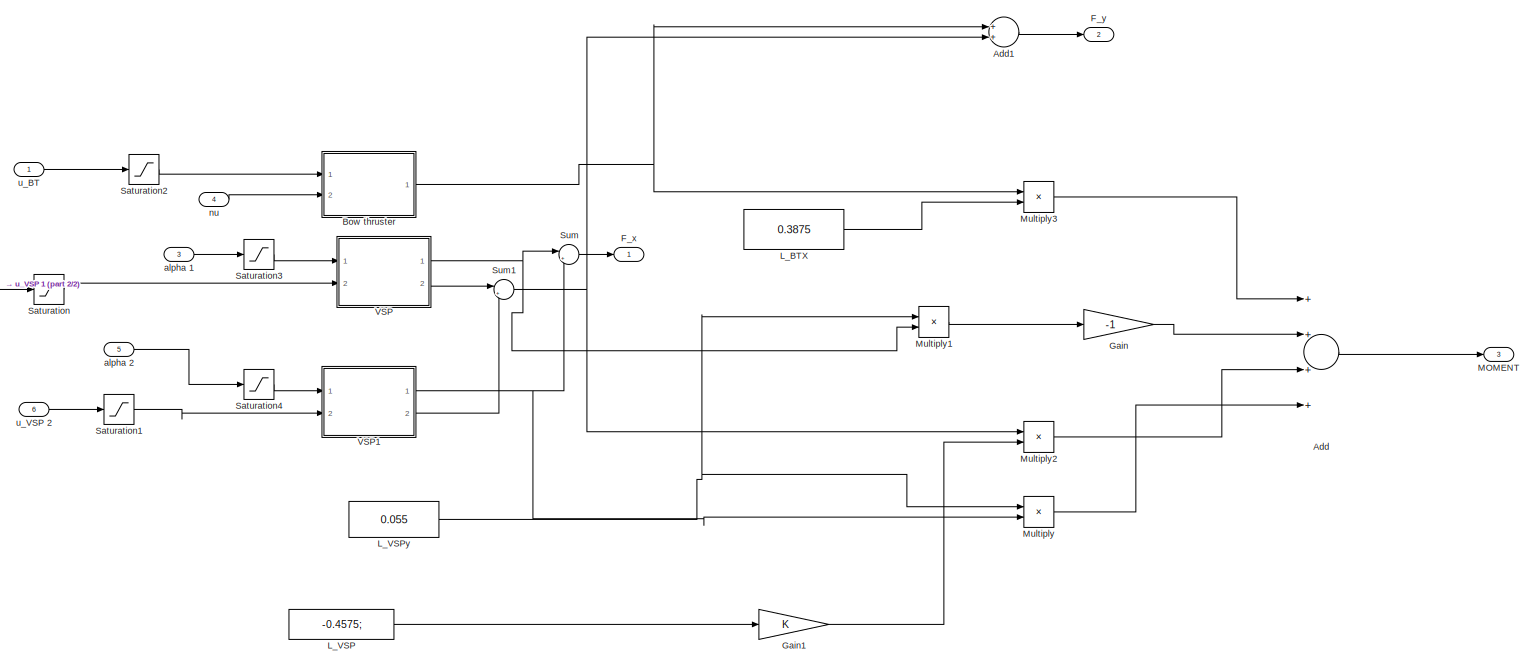
[diagram: Simulator CSE1/B Command to force mapping - part 1/2, most of the canvas]
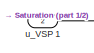
[diagram: Simulator CSE1/B Command to force mapping - part 2/2, middle left region]
BLOCK [SubSystem] Simulator CSE1/B Command to force mapping
  Ports = [6, 3]
  RequestExecContextInheritance = off
BLOCK [Sum] Simulator CSE1/B Command to force mapping/Add
  InputSameDT = off
  Inputs = ++++
  OutDataTypeStr = Inherit: Inherit via internal rule
  Ports = [4, 1]
  SaturateOnIntegerOverflow = off
BLOCK [Sum] Simulator CSE1/B Command to force mapping/Add1
  InputSameDT = off
  OutDataTypeStr = Inherit: Inherit via internal rule
  Ports = [2, 1]
  SaturateOnIntegerOverflow = off
BLOCK [SubSystem] Simulator CSE1/B Command to force mapping/Bow thruster
  ErrorFcn = Stateflow.Translate.translate
  PermitHierarchicalResolution = ExplicitOnly
  Ports = [2, 1]
  RequestExecContextInheritance = off
  SFBlockType = MATLAB Function
  TreatAsAtomicUnit = on
BLOCK [Demux] Simulator CSE1/B Command to force mapping/Bow thruster/ Demux 
  Outputs = 1
  Ports = [1, 1]
BLOCK [S-Function] Simulator CSE1/B Command to force mapping/Bow thruster/ SFunction 
  EnableBusSupport = on
  FunctionName = sf_sfun
  PortCounts = [2 2]
  Ports = [2, 2]
  SFcnIsStateOwnerBlock = off
  SFunctionDeploymentMode = off
  Tag = Stateflow S-Function CSE1_HIL_full16_18a 12
BLOCK [Terminator] Simulator CSE1/B Command to force mapping/Bow thruster/ Terminator 
BLOCK [Outport] Simulator CSE1/B Command to force mapping/Bow thruster/F_y
  IconDisplay = Port number
BLOCK [Inport] Simulator CSE1/B Command to force mapping/Bow thruster/nu
  IconDisplay = Port number
  Port = 2
BLOCK [Inport] Simulator CSE1/B Command to force mapping/Bow thruster/u_BT
  IconDisplay = Port number
BLOCK [Outport] Simulator CSE1/B Command to force mapping/F_x
  IconDisplay = Port number
BLOCK [Outport] Simulator CSE1/B Command to force mapping/F_y 
  IconDisplay = Port number
  Port = 2
BLOCK [Gain] Simulator CSE1/B Command to force mapping/Gain
  Gain = -1
  OutDataTypeStr = Inherit: Inherit via internal rule
  ParamDataTypeStr = Inherit: Inherit via internal rule
  SaturateOnIntegerOverflow = off
BLOCK [Gain] Simulator CSE1/B Command to force mapping/Gain1
  OutDataTypeStr = Inherit: Inherit via internal rule
  ParamDataTypeStr = Inherit: Inherit via internal rule
  SaturateOnIntegerOverflow = off
BLOCK [Constant] Simulator CSE1/B Command to force mapping/L_BTX
  Value = 0.3875
BLOCK [Constant] Simulator CSE1/B Command to force mapping/L_VSP
  Value = -0.4575;
BLOCK [Constant] Simulator CSE1/B Command to force mapping/L_VSPy
  Value = 0.055
BLOCK [Outport] Simulator CSE1/B Command to force mapping/MOMENT 
  IconDisplay = Port number
  Port = 3
BLOCK [Product] Simulator CSE1/B Command to force mapping/Multiply
  InputSameDT = off
  OutDataTypeStr = Inherit: Inherit via internal rule
  Ports = [2, 1]
  RndMeth = Floor
  SaturateOnIntegerOverflow = off
BLOCK [Product] Simulator CSE1/B Command to force mapping/Multiply1
  InputSameDT = off
  OutDataTypeStr = Inherit: Inherit via internal rule
  Ports = [2, 1]
  RndMeth = Floor
  SaturateOnIntegerOverflow = off
BLOCK [Product] Simulator CSE1/B Command to force mapping/Multiply2
  InputSameDT = off
  OutDataTypeStr = Inherit: Inherit via internal rule
  Ports = [2, 1]
  RndMeth = Floor
  SaturateOnIntegerOverflow = off
BLOCK [Product] Simulator CSE1/B Command to force mapping/Multiply3
  InputSameDT = off
  OutDataTypeStr = Inherit: Inherit via internal rule
  Ports = [2, 1]
  RndMeth = Floor
  SaturateOnIntegerOverflow = off
BLOCK [Saturate] Simulator CSE1/B Command to force mapping/Saturation
  InputPortMap = u0
  LowerLimit = 0
  Ports = [1, 1]
  UpperLimit = 1
BLOCK [Saturate] Simulator CSE1/B Command to force mapping/Saturation1
  InputPortMap = u0
  LowerLimit = 0
  Ports = [1, 1]
  UpperLimit = 1
BLOCK [Saturate] Simulator CSE1/B Command to force mapping/Saturation2
  InputPortMap = u0
  LowerLimit = -1
  Ports = [1, 1]
  UpperLimit = 1
BLOCK [Saturate] Simulator CSE1/B Command to force mapping/Saturation3
  InputPortMap = u0
  LowerLimit = -pi
  Ports = [1, 1]
  UpperLimit = pi
BLOCK [Saturate] Simulator CSE1/B Command to force mapping/Saturation4
  InputPortMap = u0
  LowerLimit = -pi
  Ports = [1, 1]
  UpperLimit = pi
BLOCK [Sum] Simulator CSE1/B Command to force mapping/Sum
  IconShape = round
  InputSameDT = off
  Inputs = |++
  OutDataTypeStr = Inherit: Inherit via internal rule
  Ports = [2, 1]
  SaturateOnIntegerOverflow = off
BLOCK [Sum] Simulator CSE1/B Command to force mapping/Sum1
  IconShape = round
  InputSameDT = off
  Inputs = |++
  OutDataTypeStr = Inherit: Inherit via internal rule
  Ports = [2, 1]
  SaturateOnIntegerOverflow = off
BLOCK [SubSystem] Simulator CSE1/B Command to force mapping/VSP
  ErrorFcn = Stateflow.Translate.translate
  PermitHierarchicalResolution = ExplicitOnly
  Ports = [2, 2]
  RequestExecContextInheritance = off
  SFBlockType = MATLAB Function
  TreatAsAtomicUnit = on
BLOCK [Demux] Simulator CSE1/B Command to force mapping/VSP/ Demux 
  Outputs = 1
  Ports = [1, 1]
BLOCK [S-Function] Simulator CSE1/B Command to force mapping/VSP/ SFunction 
  EnableBusSupport = on
  FunctionName = sf_sfun
  PortCounts = [2 3]
  Ports = [2, 3]
  SFcnIsStateOwnerBlock = off
  SFunctionDeploymentMode = off
  Tag = Stateflow S-Function CSE1_HIL_full16_18a 13
BLOCK [Terminator] Simulator CSE1/B Command to force mapping/VSP/ Terminator 
BLOCK [Outport] Simulator CSE1/B Command to force mapping/VSP/F_x
  IconDisplay = Port number
BLOCK [Outport] Simulator CSE1/B Command to force mapping/VSP/F_y
  IconDisplay = Port number
  Port = 2
BLOCK [Inport] Simulator CSE1/B Command to force mapping/VSP/alpha
  IconDisplay = Port number
BLOCK [Inport] Simulator CSE1/B Command to force mapping/VSP/u_VSP
  IconDisplay = Port number
  Port = 2
BLOCK [SubSystem] Simulator CSE1/B Command to force mapping/VSP1
  ErrorFcn = Stateflow.Translate.translate
  PermitHierarchicalResolution = ExplicitOnly
  Ports = [2, 2]
  RequestExecContextInheritance = off
  SFBlockType = MATLAB Function
  TreatAsAtomicUnit = on
BLOCK [Demux] Simulator CSE1/B Command to force mapping/VSP1/ Demux 
  Outputs = 1
  Ports = [1, 1]
BLOCK [S-Function] Simulator CSE1/B Command to force mapping/VSP1/ SFunction 
  EnableBusSupport = on
  FunctionName = sf_sfun
  PortCounts = [2 3]
  Ports = [2, 3]
  SFcnIsStateOwnerBlock = off
  SFunctionDeploymentMode = off
  Tag = Stateflow S-Function CSE1_HIL_full16_18a 14
BLOCK [Terminator] Simulator CSE1/B Command to force mapping/VSP1/ Terminator 
BLOCK [Outport] Simulator CSE1/B Command to force mapping/VSP1/F_x
  IconDisplay = Port number
BLOCK [Outport] Simulator CSE1/B Command to force mapping/VSP1/F_y
  IconDisplay = Port number
  Port = 2
BLOCK [Inport] Simulator CSE1/B Command to force mapping/VSP1/alpha
  IconDisplay = Port number
BLOCK [Inport] Simulator CSE1/B Command to force mapping/VSP1/u_VSP
  IconDisplay = Port number
  Port = 2
BLOCK [Inport] Simulator CSE1/B Command to force mapping/alpha 1
  IconDisplay = Port number
  Port = 3
BLOCK [Inport] Simulator CSE1/B Command to force mapping/alpha 2
  IconDisplay = Port number
  Port = 5
BLOCK [Inport] Simulator CSE1/B Command to force mapping/nu
  IconDisplay = Port number
  Port = 4
BLOCK [Inport] Simulator CSE1/B Command to force mapping/u_BT
  IconDisplay = Port number
BLOCK [Inport] Simulator CSE1/B Command to force mapping/u_VSP 1
  IconDisplay = Port number
  Port = 2
BLOCK [Inport] Simulator CSE1/B Command to force mapping/u_VSP 2
  IconDisplay = Port number
  Port = 6
BLOCK [Display] Simulator CSE1/Display
  Decimation = 1
  Ports = [1]
BLOCK [Display] Simulator CSE1/Display1
  Decimation = 1
  Ports = [1]
BLOCK [SubSystem] Simulator CSE1/EquationsOfMotion (Fossen Model)
  Ports = [4, 3]
  RequestExecContextInheritance = off
BLOCK [Outport] Simulator CSE1/EquationsOfMotion (Fossen Model)/EtaOut
  IconDisplay = Port number
BLOCK [Inport] Simulator CSE1/EquationsOfMotion (Fossen Model)/External Reset
  IconDisplay = Port number
  Port = 2
BLOCK [Integrator] Simulator CSE1/EquationsOfMotion (Fossen Model)/Position
  ExternalReset = either
  InitialCondition = [0 0 0]'
  InitialConditionSource = external
  Ports = [3, 1]
BLOCK [Integrator] Simulator CSE1/EquationsOfMotion (Fossen Model)/Velocity
  ExternalReset = either
  InitialCondition = [0 0 0]'
  Ports = [2, 1]
BLOCK [Inport] Simulator CSE1/EquationsOfMotion (Fossen Model)/[eta0] 
  IconDisplay = Port number
BLOCK [SubSystem] Simulator CSE1/EquationsOfMotion (Fossen Model)/kinematics
  ErrorFcn = Stateflow.Translate.translate
  PermitHierarchicalResolution = ExplicitOnly
  Ports = [2, 1]
  RequestExecContextInheritance = off
  SFBlockType = MATLAB Function
  TreatAsAtomicUnit = on
BLOCK [Demux] Simulator CSE1/EquationsOfMotion (Fossen Model)/kinematics/ Demux 
  Outputs = 1
  Ports = [1, 1]
BLOCK [S-Function] Simulator CSE1/EquationsOfMotion (Fossen Model)/kinematics/ SFunction 
  EnableBusSupport = on
  FunctionName = sf_sfun
  PortCounts = [2 2]
  Ports = [2, 2]
  SFcnIsStateOwnerBlock = off
  SFunctionDeploymentMode = off
  Tag = Stateflow S-Function CSE1_HIL_full16_18a 1
BLOCK [Terminator] Simulator CSE1/EquationsOfMotion (Fossen Model)/kinematics/ Terminator 
BLOCK [Inport] Simulator CSE1/EquationsOfMotion (Fossen Model)/kinematics/eta
  IconDisplay = Port number
  Port = 2
BLOCK [Outport] Simulator CSE1/EquationsOfMotion (Fossen Model)/kinematics/eta_dot
  IconDisplay = Port number
BLOCK [Inport] Simulator CSE1/EquationsOfMotion (Fossen Model)/kinematics/nu
  IconDisplay = Port number
BLOCK [SubSystem] Simulator CSE1/EquationsOfMotion (Fossen Model)/kinetics
  ErrorFcn = Stateflow.Translate.translate
  PermitHierarchicalResolution = ExplicitOnly
  Ports = [2, 1]
  RequestExecContextInheritance = off
  SFBlockType = MATLAB Function
  TreatAsAtomicUnit = on
BLOCK [Demux] Simulator CSE1/EquationsOfMotion (Fossen Model)/kinetics/ Demux 
  Outputs = 1
  Ports = [1, 1]
BLOCK [S-Function] Simulator CSE1/EquationsOfMotion (Fossen Model)/kinetics/ SFunction 
  EnableBusSupport = on
  FunctionName = sf_sfun
  PortCounts = [2 2]
  Ports = [2, 2]
  SFcnIsStateOwnerBlock = off
  SFunctionDeploymentMode = off
  Tag = Stateflow S-Function CSE1_HIL_full16_18a 2
BLOCK [Terminator] Simulator CSE1/EquationsOfMotion (Fossen Model)/kinetics/ Terminator 
BLOCK [Inport] Simulator CSE1/EquationsOfMotion (Fossen Model)/kinetics/nu
  IconDisplay = Port number
  Port = 2
BLOCK [Outport] Simulator CSE1/EquationsOfMotion (Fossen Model)/kinetics/nu_dot
  IconDisplay = Port number
BLOCK [Inport] Simulator CSE1/EquationsOfMotion (Fossen Model)/kinetics/tau
  IconDisplay = Port number
BLOCK [Inport] Simulator CSE1/EquationsOfMotion (Fossen Model)/nuInn
  IconDisplay = Port number
  Port = 4
BLOCK [Outport] Simulator CSE1/EquationsOfMotion (Fossen Model)/nuOut
  IconDisplay = Port number
  Port = 2
BLOCK [Outport] Simulator CSE1/EquationsOfMotion (Fossen Model)/nudot
  IconDisplay = Port number
  Port = 3
BLOCK [Inport] Simulator CSE1/EquationsOfMotion (Fossen Model)/tau
  IconDisplay = Port number
  Port = 3
BLOCK [Inport] Simulator CSE1/Eta0
  IconDisplay = Port number
  Port = 7
BLOCK [Inport] Simulator CSE1/External Reset1
  IconDisplay = Port number
  Port = 6
BLOCK [Outport] Simulator CSE1/ForceApplied
  IconDisplay = Port number
  Port = 5
BLOCK [Mux] Simulator CSE1/Mux2
  DisplayOption = bar
  Inputs = 3
  Ports = [3, 1]
BLOCK [Inport] Simulator CSE1/alpha 1
  IconDisplay = Port number
  Port = 4
BLOCK [Inport] Simulator CSE1/alpha 2
  IconDisplay = Port number
  Port = 5
BLOCK [Outport] Simulator CSE1/eta
  IconDisplay = Port number
  Port = 2
BLOCK [Outport] Simulator CSE1/nu
  IconDisplay = Port number
  Port = 3
BLOCK [Outport] Simulator CSE1/nu_dot
  IconDisplay = Port number
  Port = 4
BLOCK [Outport] Simulator CSE1/tau
  IconDisplay = Port number
BLOCK [Inport] Simulator CSE1/tay_d
  IconDisplay = Port number
  Port = 8
BLOCK [Inport] Simulator CSE1/u_BT
  IconDisplay = Port number
BLOCK [Inport] Simulator CSE1/u_VSP 1
  IconDisplay = Port number
  Port = 2
BLOCK [Inport] Simulator CSE1/u_VSP 2
  IconDisplay = Port number
  Port = 3
BLOCK [Terminator] Terminator
ANNOTATION Controller/CtrlCustom_SLX/Controller & Observor/Observer/Obs without bias: nu
ANNOTATION External Reset: Most relevant for Real-Time Simulations...
LINE Acc_inn:1 -> Controller:3
LINE Controller/Acc_in:1 -> Controller/DP_Ctrl:2
LINE Controller/CtrlCustom_SLX/Controller & Observor/Controller/Constant10:1 -> Controller/CtrlCustom_SLX/Controller & Observor/Controller/MATLAB Function:3
LINE Controller/CtrlCustom_SLX/Controller & Observor/Controller/Constant11:1 -> Controller/CtrlCustom_SLX/Controller & Observor/Controller/MATLAB Function:5
LINE Controller/CtrlCustom_SLX/Controller & Observor/Controller/Constant7:1 -> Controller/CtrlCustom_SLX/Controller & Observor/Controller/Controller_parameters:5
LINE Controller/CtrlCustom_SLX/Controller & Observor/Controller/Constant8:1 -> Controller/CtrlCustom_SLX/Controller & Observor/Controller/MATLAB Function:10
LINE Controller/CtrlCustom_SLX/Controller & Observor/Controller/Constant9:1 -> Controller/CtrlCustom_SLX/Controller & Observor/Controller/MATLAB Function:2
NET Controller/CtrlCustom_SLX/Controller & Observor/Controller/Controller_parameters/K1:1 -> Controller/CtrlCustom_SLX/Controller & Observor/Controller/Controller_parameters/calculating alpha1:2, Controller/CtrlCustom_SLX/Controller & Observor/Controller/Controller_parameters/calculating alpha1_dot:5
NET Controller/CtrlCustom_SLX/Controller & Observor/Controller/Controller_parameters/calculating alpha1:1 -> Controller/CtrlCustom_SLX/Controller & Observor/Controller/Controller_parameters/alpha1:1, Controller/CtrlCustom_SLX/Controller & Observor/Controller/Controller_parameters/calculating z2:1
LINE Controller/CtrlCustom_SLX/Controller & Observor/Controller/Controller_parameters/calculating alpha1_dot:1 -> Controller/CtrlCustom_SLX/Controller & Observor/Controller/Controller_parameters/alpha1_dot:1
NET Controller/CtrlCustom_SLX/Controller & Observor/Controller/Controller_parameters/calculating z1 in BODY-frame:1 -> Controller/CtrlCustom_SLX/Controller & Observor/Controller/Controller_parameters/calculating alpha1:1, Controller/CtrlCustom_SLX/Controller & Observor/Controller/Controller_parameters/calculating alpha1_dot:6, Controller/CtrlCustom_SLX/Controller & Observor/Controller/Controller_parameters/z1:1
NET Controller/CtrlCustom_SLX/Controller & Observor/Controller/Controller_parameters/calculating z2:1 -> Controller/CtrlCustom_SLX/Controller & Observor/Controller/Controller_parameters/calculating alpha1_dot:1, Controller/CtrlCustom_SLX/Controller & Observor/Controller/Controller_parameters/z2:1
LINE Controller/CtrlCustom_SLX/Controller & Observor/Controller/Controller_parameters/eta_d:1 -> Controller/CtrlCustom_SLX/Controller & Observor/Controller/Controller_parameters/calculating z1 in BODY-frame:1
LINE Controller/CtrlCustom_SLX/Controller & Observor/Controller/Controller_parameters/eta_d_dot2:1 -> Controller/CtrlCustom_SLX/Controller & Observor/Controller/Controller_parameters/calculating alpha1_dot:7
NET Controller/CtrlCustom_SLX/Controller & Observor/Controller/Controller_parameters/eta_d_dot:1 -> Controller/CtrlCustom_SLX/Controller & Observor/Controller/Controller_parameters/calculating alpha1:3, Controller/CtrlCustom_SLX/Controller & Observor/Controller/Controller_parameters/calculating alpha1_dot:4
NET Controller/CtrlCustom_SLX/Controller & Observor/Controller/Controller_parameters/eta_hat:1 -> Controller/CtrlCustom_SLX/Controller & Observor/Controller/Controller_parameters/calculating alpha1:4, Controller/CtrlCustom_SLX/Controller & Observor/Controller/Controller_parameters/calculating alpha1_dot:2, Controller/CtrlCustom_SLX/Controller & Observor/Controller/Controller_parameters/calculating z1 in BODY-frame:2
NET Controller/CtrlCustom_SLX/Controller & Observor/Controller/Controller_parameters/nu_hat:1 -> Controller/CtrlCustom_SLX/Controller & Observor/Controller/Controller_parameters/calculating alpha1_dot:3, Controller/CtrlCustom_SLX/Controller & Observor/Controller/Controller_parameters/calculating z2:2
LINE Controller/CtrlCustom_SLX/Controller & Observor/Controller/Controller_parameters:1 -> Controller/CtrlCustom_SLX/Controller & Observor/Controller/MATLAB Function:6
LINE Controller/CtrlCustom_SLX/Controller & Observor/Controller/Controller_parameters:2 -> Controller/CtrlCustom_SLX/Controller & Observor/Controller/MATLAB Function:7
LINE Controller/CtrlCustom_SLX/Controller & Observor/Controller/Controller_parameters:3 -> Controller/CtrlCustom_SLX/Controller & Observor/Controller/MATLAB Function:8
LINE Controller/CtrlCustom_SLX/Controller & Observor/Controller/Controller_parameters:4 -> Controller/CtrlCustom_SLX/Controller & Observor/Controller/MATLAB Function:9
LINE Controller/CtrlCustom_SLX/Controller & Observor/Controller/MATLAB Function1:1 -> Controller/CtrlCustom_SLX/Controller & Observor/Controller/MATLAB Function:4
LINE Controller/CtrlCustom_SLX/Controller & Observor/Controller/MATLAB Function:1 -> Controller/CtrlCustom_SLX/Controller & Observor/Controller/tau_d:1
LINE Controller/CtrlCustom_SLX/Controller & Observor/Controller/eta_d:1 -> Controller/CtrlCustom_SLX/Controller & Observor/Controller/Controller_parameters:3
LINE Controller/CtrlCustom_SLX/Controller & Observor/Controller/eta_d_dot2:1 -> Controller/CtrlCustom_SLX/Controller & Observor/Controller/Controller_parameters:6
LINE Controller/CtrlCustom_SLX/Controller & Observor/Controller/eta_d_dot:1 -> Controller/CtrlCustom_SLX/Controller & Observor/Controller/Controller_parameters:4
NET Controller/CtrlCustom_SLX/Controller & Observor/Controller/eta_hat:1 -> Controller/CtrlCustom_SLX/Controller & Observor/Controller/Controller_parameters:1, Controller/CtrlCustom_SLX/Controller & Observor/Controller/MATLAB Function:1
NET Controller/CtrlCustom_SLX/Controller & Observor/Controller/nu_hat:1 -> Controller/CtrlCustom_SLX/Controller & Observor/Controller/Controller_parameters:2, Controller/CtrlCustom_SLX/Controller & Observor/Controller/MATLAB Function1:1
NET Controller/CtrlCustom_SLX/Controller & Observor/Controller:1 -> Controller/CtrlCustom_SLX/Controller & Observor/Observer:2, Controller/CtrlCustom_SLX/Controller & Observor/tau_d:1
LINE Controller/CtrlCustom_SLX/Controller & Observor/Observer/Demux:1 -> Controller/CtrlCustom_SLX/Controller & Observor/Observer/nu_hat:1
LINE Controller/CtrlCustom_SLX/Controller & Observor/Observer/Demux:2 -> Controller/CtrlCustom_SLX/Controller & Observor/Observer/eta_hat:1
LINE Controller/CtrlCustom_SLX/Controller & Observor/Observer/Manual Switch:1 -> Controller/CtrlCustom_SLX/Controller & Observor/Observer/Demux:1
LINE Controller/CtrlCustom_SLX/Controller & Observor/Observer/Mux1:1 -> Controller/CtrlCustom_SLX/Controller & Observor/Observer/Manual Switch:2
LINE Controller/CtrlCustom_SLX/Controller & Observor/Observer/Mux:1 -> Controller/CtrlCustom_SLX/Controller & Observor/Observer/Manual Switch:1
LINE Controller/CtrlCustom_SLX/Controller & Observor/Observer/Obs with bias/Constant1:1 -> Controller/CtrlCustom_SLX/Controller & Observor/Observer/Obs with bias/Manual Switch:2
LINE Controller/CtrlCustom_SLX/Controller & Observor/Observer/Obs with bias/Constant:1 -> Controller/CtrlCustom_SLX/Controller & Observor/Observer/Obs with bias/Transposed rotation matrix NED -> Body frame3:2
LINE Controller/CtrlCustom_SLX/Controller & Observor/Observer/Obs with bias/Gain1:1 -> Controller/CtrlCustom_SLX/Controller & Observor/Observer/Obs with bias/Integrator:1
LINE Controller/CtrlCustom_SLX/Controller & Observor/Observer/Obs with bias/Gain2:1 -> Controller/CtrlCustom_SLX/Controller & Observor/Observer/Obs with bias/Sum1:3
LINE Controller/CtrlCustom_SLX/Controller & Observor/Observer/Obs with bias/Gain4:1 -> Controller/CtrlCustom_SLX/Controller & Observor/Observer/Obs with bias/Integrator2:1
LINE Controller/CtrlCustom_SLX/Controller & Observor/Observer/Obs with bias/Gain7:1 -> Controller/CtrlCustom_SLX/Controller & Observor/Observer/Obs with bias/Sum6:1
LINE Controller/CtrlCustom_SLX/Controller & Observor/Observer/Obs with bias/Gain:1 -> Controller/CtrlCustom_SLX/Controller & Observor/Observer/Obs with bias/Transposed rotation matrix NED -> Body frame:2
LINE Controller/CtrlCustom_SLX/Controller & Observor/Observer/Obs with bias/Integrator2:1 -> Controller/CtrlCustom_SLX/Controller & Observor/Observer/Obs with bias/Transposed rotation matrix NED -> Body frame1:2
NET Controller/CtrlCustom_SLX/Controller & Observor/Observer/Obs with bias/Integrator3:1 -> Controller/CtrlCustom_SLX/Controller & Observor/Observer/Obs with bias/Sum5:2, Controller/CtrlCustom_SLX/Controller & Observor/Observer/Obs with bias/eta_hat:1
NET Controller/CtrlCustom_SLX/Controller & Observor/Observer/Obs with bias/Integrator:1 -> Controller/CtrlCustom_SLX/Controller & Observor/Observer/Obs with bias/Gain2:1, Controller/CtrlCustom_SLX/Controller & Observor/Observer/Obs with bias/Rotation matrix Body frame -> NED:2
LINE Controller/CtrlCustom_SLX/Controller & Observor/Observer/Obs with bias/Manual Switch:1 -> Controller/CtrlCustom_SLX/Controller & Observor/Observer/Obs with bias/Sum2:2
LINE Controller/CtrlCustom_SLX/Controller & Observor/Observer/Obs with bias/Rotation matrix Body frame -> NED:1 -> Controller/CtrlCustom_SLX/Controller & Observor/Observer/Obs with bias/Sum6:2
NET Controller/CtrlCustom_SLX/Controller & Observor/Observer/Obs with bias/Selector:1 -> Controller/CtrlCustom_SLX/Controller & Observor/Observer/Obs with bias/Rotation matrix Body frame -> NED:1, Controller/CtrlCustom_SLX/Controller & Observor/Observer/Obs with bias/Transposed rotation matrix NED -> Body frame1:1, Controller/CtrlCustom_SLX/Controller & Observor/Observer/Obs with bias/Transposed rotation matrix NED -> Body frame2:1, Controller/CtrlCustom_SLX/Controller & Observor/Observer/Obs with bias/Transposed rotation matrix NED -> Body frame3:1, Controller/CtrlCustom_SLX/Controller & Observor/Observer/Obs with bias/Transposed rotation matrix NED -> Body frame:1
LINE Controller/CtrlCustom_SLX/Controller & Observor/Observer/Obs with bias/Sum1:1 -> Controller/CtrlCustom_SLX/Controller & Observor/Observer/Obs with bias/Gain1:1
LINE Controller/CtrlCustom_SLX/Controller & Observor/Observer/Obs with bias/Sum2:1 -> Controller/CtrlCustom_SLX/Controller & Observor/Observer/Obs with bias/Sum:2
NET Controller/CtrlCustom_SLX/Controller & Observor/Observer/Obs with bias/Sum5:1 -> Controller/CtrlCustom_SLX/Controller & Observor/Observer/Obs with bias/Gain4:1, Controller/CtrlCustom_SLX/Controller & Observor/Observer/Obs with bias/Gain7:1, Controller/CtrlCustom_SLX/Controller & Observor/Observer/Obs with bias/Gain:1
NET Controller/CtrlCustom_SLX/Controller & Observor/Observer/Obs with bias/Sum6:1 -> Controller/CtrlCustom_SLX/Controller & Observor/Observer/Obs with bias/Integrator3:1, Controller/CtrlCustom_SLX/Controller & Observor/Observer/Obs with bias/Transposed rotation matrix NED -> Body frame2:2
LINE Controller/CtrlCustom_SLX/Controller & Observor/Observer/Obs with bias/Sum:1 -> Controller/CtrlCustom_SLX/Controller & Observor/Observer/Obs with bias/Sum1:2
LINE Controller/CtrlCustom_SLX/Controller & Observor/Observer/Obs with bias/Transposed rotation matrix NED -> Body frame1:1 -> Controller/CtrlCustom_SLX/Controller & Observor/Observer/Obs with bias/Sum1:1
LINE Controller/CtrlCustom_SLX/Controller & Observor/Observer/Obs with bias/Transposed rotation matrix NED -> Body frame2:1 -> Controller/CtrlCustom_SLX/Controller & Observor/Observer/Obs with bias/nu_hat:1
LINE Controller/CtrlCustom_SLX/Controller & Observor/Observer/Obs with bias/Transposed rotation matrix NED -> Body frame3:1 -> Controller/CtrlCustom_SLX/Controller & Observor/Observer/Obs with bias/Manual Switch:1
LINE Controller/CtrlCustom_SLX/Controller & Observor/Observer/Obs with bias/Transposed rotation matrix NED -> Body frame:1 -> Controller/CtrlCustom_SLX/Controller & Observor/Observer/Obs with bias/Sum:1
NET Controller/CtrlCustom_SLX/Controller & Observor/Observer/Obs with bias/eta:1 -> Controller/CtrlCustom_SLX/Controller & Observor/Observer/Obs with bias/Selector:1, Controller/CtrlCustom_SLX/Controller & Observor/Observer/Obs with bias/Sum5:1
LINE Controller/CtrlCustom_SLX/Controller & Observor/Observer/Obs with bias/tau_d:1 -> Controller/CtrlCustom_SLX/Controller & Observor/Observer/Obs with bias/Sum2:1
LINE Controller/CtrlCustom_SLX/Controller & Observor/Observer/Obs with bias:1 -> Controller/CtrlCustom_SLX/Controller & Observor/Observer/Mux:1
LINE Controller/CtrlCustom_SLX/Controller & Observor/Observer/Obs with bias:2 -> Controller/CtrlCustom_SLX/Controller & Observor/Observer/Mux:2
LINE Controller/CtrlCustom_SLX/Controller & Observor/Observer/Obs without bias/Constant1:1 -> Controller/CtrlCustom_SLX/Controller & Observor/Observer/Obs without bias/Manual Switch:2
LINE Controller/CtrlCustom_SLX/Controller & Observor/Observer/Obs without bias/Constant:1 -> Controller/CtrlCustom_SLX/Controller & Observor/Observer/Obs without bias/Transposed rotation matrix NED -> Body frame3:2
LINE Controller/CtrlCustom_SLX/Controller & Observor/Observer/Obs without bias/Gain1:1 -> Controller/CtrlCustom_SLX/Controller & Observor/Observer/Obs without bias/Integrator:1
LINE Controller/CtrlCustom_SLX/Controller & Observor/Observer/Obs without bias/Gain2:1 -> Controller/CtrlCustom_SLX/Controller & Observor/Observer/Obs without bias/Sum1:2
LINE Controller/CtrlCustom_SLX/Controller & Observor/Observer/Obs without bias/Gain7:1 -> Controller/CtrlCustom_SLX/Controller & Observor/Observer/Obs without bias/Sum6:1
LINE Controller/CtrlCustom_SLX/Controller & Observor/Observer/Obs without bias/Gain:1 -> Controller/CtrlCustom_SLX/Controller & Observor/Observer/Obs without bias/Transposed rotation matrix:2
NET Controller/CtrlCustom_SLX/Controller & Observor/Observer/Obs without bias/Integrator3:1 -> Controller/CtrlCustom_SLX/Controller & Observor/Observer/Obs without bias/Sum5:2, Controller/CtrlCustom_SLX/Controller & Observor/Observer/Obs without bias/eta_hat:1
NET Controller/CtrlCustom_SLX/Controller & Observor/Observer/Obs without bias/Integrator:1 -> Controller/CtrlCustom_SLX/Controller & Observor/Observer/Obs without bias/Gain2:1, Controller/CtrlCustom_SLX/Controller & Observor/Observer/Obs without bias/Rotation matrix:2
LINE Controller/CtrlCustom_SLX/Controller & Observor/Observer/Obs without bias/Manual Switch:1 -> Controller/CtrlCustom_SLX/Controller & Observor/Observer/Obs without bias/Sum2:2
LINE Controller/CtrlCustom_SLX/Controller & Observor/Observer/Obs without bias/Rotation matrix:1 -> Controller/CtrlCustom_SLX/Controller & Observor/Observer/Obs without bias/Sum6:2
NET Controller/CtrlCustom_SLX/Controller & Observor/Observer/Obs without bias/Selector:1 -> Controller/CtrlCustom_SLX/Controller & Observor/Observer/Obs without bias/Rotation matrix:1, Controller/CtrlCustom_SLX/Controller & Observor/Observer/Obs without bias/Transposed rotation matrix NED -> Body frame3:1, Controller/CtrlCustom_SLX/Controller & Observor/Observer/Obs without bias/Transposed rotation matrix1:1, Controller/CtrlCustom_SLX/Controller & Observor/Observer/Obs without bias/Transposed rotation matrix:1
LINE Controller/CtrlCustom_SLX/Controller & Observor/Observer/Obs without bias/Sum1:1 -> Controller/CtrlCustom_SLX/Controller & Observor/Observer/Obs without bias/Gain1:1
LINE Controller/CtrlCustom_SLX/Controller & Observor/Observer/Obs without bias/Sum2:1 -> Controller/CtrlCustom_SLX/Controller & Observor/Observer/Obs without bias/Sum:2
NET Controller/CtrlCustom_SLX/Controller & Observor/Observer/Obs without bias/Sum5:1 -> Controller/CtrlCustom_SLX/Controller & Observor/Observer/Obs without bias/Gain7:1, Controller/CtrlCustom_SLX/Controller & Observor/Observer/Obs without bias/Gain:1
NET Controller/CtrlCustom_SLX/Controller & Observor/Observer/Obs without bias/Sum6:1 -> Controller/CtrlCustom_SLX/Controller & Observor/Observer/Obs without bias/Integrator3:1, Controller/CtrlCustom_SLX/Controller & Observor/Observer/Obs without bias/Transposed rotation matrix1:2
LINE Controller/CtrlCustom_SLX/Controller & Observor/Observer/Obs without bias/Sum:1 -> Controller/CtrlCustom_SLX/Controller & Observor/Observer/Obs without bias/Sum1:1
LINE Controller/CtrlCustom_SLX/Controller & Observor/Observer/Obs without bias/Transposed rotation matrix NED -> Body frame3:1 -> Controller/CtrlCustom_SLX/Controller & Observor/Observer/Obs without bias/Manual Switch:1
LINE Controller/CtrlCustom_SLX/Controller & Observor/Observer/Obs without bias/Transposed rotation matrix1:1 -> Controller/CtrlCustom_SLX/Controller & Observor/Observer/Obs without bias/nu_hat:1
LINE Controller/CtrlCustom_SLX/Controller & Observor/Observer/Obs without bias/Transposed rotation matrix:1 -> Controller/CtrlCustom_SLX/Controller & Observor/Observer/Obs without bias/Sum:1
NET Controller/CtrlCustom_SLX/Controller & Observor/Observer/Obs without bias/eta:1 -> Controller/CtrlCustom_SLX/Controller & Observor/Observer/Obs without bias/Selector:1, Controller/CtrlCustom_SLX/Controller & Observor/Observer/Obs without bias/Sum5:1
LINE Controller/CtrlCustom_SLX/Controller & Observor/Observer/Obs without bias/tau_d:1 -> Controller/CtrlCustom_SLX/Controller & Observor/Observer/Obs without bias/Sum2:1
LINE Controller/CtrlCustom_SLX/Controller & Observor/Observer/Obs without bias:1 -> Controller/CtrlCustom_SLX/Controller & Observor/Observer/Mux1:1
LINE Controller/CtrlCustom_SLX/Controller & Observor/Observer/Obs without bias:2 -> Controller/CtrlCustom_SLX/Controller & Observor/Observer/Mux1:2
NET Controller/CtrlCustom_SLX/Controller & Observor/Observer/eta:1 -> Controller/CtrlCustom_SLX/Controller & Observor/Observer/Obs with bias:1, Controller/CtrlCustom_SLX/Controller & Observor/Observer/Obs without bias:1
NET Controller/CtrlCustom_SLX/Controller & Observor/Observer/tau_d:1 -> Controller/CtrlCustom_SLX/Controller & Observor/Observer/Obs with bias:2, Controller/CtrlCustom_SLX/Controller & Observor/Observer/Obs without bias:2
NET Controller/CtrlCustom_SLX/Controller & Observor/Observer:1 -> Controller/CtrlCustom_SLX/Controller & Observor/Controller:1, Controller/CtrlCustom_SLX/Controller & Observor/eta_hat:1
NET Controller/CtrlCustom_SLX/Controller & Observor/Observer:2 -> Controller/CtrlCustom_SLX/Controller & Observor/Controller:2, Controller/CtrlCustom_SLX/Controller & Observor/nu_hat:1
LINE Controller/CtrlCustom_SLX/Controller & Observor/Update law/Manual Switch1:1 -> Controller/CtrlCustom_SLX/Controller & Observor/Update law/eta_d:1
LINE Controller/CtrlCustom_SLX/Controller & Observor/Update law/Manual Switch2:1 -> Controller/CtrlCustom_SLX/Controller & Observor/Update law/eta_d_dot:1
LINE Controller/CtrlCustom_SLX/Controller & Observor/Update law/Manual Switch4:1 -> Controller/CtrlCustom_SLX/Controller & Observor/Update law/eta_d_dot2:1
LINE Controller/CtrlCustom_SLX/Controller & Observor/Update law/ellipsoid/ Modified gradient update law/Divide:1 -> Controller/CtrlCustom_SLX/Controller & Observor/Update law/ellipsoid/ Modified gradient update law/Sum1:1
LINE Controller/CtrlCustom_SLX/Controller & Observor/Update law/ellipsoid/ Modified gradient update law/Selector:1 -> Controller/CtrlCustom_SLX/Controller & Observor/Update law/ellipsoid/ Modified gradient update law/dV//ds  :1
LINE Controller/CtrlCustom_SLX/Controller & Observor/Update law/ellipsoid/ Modified gradient update law/Sum1:1 -> Controller/CtrlCustom_SLX/Controller & Observor/Update law/ellipsoid/ Modified gradient update law/s_dot:1
LINE Controller/CtrlCustom_SLX/Controller & Observor/Update law/ellipsoid/ Modified gradient update law/Us:1 -> Controller/CtrlCustom_SLX/Controller & Observor/Update law/ellipsoid/ Modified gradient update law/Sum1:2
LINE Controller/CtrlCustom_SLX/Controller & Observor/Update law/ellipsoid/ Modified gradient update law/dV//ds  :1 -> Controller/CtrlCustom_SLX/Controller & Observor/Update law/ellipsoid/ Modified gradient update law/mu:1
LINE Controller/CtrlCustom_SLX/Controller & Observor/Update law/ellipsoid/ Modified gradient update law/length:1 -> Controller/CtrlCustom_SLX/Controller & Observor/Update law/ellipsoid/ Modified gradient update law/Divide:2
LINE Controller/CtrlCustom_SLX/Controller & Observor/Update law/ellipsoid/ Modified gradient update law/mu:1 -> Controller/CtrlCustom_SLX/Controller & Observor/Update law/ellipsoid/ Modified gradient update law/Divide:1
LINE Controller/CtrlCustom_SLX/Controller & Observor/Update law/ellipsoid/ Modified gradient update law/p:1 -> Controller/CtrlCustom_SLX/Controller & Observor/Update law/ellipsoid/ Modified gradient update law/Selector:1
LINE Controller/CtrlCustom_SLX/Controller & Observor/Update law/ellipsoid/ Modified gradient update law/p_d:1 -> Controller/CtrlCustom_SLX/Controller & Observor/Update law/ellipsoid/ Modified gradient update law/dV//ds  :2
NET Controller/CtrlCustom_SLX/Controller & Observor/Update law/ellipsoid/ Modified gradient update law/pd_s:1 -> Controller/CtrlCustom_SLX/Controller & Observor/Update law/ellipsoid/ Modified gradient update law/dV//ds  :3, Controller/CtrlCustom_SLX/Controller & Observor/Update law/ellipsoid/ Modified gradient update law/length:1
NET Controller/CtrlCustom_SLX/Controller & Observor/Update law/ellipsoid/ Modified gradient update law:1 -> Controller/CtrlCustom_SLX/Controller & Observor/Update law/ellipsoid/Integrator:1, Controller/CtrlCustom_SLX/Controller & Observor/Update law/ellipsoid/MATLAB Function1:3, Controller/CtrlCustom_SLX/Controller & Observor/Update law/ellipsoid/MATLAB Function2:4
LINE Controller/CtrlCustom_SLX/Controller & Observor/Update law/ellipsoid/Integrator1:1 -> Controller/CtrlCustom_SLX/Controller & Observor/Update law/ellipsoid/to workspace:1
NET Controller/CtrlCustom_SLX/Controller & Observor/Update law/ellipsoid/Integrator:1 -> Controller/CtrlCustom_SLX/Controller & Observor/Update law/ellipsoid/ellipsoid:1, Controller/CtrlCustom_SLX/Controller & Observor/Update law/ellipsoid/to workspace2:1
LINE Controller/CtrlCustom_SLX/Controller & Observor/Update law/ellipsoid/MATLAB Function1:1 -> Controller/CtrlCustom_SLX/Controller & Observor/Update law/ellipsoid/eta_d_dot:1
LINE Controller/CtrlCustom_SLX/Controller & Observor/Update law/ellipsoid/MATLAB Function2:1 -> Controller/CtrlCustom_SLX/Controller & Observor/Update law/ellipsoid/eta_d_dot2:1
LINE Controller/CtrlCustom_SLX/Controller & Observor/Update law/ellipsoid/MATLAB Function:1 -> Controller/CtrlCustom_SLX/Controller & Observor/Update law/ellipsoid/eta_d:1
LINE Controller/CtrlCustom_SLX/Controller & Observor/Update law/ellipsoid/ellipsoid/_1:1 -> Controller/CtrlCustom_SLX/Controller & Observor/Update law/ellipsoid/ellipsoid/desired postion path1:1
LINE Controller/CtrlCustom_SLX/Controller & Observor/Update law/ellipsoid/ellipsoid/_2:1 -> Controller/CtrlCustom_SLX/Controller & Observor/Update law/ellipsoid/ellipsoid/desired postion path1:2
LINE Controller/CtrlCustom_SLX/Controller & Observor/Update law/ellipsoid/ellipsoid/_:1 -> Controller/CtrlCustom_SLX/Controller & Observor/Update law/ellipsoid/ellipsoid/length:2
LINE Controller/CtrlCustom_SLX/Controller & Observor/Update law/ellipsoid/ellipsoid/desired postion path1:1 -> Controller/CtrlCustom_SLX/Controller & Observor/Update law/ellipsoid/ellipsoid/pd:1
NET Controller/CtrlCustom_SLX/Controller & Observor/Update law/ellipsoid/ellipsoid/desired postion path1:2 -> Controller/CtrlCustom_SLX/Controller & Observor/Update law/ellipsoid/ellipsoid/length:1, Controller/CtrlCustom_SLX/Controller & Observor/Update law/ellipsoid/ellipsoid/pd_s:1
LINE Controller/CtrlCustom_SLX/Controller & Observor/Update law/ellipsoid/ellipsoid/desired postion path1:3 -> Controller/CtrlCustom_SLX/Controller & Observor/Update law/ellipsoid/ellipsoid/pd_ss:1
LINE Controller/CtrlCustom_SLX/Controller & Observor/Update law/ellipsoid/ellipsoid/desired postion path1:4 -> Controller/CtrlCustom_SLX/Controller & Observor/Update law/ellipsoid/ellipsoid/pd_sss:1
LINE Controller/CtrlCustom_SLX/Controller & Observor/Update law/ellipsoid/ellipsoid/length:1 -> Controller/CtrlCustom_SLX/Controller & Observor/Update law/ellipsoid/ellipsoid/Us:1
LINE Controller/CtrlCustom_SLX/Controller & Observor/Update law/ellipsoid/ellipsoid/s:1 -> Controller/CtrlCustom_SLX/Controller & Observor/Update law/ellipsoid/ellipsoid/desired postion path1:3
NET Controller/CtrlCustom_SLX/Controller & Observor/Update law/ellipsoid/ellipsoid:1 -> Controller/CtrlCustom_SLX/Controller & Observor/Update law/ellipsoid/ Modified gradient update law:2, Controller/CtrlCustom_SLX/Controller & Observor/Update law/ellipsoid/Us:1, Controller/CtrlCustom_SLX/Controller & Observor/Update law/ellipsoid/position controller:4
NET Controller/CtrlCustom_SLX/Controller & Observor/Update law/ellipsoid/ellipsoid:2 -> Controller/CtrlCustom_SLX/Controller & Observor/Update law/ellipsoid/ Modified gradient update law:3, Controller/CtrlCustom_SLX/Controller & Observor/Update law/ellipsoid/MATLAB Function:1, Controller/CtrlCustom_SLX/Controller & Observor/Update law/ellipsoid/position controller:2
NET Controller/CtrlCustom_SLX/Controller & Observor/Update law/ellipsoid/ellipsoid:3 -> Controller/CtrlCustom_SLX/Controller & Observor/Update law/ellipsoid/ Modified gradient update law:4, Controller/CtrlCustom_SLX/Controller & Observor/Update law/ellipsoid/MATLAB Function1:1, Controller/CtrlCustom_SLX/Controller & Observor/Update law/ellipsoid/MATLAB Function2:1, Controller/CtrlCustom_SLX/Controller & Observor/Update law/ellipsoid/MATLAB Function:2, Controller/CtrlCustom_SLX/Controller & Observor/Update law/ellipsoid/position controller:3
NET Controller/CtrlCustom_SLX/Controller & Observor/Update law/ellipsoid/ellipsoid:4 -> Controller/CtrlCustom_SLX/Controller & Observor/Update law/ellipsoid/MATLAB Function1:2, Controller/CtrlCustom_SLX/Controller & Observor/Update law/ellipsoid/MATLAB Function2:2
LINE Controller/CtrlCustom_SLX/Controller & Observor/Update law/ellipsoid/ellipsoid:5 -> Controller/CtrlCustom_SLX/Controller & Observor/Update law/ellipsoid/MATLAB Function2:3
NET Controller/CtrlCustom_SLX/Controller & Observor/Update law/ellipsoid/eta:1 -> Controller/CtrlCustom_SLX/Controller & Observor/Update law/ellipsoid/ Modified gradient update law:1, Controller/CtrlCustom_SLX/Controller & Observor/Update law/ellipsoid/position controller:1
LINE Controller/CtrlCustom_SLX/Controller & Observor/Update law/ellipsoid/position controller/K:1 -> Controller/CtrlCustom_SLX/Controller & Observor/Update law/ellipsoid/position controller/Sum1:1
LINE Controller/CtrlCustom_SLX/Controller & Observor/Update law/ellipsoid/position controller/Product:1 -> Controller/CtrlCustom_SLX/Controller & Observor/Update law/ellipsoid/position controller/Sum1:2
LINE Controller/CtrlCustom_SLX/Controller & Observor/Update law/ellipsoid/position controller/Selector:1 -> Controller/CtrlCustom_SLX/Controller & Observor/Update law/ellipsoid/position controller/Sum:1
LINE Controller/CtrlCustom_SLX/Controller & Observor/Update law/ellipsoid/position controller/Sum1:1 -> Controller/CtrlCustom_SLX/Controller & Observor/Update law/ellipsoid/position controller/u:1
LINE Controller/CtrlCustom_SLX/Controller & Observor/Update law/ellipsoid/position controller/Sum:1 -> Controller/CtrlCustom_SLX/Controller & Observor/Update law/ellipsoid/position controller/K:1
LINE Controller/CtrlCustom_SLX/Controller & Observor/Update law/ellipsoid/position controller/Us:1 -> Controller/CtrlCustom_SLX/Controller & Observor/Update law/ellipsoid/position controller/Product:2
LINE Controller/CtrlCustom_SLX/Controller & Observor/Update law/ellipsoid/position controller/p:1 -> Controller/CtrlCustom_SLX/Controller & Observor/Update law/ellipsoid/position controller/Selector:1
LINE Controller/CtrlCustom_SLX/Controller & Observor/Update law/ellipsoid/position controller/pd:1 -> Controller/CtrlCustom_SLX/Controller & Observor/Update law/ellipsoid/position controller/Sum:2
LINE Controller/CtrlCustom_SLX/Controller & Observor/Update law/ellipsoid/position controller/pd_s:1 -> Controller/CtrlCustom_SLX/Controller & Observor/Update law/ellipsoid/position controller/Product:1
LINE Controller/CtrlCustom_SLX/Controller & Observor/Update law/ellipsoid/position controller:1 -> Controller/CtrlCustom_SLX/Controller & Observor/Update law/ellipsoid/Integrator1:1
LINE Controller/CtrlCustom_SLX/Controller & Observor/Update law/ellipsoid:1 -> Controller/CtrlCustom_SLX/Controller & Observor/Update law/Manual Switch1:2
LINE Controller/CtrlCustom_SLX/Controller & Observor/Update law/ellipsoid:2 -> Controller/CtrlCustom_SLX/Controller & Observor/Update law/Manual Switch2:2
LINE Controller/CtrlCustom_SLX/Controller & Observor/Update law/ellipsoid:3 -> Controller/CtrlCustom_SLX/Controller & Observor/Update law/Us_ellipsoid:1
LINE Controller/CtrlCustom_SLX/Controller & Observor/Update law/ellipsoid:4 -> Controller/CtrlCustom_SLX/Controller & Observor/Update law/Manual Switch4:2
NET Controller/CtrlCustom_SLX/Controller & Observor/Update law/eta:1 -> Controller/CtrlCustom_SLX/Controller & Observor/Update law/ellipsoid:1, Controller/CtrlCustom_SLX/Controller & Observor/Update law/straight line:1
LINE Controller/CtrlCustom_SLX/Controller & Observor/Update law/straight line/Constant:1 -> Controller/CtrlCustom_SLX/Controller & Observor/Update law/straight line/eta_d_dot2:1
NET Controller/CtrlCustom_SLX/Controller & Observor/Update law/straight line/Integrator:1 -> Controller/CtrlCustom_SLX/Controller & Observor/Update law/straight line/straight line:1, Controller/CtrlCustom_SLX/Controller & Observor/Update law/straight line/to workspace2:1
LINE Controller/CtrlCustom_SLX/Controller & Observor/Update law/straight line/MATLAB Function1:1 -> Controller/CtrlCustom_SLX/Controller & Observor/Update law/straight line/eta_d_dot:1
LINE Controller/CtrlCustom_SLX/Controller & Observor/Update law/straight line/MATLAB Function:1 -> Controller/CtrlCustom_SLX/Controller & Observor/Update law/straight line/eta_d:1
LINE Controller/CtrlCustom_SLX/Controller & Observor/Update law/straight line/Unit-tangent gradient update law/Divide:1 -> Controller/CtrlCustom_SLX/Controller & Observor/Update law/straight line/Unit-tangent gradient update law/Sum1:1
LINE Controller/CtrlCustom_SLX/Controller & Observor/Update law/straight line/Unit-tangent gradient update law/Selector:1 -> Controller/CtrlCustom_SLX/Controller & Observor/Update law/straight line/Unit-tangent gradient update law/dV//ds  :1
LINE Controller/CtrlCustom_SLX/Controller & Observor/Update law/straight line/Unit-tangent gradient update law/Sum1:1 -> Controller/CtrlCustom_SLX/Controller & Observor/Update law/straight line/Unit-tangent gradient update law/s_dot:1
LINE Controller/CtrlCustom_SLX/Controller & Observor/Update law/straight line/Unit-tangent gradient update law/Us:1 -> Controller/CtrlCustom_SLX/Controller & Observor/Update law/straight line/Unit-tangent gradient update law/Sum1:2
LINE Controller/CtrlCustom_SLX/Controller & Observor/Update law/straight line/Unit-tangent gradient update law/dV//ds  :1 -> Controller/CtrlCustom_SLX/Controller & Observor/Update law/straight line/Unit-tangent gradient update law/mu:1
LINE Controller/CtrlCustom_SLX/Controller & Observor/Update law/straight line/Unit-tangent gradient update law/length:1 -> Controller/CtrlCustom_SLX/Controller & Observor/Update law/straight line/Unit-tangent gradient update law/Divide:2
LINE Controller/CtrlCustom_SLX/Controller & Observor/Update law/straight line/Unit-tangent gradient update law/mu:1 -> Controller/CtrlCustom_SLX/Controller & Observor/Update law/straight line/Unit-tangent gradient update law/Divide:1
LINE Controller/CtrlCustom_SLX/Controller & Observor/Update law/straight line/Unit-tangent gradient update law/p:1 -> Controller/CtrlCustom_SLX/Controller & Observor/Update law/straight line/Unit-tangent gradient update law/Selector:1
LINE Controller/CtrlCustom_SLX/Controller & Observor/Update law/straight line/Unit-tangent gradient update law/pd:1 -> Controller/CtrlCustom_SLX/Controller & Observor/Update law/straight line/Unit-tangent gradient update law/dV//ds  :2
NET Controller/CtrlCustom_SLX/Controller & Observor/Update law/straight line/Unit-tangent gradient update law/pd_s:1 -> Controller/CtrlCustom_SLX/Controller & Observor/Update law/straight line/Unit-tangent gradient update law/dV//ds  :3, Controller/CtrlCustom_SLX/Controller & Observor/Update law/straight line/Unit-tangent gradient update law/length:1
NET Controller/CtrlCustom_SLX/Controller & Observor/Update law/straight line/Unit-tangent gradient update law:1 -> Controller/CtrlCustom_SLX/Controller & Observor/Update law/straight line/Integrator:1, Controller/CtrlCustom_SLX/Controller & Observor/Update law/straight line/MATLAB Function1:2
NET Controller/CtrlCustom_SLX/Controller & Observor/Update law/straight line/eta:1 -> Controller/CtrlCustom_SLX/Controller & Observor/Update law/straight line/Unit-tangent gradient update law:1, Controller/CtrlCustom_SLX/Controller & Observor/Update law/straight line/straight line:2
LINE Controller/CtrlCustom_SLX/Controller & Observor/Update law/straight line/straight line/_1:1 -> Controller/CtrlCustom_SLX/Controller & Observor/Update law/straight line/straight line/desired postion path:1
LINE Controller/CtrlCustom_SLX/Controller & Observor/Update law/straight line/straight line/_2:1 -> Controller/CtrlCustom_SLX/Controller & Observor/Update law/straight line/straight line/desired postion path:2
LINE Controller/CtrlCustom_SLX/Controller & Observor/Update law/straight line/straight line/_:1 -> Controller/CtrlCustom_SLX/Controller & Observor/Update law/straight line/straight line/length1:2
LINE Controller/CtrlCustom_SLX/Controller & Observor/Update law/straight line/straight line/desired postion path:1 -> Controller/CtrlCustom_SLX/Controller & Observor/Update law/straight line/straight line/pd:1
NET Controller/CtrlCustom_SLX/Controller & Observor/Update law/straight line/straight line/desired postion path:2 -> Controller/CtrlCustom_SLX/Controller & Observor/Update law/straight line/straight line/length:1, Controller/CtrlCustom_SLX/Controller & Observor/Update law/straight line/straight line/pd_s:1
LINE Controller/CtrlCustom_SLX/Controller & Observor/Update law/straight line/straight line/length1:1 -> Controller/CtrlCustom_SLX/Controller & Observor/Update law/straight line/straight line/length:2
LINE Controller/CtrlCustom_SLX/Controller & Observor/Update law/straight line/straight line/length:1 -> Controller/CtrlCustom_SLX/Controller & Observor/Update law/straight line/straight line/Us:1
NET Controller/CtrlCustom_SLX/Controller & Observor/Update law/straight line/straight line/s:1 -> Controller/CtrlCustom_SLX/Controller & Observor/Update law/straight line/straight line/desired postion path:3, Controller/CtrlCustom_SLX/Controller & Observor/Update law/straight line/straight line/length1:1
NET Controller/CtrlCustom_SLX/Controller & Observor/Update law/straight line/straight line:1 -> Controller/CtrlCustom_SLX/Controller & Observor/Update law/straight line/Unit-tangent gradient update law:2, Controller/CtrlCustom_SLX/Controller & Observor/Update law/straight line/Us:1
NET Controller/CtrlCustom_SLX/Controller & Observor/Update law/straight line/straight line:2 -> Controller/CtrlCustom_SLX/Controller & Observor/Update law/straight line/MATLAB Function:1, Controller/CtrlCustom_SLX/Controller & Observor/Update law/straight line/Unit-tangent gradient update law:3
NET Controller/CtrlCustom_SLX/Controller & Observor/Update law/straight line/straight line:3 -> Controller/CtrlCustom_SLX/Controller & Observor/Update law/straight line/MATLAB Function1:1, Controller/CtrlCustom_SLX/Controller & Observor/Update law/straight line/MATLAB Function:2, Controller/CtrlCustom_SLX/Controller & Observor/Update law/straight line/Unit-tangent gradient update law:4
LINE Controller/CtrlCustom_SLX/Controller & Observor/Update law/straight line:1 -> Controller/CtrlCustom_SLX/Controller & Observor/Update law/Manual Switch1:1
LINE Controller/CtrlCustom_SLX/Controller & Observor/Update law/straight line:2 -> Controller/CtrlCustom_SLX/Controller & Observor/Update law/Manual Switch2:1
LINE Controller/CtrlCustom_SLX/Controller & Observor/Update law/straight line:3 -> Controller/CtrlCustom_SLX/Controller & Observor/Update law/Us_line:1
LINE Controller/CtrlCustom_SLX/Controller & Observor/Update law/straight line:4 -> Controller/CtrlCustom_SLX/Controller & Observor/Update law/Manual Switch4:1
LINE Controller/CtrlCustom_SLX/Controller & Observor/Update law:1 -> Controller/CtrlCustom_SLX/Controller & Observor/Us_line:1
LINE Controller/CtrlCustom_SLX/Controller & Observor/Update law:2 -> Controller/CtrlCustom_SLX/Controller & Observor/Controller:3
LINE Controller/CtrlCustom_SLX/Controller & Observor/Update law:3 -> Controller/CtrlCustom_SLX/Controller & Observor/Controller:4
LINE Controller/CtrlCustom_SLX/Controller & Observor/Update law:4 -> Controller/CtrlCustom_SLX/Controller & Observor/Controller:5
LINE Controller/CtrlCustom_SLX/Controller & Observor/Update law:5 -> Controller/CtrlCustom_SLX/Controller & Observor/Us_ellipsoid:1
NET Controller/CtrlCustom_SLX/Controller & Observor/eta:1 -> Controller/CtrlCustom_SLX/Controller & Observor/Observer:1, Controller/CtrlCustom_SLX/Controller & Observor/Update law:1
LINE Controller/CtrlCustom_SLX/Controller & Observor:1 -> Controller/CtrlCustom_SLX/Scope:2
LINE Controller/CtrlCustom_SLX/Controller & Observor:2 -> Controller/CtrlCustom_SLX/Scope:4
NET Controller/CtrlCustom_SLX/Controller & Observor:3 -> Controller/CtrlCustom_SLX/Thrust Allocation:1, Controller/CtrlCustom_SLX/tau_d:1
LINE Controller/CtrlCustom_SLX/Eta:1 -> Controller/CtrlCustom_SLX/Pose:1
LINE Controller/CtrlCustom_SLX/Pose/Demux:1 -> Controller/CtrlCustom_SLX/Pose/Mux:1
LINE Controller/CtrlCustom_SLX/Pose/Demux:2 -> Controller/CtrlCustom_SLX/Pose/Mux:2
LINE Controller/CtrlCustom_SLX/Pose/Demux:3 -> Controller/CtrlCustom_SLX/Pose/Mux:3
LINE Controller/CtrlCustom_SLX/Pose/Mux:1 -> Controller/CtrlCustom_SLX/Pose/QTM:1
LINE Controller/CtrlCustom_SLX/Pose/eta:1 -> Controller/CtrlCustom_SLX/Pose/Demux:1
NET Controller/CtrlCustom_SLX/Pose:1 -> Controller/CtrlCustom_SLX/Controller & Observor:1, Controller/CtrlCustom_SLX/Scope:3, Controller/CtrlCustom_SLX/Selector:1
LINE Controller/CtrlCustom_SLX/Scope/Demux1:1 -> Controller/CtrlCustom_SLX/Scope/Scope3:1
LINE Controller/CtrlCustom_SLX/Scope/Demux1:2 -> Controller/CtrlCustom_SLX/Scope/Scope5:1
LINE Controller/CtrlCustom_SLX/Scope/Demux1:3 -> Controller/CtrlCustom_SLX/Scope/Scope4:1
LINE Controller/CtrlCustom_SLX/Scope/Demux:1 -> Controller/CtrlCustom_SLX/Scope/Scope:1
LINE Controller/CtrlCustom_SLX/Scope/Demux:2 -> Controller/CtrlCustom_SLX/Scope/Scope2:1
LINE Controller/CtrlCustom_SLX/Scope/Demux:3 -> Controller/CtrlCustom_SLX/Scope/Scope1:1
LINE Controller/CtrlCustom_SLX/Scope/Mux2:1 -> Controller/CtrlCustom_SLX/Scope/Selector:1
LINE Controller/CtrlCustom_SLX/Scope/Mux3:1 -> Controller/CtrlCustom_SLX/Scope/Selector1:1
LINE Controller/CtrlCustom_SLX/Scope/Selector1:1 -> Controller/CtrlCustom_SLX/Scope/Demux1:1
LINE Controller/CtrlCustom_SLX/Scope/Selector:1 -> Controller/CtrlCustom_SLX/Scope/Demux:1
LINE Controller/CtrlCustom_SLX/Scope/eta:1 -> Controller/CtrlCustom_SLX/Scope/Mux2:1
LINE Controller/CtrlCustom_SLX/Scope/eta_hat:1 -> Controller/CtrlCustom_SLX/Scope/Mux2:2
LINE Controller/CtrlCustom_SLX/Scope/nu:1 -> Controller/CtrlCustom_SLX/Scope/Mux3:1
LINE Controller/CtrlCustom_SLX/Scope/nu_hat:1 -> Controller/CtrlCustom_SLX/Scope/Mux3:2
LINE Controller/CtrlCustom_SLX/Selector:1 -> Controller/CtrlCustom_SLX/To Workspace:1
LINE Controller/CtrlCustom_SLX/Thrust Allocation/Constant1:1 -> Controller/CtrlCustom_SLX/Thrust Allocation/Mux:4
LINE Controller/CtrlCustom_SLX/Thrust Allocation/Constant2:1 -> Controller/CtrlCustom_SLX/Thrust Allocation/Mux1:3
LINE Controller/CtrlCustom_SLX/Thrust Allocation/Constant3:1 -> Controller/CtrlCustom_SLX/Thrust Allocation/Mux1:4
LINE Controller/CtrlCustom_SLX/Thrust Allocation/Constant4:1 -> Controller/CtrlCustom_SLX/Thrust Allocation/Mux1:2
LINE Controller/CtrlCustom_SLX/Thrust Allocation/Constant5:1 -> Controller/CtrlCustom_SLX/Thrust Allocation/Mux1:5
LINE Controller/CtrlCustom_SLX/Thrust Allocation/Constant:1 -> Controller/CtrlCustom_SLX/Thrust Allocation/Mux:3
LINE Controller/CtrlCustom_SLX/Thrust Allocation/Manual Switch:1 -> Controller/CtrlCustom_SLX/Thrust Allocation/u:1
LINE Controller/CtrlCustom_SLX/Thrust Allocation/Mux1:1 -> Controller/CtrlCustom_SLX/Thrust Allocation/Manual Switch:2
LINE Controller/CtrlCustom_SLX/Thrust Allocation/Mux:1 -> Controller/CtrlCustom_SLX/Thrust Allocation/Manual Switch:1
LINE Controller/CtrlCustom_SLX/Thrust Allocation/Thrust Allocation-polar/Gain:1 -> Controller/CtrlCustom_SLX/Thrust Allocation/Thrust Allocation-polar/u:1
LINE Controller/CtrlCustom_SLX/Thrust Allocation/Thrust Allocation-polar/tau_d:1 -> Controller/CtrlCustom_SLX/Thrust Allocation/Thrust Allocation-polar/Gain:1
LINE Controller/CtrlCustom_SLX/Thrust Allocation/Thrust Allocation-polar:1 -> Controller/CtrlCustom_SLX/Thrust Allocation/Mux1:1
LINE Controller/CtrlCustom_SLX/Thrust Allocation/Thrust Allocation-rec/Demux:1 -> Controller/CtrlCustom_SLX/Thrust Allocation/Thrust Allocation-rec/VSP1:1
LINE Controller/CtrlCustom_SLX/Thrust Allocation/Thrust Allocation-rec/Demux:2 -> Controller/CtrlCustom_SLX/Thrust Allocation/Thrust Allocation-rec/VSP1:2
LINE Controller/CtrlCustom_SLX/Thrust Allocation/Thrust Allocation-rec/Demux:3 -> Controller/CtrlCustom_SLX/Thrust Allocation/Thrust Allocation-rec/VSP2:1
LINE Controller/CtrlCustom_SLX/Thrust Allocation/Thrust Allocation-rec/Demux:4 -> Controller/CtrlCustom_SLX/Thrust Allocation/Thrust Allocation-rec/VSP2:2
LINE Controller/CtrlCustom_SLX/Thrust Allocation/Thrust Allocation-rec/Demux:5 -> Controller/CtrlCustom_SLX/Thrust Allocation/Thrust Allocation-rec/Mux2:3
LINE Controller/CtrlCustom_SLX/Thrust Allocation/Thrust Allocation-rec/Gain:1 -> Controller/CtrlCustom_SLX/Thrust Allocation/Thrust Allocation-rec/Demux:1
LINE Controller/CtrlCustom_SLX/Thrust Allocation/Thrust Allocation-rec/Mux2:1 -> Controller/CtrlCustom_SLX/Thrust Allocation/Thrust Allocation-rec/u:1
LINE Controller/CtrlCustom_SLX/Thrust Allocation/Thrust Allocation-rec/Mux:1 -> Controller/CtrlCustom_SLX/Thrust Allocation/Thrust Allocation-rec/alpha [rad]:1
LINE Controller/CtrlCustom_SLX/Thrust Allocation/Thrust Allocation-rec/VSP1/Atan2:1 -> Controller/CtrlCustom_SLX/Thrust Allocation/Thrust Allocation-rec/VSP1/Alpha_1:1
LINE Controller/CtrlCustom_SLX/Thrust Allocation/Thrust Allocation-rec/VSP1/Sqrt:1 -> Controller/CtrlCustom_SLX/Thrust Allocation/Thrust Allocation-rec/VSP1/u_1:1
LINE Controller/CtrlCustom_SLX/Thrust Allocation/Thrust Allocation-rec/VSP1/Square1:1 -> Controller/CtrlCustom_SLX/Thrust Allocation/Thrust Allocation-rec/VSP1/Sum:2
LINE Controller/CtrlCustom_SLX/Thrust Allocation/Thrust Allocation-rec/VSP1/Square:1 -> Controller/CtrlCustom_SLX/Thrust Allocation/Thrust Allocation-rec/VSP1/Sum:1
LINE Controller/CtrlCustom_SLX/Thrust Allocation/Thrust Allocation-rec/VSP1/Sum:1 -> Controller/CtrlCustom_SLX/Thrust Allocation/Thrust Allocation-rec/VSP1/Sqrt:1
NET Controller/CtrlCustom_SLX/Thrust Allocation/Thrust Allocation-rec/VSP1/u_1x:1 -> Controller/CtrlCustom_SLX/Thrust Allocation/Thrust Allocation-rec/VSP1/Atan2:2, Controller/CtrlCustom_SLX/Thrust Allocation/Thrust Allocation-rec/VSP1/Square:1
NET Controller/CtrlCustom_SLX/Thrust Allocation/Thrust Allocation-rec/VSP1/u_1y:1 -> Controller/CtrlCustom_SLX/Thrust Allocation/Thrust Allocation-rec/VSP1/Atan2:1, Controller/CtrlCustom_SLX/Thrust Allocation/Thrust Allocation-rec/VSP1/Square1:1
LINE Controller/CtrlCustom_SLX/Thrust Allocation/Thrust Allocation-rec/VSP1:1 -> Controller/CtrlCustom_SLX/Thrust Allocation/Thrust Allocation-rec/Mux2:1
LINE Controller/CtrlCustom_SLX/Thrust Allocation/Thrust Allocation-rec/VSP1:2 -> Controller/CtrlCustom_SLX/Thrust Allocation/Thrust Allocation-rec/Mux:1
LINE Controller/CtrlCustom_SLX/Thrust Allocation/Thrust Allocation-rec/VSP2/Atan2:1 -> Controller/CtrlCustom_SLX/Thrust Allocation/Thrust Allocation-rec/VSP2/Alpha_2:1
LINE Controller/CtrlCustom_SLX/Thrust Allocation/Thrust Allocation-rec/VSP2/Sqrt:1 -> Controller/CtrlCustom_SLX/Thrust Allocation/Thrust Allocation-rec/VSP2/u_2:1
LINE Controller/CtrlCustom_SLX/Thrust Allocation/Thrust Allocation-rec/VSP2/Square1:1 -> Controller/CtrlCustom_SLX/Thrust Allocation/Thrust Allocation-rec/VSP2/Sum:2
LINE Controller/CtrlCustom_SLX/Thrust Allocation/Thrust Allocation-rec/VSP2/Square:1 -> Controller/CtrlCustom_SLX/Thrust Allocation/Thrust Allocation-rec/VSP2/Sum:1
LINE Controller/CtrlCustom_SLX/Thrust Allocation/Thrust Allocation-rec/VSP2/Sum:1 -> Controller/CtrlCustom_SLX/Thrust Allocation/Thrust Allocation-rec/VSP2/Sqrt:1
NET Controller/CtrlCustom_SLX/Thrust Allocation/Thrust Allocation-rec/VSP2/u_2x:1 -> Controller/CtrlCustom_SLX/Thrust Allocation/Thrust Allocation-rec/VSP2/Atan2:2, Controller/CtrlCustom_SLX/Thrust Allocation/Thrust Allocation-rec/VSP2/Square:1
NET Controller/CtrlCustom_SLX/Thrust Allocation/Thrust Allocation-rec/VSP2/u_2y:1 -> Controller/CtrlCustom_SLX/Thrust Allocation/Thrust Allocation-rec/VSP2/Atan2:1, Controller/CtrlCustom_SLX/Thrust Allocation/Thrust Allocation-rec/VSP2/Square1:1
LINE Controller/CtrlCustom_SLX/Thrust Allocation/Thrust Allocation-rec/VSP2:1 -> Controller/CtrlCustom_SLX/Thrust Allocation/Thrust Allocation-rec/Mux2:2
LINE Controller/CtrlCustom_SLX/Thrust Allocation/Thrust Allocation-rec/VSP2:2 -> Controller/CtrlCustom_SLX/Thrust Allocation/Thrust Allocation-rec/Mux:2
LINE Controller/CtrlCustom_SLX/Thrust Allocation/Thrust Allocation-rec/tau_d:1 -> Controller/CtrlCustom_SLX/Thrust Allocation/Thrust Allocation-rec/Gain:1
LINE Controller/CtrlCustom_SLX/Thrust Allocation/Thrust Allocation-rec:1 -> Controller/CtrlCustom_SLX/Thrust Allocation/Mux:1
LINE Controller/CtrlCustom_SLX/Thrust Allocation/Thrust Allocation-rec:2 -> Controller/CtrlCustom_SLX/Thrust Allocation/Mux:2
NET Controller/CtrlCustom_SLX/Thrust Allocation/tau_d:1 -> Controller/CtrlCustom_SLX/Thrust Allocation/Thrust Allocation-polar:1, Controller/CtrlCustom_SLX/Thrust Allocation/Thrust Allocation-rec:1
LINE Controller/CtrlCustom_SLX/Thrust Allocation:1 -> Controller/CtrlCustom_SLX/u:1
LINE Controller/CtrlCustom_SLX/nu:1 -> Controller/CtrlCustom_SLX/Scope:1
LINE Controller/CtrlCustom_SLX/u/Demux1:1 -> Controller/CtrlCustom_SLX/u/Mux:1
LINE Controller/CtrlCustom_SLX/u/Demux1:2 -> Controller/CtrlCustom_SLX/u/Saturation11:1
LINE Controller/CtrlCustom_SLX/u/Demux1:3 -> Controller/CtrlCustom_SLX/u/Saturation1:1
LINE Controller/CtrlCustom_SLX/u/Demux1:4 -> Controller/CtrlCustom_SLX/u/Mux:4
LINE Controller/CtrlCustom_SLX/u/Demux1:5 -> Controller/CtrlCustom_SLX/u/Mux:5
LINE Controller/CtrlCustom_SLX/u/Demux1:6 -> Controller/CtrlCustom_SLX/u/Mux:6
LINE Controller/CtrlCustom_SLX/u/Demux1:7 -> Controller/CtrlCustom_SLX/u/Mux:7
LINE Controller/CtrlCustom_SLX/u/Mux:1 -> Controller/CtrlCustom_SLX/u/u_out:1
LINE Controller/CtrlCustom_SLX/u/Saturation11:1 -> Controller/CtrlCustom_SLX/u/Mux:2
LINE Controller/CtrlCustom_SLX/u/Saturation1:1 -> Controller/CtrlCustom_SLX/u/Mux:3
LINE Controller/CtrlCustom_SLX/u/u:1 -> Controller/CtrlCustom_SLX/u/Demux1:1
LINE Controller/CtrlCustom_SLX/u:1 -> Controller/CtrlCustom_SLX/u_customCtrl:1
LINE Controller/CtrlCustom_SLX:1 -> Controller/Multiport Switch:2
LINE Controller/CtrlCustom_SLX:2 -> Controller/tau_d:1
LINE Controller/DP_Ctrl/Acc_inn:1 -> Controller/DP_Ctrl/IMU (Consider if going to be properly Simulated...):2
LINE Controller/DP_Ctrl/Constant:1 -> Controller/DP_Ctrl/Thrust Allocation :1
LINE Controller/DP_Ctrl/Eta:1 -> Controller/DP_Ctrl/Pose:1
LINE Controller/DP_Ctrl/Gyro_inn:1 -> Controller/DP_Ctrl/IMU (Consider if going to be properly Simulated...):1
LINE Controller/DP_Ctrl/IMU (Consider if going to be properly Simulated...)/Acc_inn:1 -> Controller/DP_Ctrl/IMU (Consider if going to be properly Simulated...)/Demux1:1
LINE Controller/DP_Ctrl/IMU (Consider if going to be properly Simulated...)/Demux1:1 -> Controller/DP_Ctrl/IMU (Consider if going to be properly Simulated...)/Mux:1
LINE Controller/DP_Ctrl/IMU (Consider if going to be properly Simulated...)/Demux1:2 -> Controller/DP_Ctrl/IMU (Consider if going to be properly Simulated...)/Mux:2
LINE Controller/DP_Ctrl/IMU (Consider if going to be properly Simulated...)/Demux1:3 -> Controller/DP_Ctrl/IMU (Consider if going to be properly Simulated...)/Mux:3
LINE Controller/DP_Ctrl/IMU (Consider if going to be properly Simulated...)/Demux:1 -> Controller/DP_Ctrl/IMU (Consider if going to be properly Simulated...)/Mux2:1
LINE Controller/DP_Ctrl/IMU (Consider if going to be properly Simulated...)/Demux:2 -> Controller/DP_Ctrl/IMU (Consider if going to be properly Simulated...)/Mux2:2
LINE Controller/DP_Ctrl/IMU (Consider if going to be properly Simulated...)/Demux:3 -> Controller/DP_Ctrl/IMU (Consider if going to be properly Simulated...)/Mux2:3
LINE Controller/DP_Ctrl/IMU (Consider if going to be properly Simulated...)/Gyro_inn:1 -> Controller/DP_Ctrl/IMU (Consider if going to be properly Simulated...)/Demux:1
LINE Controller/DP_Ctrl/IMU (Consider if going to be properly Simulated...)/Mux2:1 -> Controller/DP_Ctrl/IMU (Consider if going to be properly Simulated...)/Gyro:1
LINE Controller/DP_Ctrl/IMU (Consider if going to be properly Simulated...)/Mux:1 -> Controller/DP_Ctrl/IMU (Consider if going to be properly Simulated...)/Acc:1
LINE Controller/DP_Ctrl/Pose/Demux:1 -> Controller/DP_Ctrl/Pose/Mux:1
LINE Controller/DP_Ctrl/Pose/Demux:2 -> Controller/DP_Ctrl/Pose/Mux:2
LINE Controller/DP_Ctrl/Pose/Demux:3 -> Controller/DP_Ctrl/Pose/Mux:3
LINE Controller/DP_Ctrl/Pose/Mux:1 -> Controller/DP_Ctrl/Pose/QTM:1
LINE Controller/DP_Ctrl/Pose/eta:1 -> Controller/DP_Ctrl/Pose/Demux:1
LINE Controller/DP_Ctrl/Thrust Allocation /In1:1 -> Controller/DP_Ctrl/Thrust Allocation /THALOC (u->tau):1
LINE Controller/DP_Ctrl/Thrust Allocation /THALOC (u->tau):1 -> Controller/DP_Ctrl/Thrust Allocation /Out1:1
LINE Controller/DP_Ctrl/u/Demux1:1 -> Controller/DP_Ctrl/u/Mux:1
LINE Controller/DP_Ctrl/u/Demux1:2 -> Controller/DP_Ctrl/u/Mux:2
LINE Controller/DP_Ctrl/u/Demux1:3 -> Controller/DP_Ctrl/u/Mux:3
LINE Controller/DP_Ctrl/u/Demux1:4 -> Controller/DP_Ctrl/u/Mux:4
LINE Controller/DP_Ctrl/u/Demux1:5 -> Controller/DP_Ctrl/u/Mux:5
LINE Controller/DP_Ctrl/u/Demux1:6 -> Controller/DP_Ctrl/u/Mux:6
LINE Controller/DP_Ctrl/u/Demux1:7 -> Controller/DP_Ctrl/u/Mux:7
LINE Controller/DP_Ctrl/u/In1:1 -> Controller/DP_Ctrl/u/Demux1:1
LINE Controller/DP_Ctrl/u/Mux:1 -> Controller/DP_Ctrl/u/Out1:1
LINE Controller/DP_Ctrl/u:1 -> Controller/DP_Ctrl/u_customCtrl:1
LINE Controller/DP_Ctrl:1 -> Controller/Multiport Switch:3
LINE Controller/Demux1:1 -> Controller/u_BT:1
LINE Controller/Demux1:2 -> Controller/u_VSP:1
LINE Controller/Demux1:3 -> Controller/u_VSP2 :1
LINE Controller/Demux1:4 -> Controller/alpha_1:1
LINE Controller/Demux1:5 -> Controller/alpha2:1
LINE Controller/Demux1:6 -> Controller/Terminator:1
LINE Controller/Demux1:7 -> Controller/Terminator1:1
LINE Controller/Demux:1 -> Controller/Switch_function:1
LINE Controller/Demux:2 -> Controller/Switch_function:2
LINE Controller/Demux:3 -> Controller/Switch_function:3
LINE Controller/Demux:4 -> Controller/Switch_function:4
NET Controller/Eta:1 -> Controller/CtrlCustom_SLX:1, Controller/DP_Ctrl:1
LINE Controller/Gyro_inn:1 -> Controller/DP_Ctrl:3
LINE Controller/Memory:1 -> Controller/Switch_function:5
LINE Controller/ModeSelector:1 -> Controller/Sixais Sim:1
LINE Controller/Multiport Switch:1 -> Controller/Demux1:1
LINE Controller/SIXAIS/Constant1:1 -> Controller/SIXAIS/Sixais Controller Not Simulated in Simulink:2
LINE Controller/SIXAIS/Constant2:1 -> Controller/SIXAIS/Sixais Controller Not Simulated in Simulink:3
LINE Controller/SIXAIS/Constant3:1 -> Controller/SIXAIS/Sixais Controller Not Simulated in Simulink:4
LINE Controller/SIXAIS/Constant4:1 -> Controller/SIXAIS/Sixais Controller Not Simulated in Simulink:5
LINE Controller/SIXAIS/Constant5:1 -> Controller/SIXAIS/Sixais Controller Not Simulated in Simulink:6
LINE Controller/SIXAIS/Constant6:1 -> Controller/SIXAIS/Sixais Controller Not Simulated in Simulink:7
LINE Controller/SIXAIS/Constant:1 -> Controller/SIXAIS/Sixais Controller Not Simulated in Simulink:1
LINE Controller/SIXAIS/Sixais Controller Not Simulated in Simulink/In1:1 -> Controller/SIXAIS/Sixais Controller Not Simulated in Simulink/Mux1:1
LINE Controller/SIXAIS/Sixais Controller Not Simulated in Simulink/In2:1 -> Controller/SIXAIS/Sixais Controller Not Simulated in Simulink/Mux1:2
LINE Controller/SIXAIS/Sixais Controller Not Simulated in Simulink/In3:1 -> Controller/SIXAIS/Sixais Controller Not Simulated in Simulink/Mux1:3
LINE Controller/SIXAIS/Sixais Controller Not Simulated in Simulink/In4:1 -> Controller/SIXAIS/Sixais Controller Not Simulated in Simulink/Mux1:4
LINE Controller/SIXAIS/Sixais Controller Not Simulated in Simulink/In5:1 -> Controller/SIXAIS/Sixais Controller Not Simulated in Simulink/Mux1:5
LINE Controller/SIXAIS/Sixais Controller Not Simulated in Simulink/In6:1 -> Controller/SIXAIS/Sixais Controller Not Simulated in Simulink/Mux1:6
LINE Controller/SIXAIS/Sixais Controller Not Simulated in Simulink/In7:1 -> Controller/SIXAIS/Sixais Controller Not Simulated in Simulink/Mux1:7
LINE Controller/SIXAIS/Sixais Controller Not Simulated in Simulink/Mux1:1 -> Controller/SIXAIS/Sixais Controller Not Simulated in Simulink/Out1:1
LINE Controller/SIXAIS/Sixais Controller Not Simulated in Simulink:1 -> Controller/SIXAIS/Out1:1
LINE Controller/SIXAIS:1 -> Controller/Multiport Switch:5
LINE Controller/STOP/Constant1:1 -> Controller/STOP/Mux1:2
LINE Controller/STOP/Constant2:1 -> Controller/STOP/Mux1:3
LINE Controller/STOP/Constant3:1 -> Controller/STOP/Mux1:4
LINE Controller/STOP/Constant4:1 -> Controller/STOP/Mux1:5
LINE Controller/STOP/Constant5:1 -> Controller/STOP/Mux1:6
LINE Controller/STOP/Constant6:1 -> Controller/STOP/Mux1:7
LINE Controller/STOP/Constant:1 -> Controller/STOP/Mux1:1
LINE Controller/STOP/Mux1:1 -> Controller/STOP/Out1:1
LINE Controller/STOP:1 -> Controller/Multiport Switch:4
LINE Controller/Sixais Sim:1 -> Controller/Demux:1
NET Controller/Switch_function:1 -> Controller/Display:1, Controller/Memory:1, Controller/Multiport Switch:1
LINE Controller/nu :1 -> Controller/CtrlCustom_SLX:2
LINE Controller:1 -> Simulator CSE1:1
NET Controller:2 -> Display3:1, Simulator CSE1:2
LINE Controller:3 -> Simulator CSE1:3
LINE Controller:4 -> Simulator CSE1:4
LINE Controller:5 -> Simulator CSE1:5
LINE Controller:6 -> Simulator CSE1:8
LINE External Reset/Constant:1 -> External Reset/Out1:1
LINE External Reset:1 -> Simulator CSE1:6
LINE Gyro_inn:1 -> Controller:4
LINE Initial Conditions /Eta0:1 -> Initial Conditions /eta0:1
LINE Initial Conditions /V0 :1 -> Initial Conditions /nu0:1
LINE Initial Conditions :1 -> Simulator CSE1:7
LINE Mode Selector (Sixais):1 -> Controller:1
LINE Simulator CSE1/B Command to force mapping/Add1:1 -> Simulator CSE1/B Command to force mapping/F_y :1
LINE Simulator CSE1/B Command to force mapping/Add:1 -> Simulator CSE1/B Command to force mapping/MOMENT :1
NET Simulator CSE1/B Command to force mapping/Bow thruster:1 -> Simulator CSE1/B Command to force mapping/Add1:1, Simulator CSE1/B Command to force mapping/Multiply3:1
LINE Simulator CSE1/B Command to force mapping/Gain1:1 -> Simulator CSE1/B Command to force mapping/Multiply2:2
LINE Simulator CSE1/B Command to force mapping/Gain:1 -> Simulator CSE1/B Command to force mapping/Add:2
LINE Simulator CSE1/B Command to force mapping/L_BTX:1 -> Simulator CSE1/B Command to force mapping/Multiply3:2
LINE Simulator CSE1/B Command to force mapping/L_VSP:1 -> Simulator CSE1/B Command to force mapping/Gain1:1
NET Simulator CSE1/B Command to force mapping/L_VSPy:1 -> Simulator CSE1/B Command to force mapping/Multiply1:1, Simulator CSE1/B Command to force mapping/Multiply:1
LINE Simulator CSE1/B Command to force mapping/Multiply1:1 -> Simulator CSE1/B Command to force mapping/Gain:1
LINE Simulator CSE1/B Command to force mapping/Multiply2:1 -> Simulator CSE1/B Command to force mapping/Add:3
LINE Simulator CSE1/B Command to force mapping/Multiply3:1 -> Simulator CSE1/B Command to force mapping/Add:1
LINE Simulator CSE1/B Command to force mapping/Multiply:1 -> Simulator CSE1/B Command to force mapping/Add:4
LINE Simulator CSE1/B Command to force mapping/Saturation1:1 -> Simulator CSE1/B Command to force mapping/VSP1:2
LINE Simulator CSE1/B Command to force mapping/Saturation2:1 -> Simulator CSE1/B Command to force mapping/Bow thruster:1
LINE Simulator CSE1/B Command to force mapping/Saturation3:1 -> Simulator CSE1/B Command to force mapping/VSP:1
LINE Simulator CSE1/B Command to force mapping/Saturation4:1 -> Simulator CSE1/B Command to force mapping/VSP1:1
LINE Simulator CSE1/B Command to force mapping/Saturation:1 -> Simulator CSE1/B Command to force mapping/VSP:2
NET Simulator CSE1/B Command to force mapping/Sum1:1 -> Simulator CSE1/B Command to force mapping/Add1:2, Simulator CSE1/B Command to force mapping/Multiply2:1
LINE Simulator CSE1/B Command to force mapping/Sum:1 -> Simulator CSE1/B Command to force mapping/F_x:1
NET Simulator CSE1/B Command to force mapping/VSP1:1 -> Simulator CSE1/B Command to force mapping/Multiply:2, Simulator CSE1/B Command to force mapping/Sum:2
LINE Simulator CSE1/B Command to force mapping/VSP1:2 -> Simulator CSE1/B Command to force mapping/Sum1:2
NET Simulator CSE1/B Command to force mapping/VSP:1 -> Simulator CSE1/B Command to force mapping/Multiply1:2, Simulator CSE1/B Command to force mapping/Sum:1
LINE Simulator CSE1/B Command to force mapping/VSP:2 -> Simulator CSE1/B Command to force mapping/Sum1:1
LINE Simulator CSE1/B Command to force mapping/alpha 1:1 -> Simulator CSE1/B Command to force mapping/Saturation3:1
LINE Simulator CSE1/B Command to force mapping/alpha 2:1 -> Simulator CSE1/B Command to force mapping/Saturation4:1
LINE Simulator CSE1/B Command to force mapping/nu:1 -> Simulator CSE1/B Command to force mapping/Bow thruster:2
LINE Simulator CSE1/B Command to force mapping/u_BT:1 -> Simulator CSE1/B Command to force mapping/Saturation2:1
LINE Simulator CSE1/B Command to force mapping/u_VSP 1:1 -> Simulator CSE1/B Command to force mapping/Saturation:1
LINE Simulator CSE1/B Command to force mapping/u_VSP 2:1 -> Simulator CSE1/B Command to force mapping/Saturation1:1
LINE Simulator CSE1/B Command to force mapping:1 -> Simulator CSE1/Mux2:1
LINE Simulator CSE1/B Command to force mapping:2 -> Simulator CSE1/Mux2:2
LINE Simulator CSE1/B Command to force mapping:3 -> Simulator CSE1/Mux2:3
NET Simulator CSE1/EquationsOfMotion (Fossen Model)/External Reset:1 -> Simulator CSE1/EquationsOfMotion (Fossen Model)/Position:2, Simulator CSE1/EquationsOfMotion (Fossen Model)/Velocity:2
NET Simulator CSE1/EquationsOfMotion (Fossen Model)/Position:1 -> Simulator CSE1/EquationsOfMotion (Fossen Model)/EtaOut:1, Simulator CSE1/EquationsOfMotion (Fossen Model)/kinematics:2
NET Simulator CSE1/EquationsOfMotion (Fossen Model)/Velocity:1 -> Simulator CSE1/EquationsOfMotion (Fossen Model)/kinematics:1, Simulator CSE1/EquationsOfMotion (Fossen Model)/nuOut:1
LINE Simulator CSE1/EquationsOfMotion (Fossen Model)/[eta0] :1 -> Simulator CSE1/EquationsOfMotion (Fossen Model)/Position:3
LINE Simulator CSE1/EquationsOfMotion (Fossen Model)/kinematics:1 -> Simulator CSE1/EquationsOfMotion (Fossen Model)/Position:1
NET Simulator CSE1/EquationsOfMotion (Fossen Model)/kinetics:1 -> Simulator CSE1/EquationsOfMotion (Fossen Model)/Velocity:1, Simulator CSE1/EquationsOfMotion (Fossen Model)/nudot:1
LINE Simulator CSE1/EquationsOfMotion (Fossen Model)/nuInn:1 -> Simulator CSE1/EquationsOfMotion (Fossen Model)/kinetics:2
LINE Simulator CSE1/EquationsOfMotion (Fossen Model)/tau:1 -> Simulator CSE1/EquationsOfMotion (Fossen Model)/kinetics:1
LINE Simulator CSE1/EquationsOfMotion (Fossen Model):1 -> Simulator CSE1/eta:1
NET Simulator CSE1/EquationsOfMotion (Fossen Model):2 -> Simulator CSE1/B Command to force mapping:4, Simulator CSE1/EquationsOfMotion (Fossen Model):4, Simulator CSE1/nu:1
LINE Simulator CSE1/EquationsOfMotion (Fossen Model):3 -> Simulator CSE1/nu_dot:1
LINE Simulator CSE1/Eta0:1 -> Simulator CSE1/EquationsOfMotion (Fossen Model):1
LINE Simulator CSE1/External Reset1:1 -> Simulator CSE1/EquationsOfMotion (Fossen Model):2
NET Simulator CSE1/Mux2:1 -> Simulator CSE1/ForceApplied:1, Simulator CSE1/tau:1
LINE Simulator CSE1/alpha 1:1 -> Simulator CSE1/B Command to force mapping:3
LINE Simulator CSE1/alpha 2:1 -> Simulator CSE1/B Command to force mapping:5
LINE Simulator CSE1/tay_d:1 -> Simulator CSE1/EquationsOfMotion (Fossen Model):3
NET Simulator CSE1/u_BT:1 -> Simulator CSE1/B Command to force mapping:1, Simulator CSE1/Display:1
NET Simulator CSE1/u_VSP 1:1 -> Simulator CSE1/B Command to force mapping:2, Simulator CSE1/Display1:1
LINE Simulator CSE1/u_VSP 2:1 -> Simulator CSE1/B Command to force mapping:6
LINE Simulator CSE1:1 -> Terminator:1
LINE Simulator CSE1:2 -> Controller:2
LINE Simulator CSE1:3 -> Controller:5
LINE Simulator CSE1:5 -> Display1:1
note: NET lines group one-source signal fan-out (src -> all destinations, sorted); 1:1 wires keep LINE
CHART Simulator CSE1/EquationsOfMotion (Fossen Model)/kinematics states=1 transitions=1
  STATE_LABEL 'eML_blk_kernel()'
  STATE_LABEL 'SCRIPT:\nfunction eta_dot = CSE1_eta_dot(nu,eta)\n\npsi = eta(3);\n\nJ = [cos(psi) -sin(psi) 0\n     sin(psi) cos(psi)  0\n     0        0         1];\n\neta_dot = J*nu;'
CHART Simulator CSE1/EquationsOfMotion (Fossen Model)/kinetics states=1 transitions=1
  STATE_LABEL 'eML_blk_kernel()'
  STATE_LABEL 'SCRIPT:\nfunction nu_dot = CSE1_nu_dot(tau,nu)\n\nu   = nu(1);\nv   = nu(2);\nr   = nu(3);\n\ntau = [tau(1);tau(2);tau(3)];\n%% MATRICES \n\n\nm    = 14.11;   I_z  =  1.7600;   x_g = 0.0375;       % x_g  =  0.0460; % Table B.1\n\n%% Added mass\n\nX_ud  =     -2.0;\t\t\t\t\t\t\t\t\t\t\t\n\t\t\t\t\tY_vd =      -10.0;\tN_vd =    -0.0;\t\t\n\t\t\t\t\tY_rd =      -0.0;\tN_rd =    -1.0;\t\t\n\n%% Total mass matrix\nm_11 = m-X_ud;\nm_22 = m-Y_vd;\nm_23...<+1219ch>'
CHART Controller/CtrlCustom_SLX/Controller & Observor/Update law/straight line/straight line/desired postion path states=1 transitions=1
  STATE_LABEL 'eML_blk_kernel()'
  STATE_LABEL 'SCRIPT:\nfunction [pd,pd_s] = fcn(pd_initial,pd_finial,s)\n\nif s >= 1\n    s = 1;\nend\n\npd_s = [ (pd_finial(1)-pd_initial(1)); \n                (pd_finial(2)-pd_initial(2))];\n% |pd_s| = |pd_p|*|s_dot|\n\npd =  [(pd_finial(1)-pd_initial(1))*s + pd_initial(1);\n        (pd_finial(2)-pd_initial(2))*s + pd_initial(2)];   \nend\n'
CHART Controller/CtrlCustom_SLX/Controller & Observor/Update law/straight line/straight line/length states=1 transitions=1
  STATE_LABEL 'eML_blk_kernel()'
  STATE_LABEL 'SCRIPT:\nfunction y = fcn(pd_s,U_ref)\n\ny = U_ref/sqrt(pd_s(1)^2 + pd_s(2)^2);'
CHART Controller/CtrlCustom_SLX/Controller & Observor/Update law/straight line/Unit-tangent gradient update law/dV//ds   states=1 transitions=1
  STATE_LABEL 'eML_blk_kernel()'
  STATE_LABEL 'SCRIPT:\nfunction V_s = fcn(p, pd, pd_s)\ne = p - pd;\nV_s = - transpose(e)*pd_s;\n'
CHART Controller/CtrlCustom_SLX/Controller & Observor/Update law/straight line/straight line/length1 states=1 transitions=1
  STATE_LABEL 'eML_blk_kernel()'
  STATE_LABEL 'SCRIPT:\nfunction U_ref = fcn(s, U_max)\n\nif s > 1\n    s = 1;\nelseif s < 0\n    s = 0;\nend\n\nU_ref = U_max;'
CHART Controller/CtrlCustom_SLX/Controller & Observor/Update law/straight line/Unit-tangent gradient update law/length states=1 transitions=1
  STATE_LABEL 'eML_blk_kernel()'
  STATE_LABEL 'SCRIPT:\nfunction Norm_pd_s = fcn(pd_s)\n\nNorm_pd_s = sqrt(pd_s(1)^2 + pd_s(2)^2);'
CHART Controller/Switch_function states=1 transitions=1
  STATE_LABEL 'eML_blk_kernel()'
  STATE_LABEL 'SCRIPT:\n%% Function that takes in impulse button sigals [0,1] and sends out a \n% different signal depentent pn which button has been pressed\n\nfunction switch_signal = fcn(Cross_1,Square_2,Circle_3,Triangle_4,temp)\n%#codegen\npersistent signal;\n\nsignal = temp;\n\nif Cross_1 ~= 0\n    signal = 1;\nend\n\nif Square_2 ~= 0\n    signal = 2;\nend\n\nif Circle_3 ~= 0\n    signal = 3;\nend\n    \nif Triangle_4 ~= 0\n    ...<+41ch>'
CHART Controller/Sixais Sim states=1 transitions=1
  STATE_LABEL 'eML_blk_kernel()'
  STATE_LABEL 'SCRIPT:\n%% Function that takes in impulse button sigals [0,1] and sends out a \n% different signal depentent pn which button has been pressed\n\nfunction Out = fcn(Selector)\n%#codegen\nif Selector==1\n    Out=[1 0 0 0];\nelseif Selector==2\n        Out=[0 1 0 0];\nelseif Selector==4\n        Out=[0 0 0 1];\nelse \n        Out=[0 0 1 0];\n\nend'
CHART Controller/DP_Ctrl/Thrust Allocation
/THALOC (u->tau) states=1 transitions=1
  STATE_LABEL 'eML_blk_kernel()'
  STATE_LABEL 'SCRIPT:\nfunction y = fcn(u)\n\ny = u;\n'
CHART Controller/CtrlCustom_SLX/Pose/MATLAB Function states=1 transitions=1
  STATE_LABEL 'eML_blk_kernel()'
  STATE_LABEL 'SCRIPT:\nfunction angle = rad2pipi(angle)\n% RAD2PIPI Converts an angle in rad to the interval <-pi pi>\n%          Should be applied to all heading errors in a feedback control system\n%          in order to avoid discontinuities.\n%\n% Author:   Thor I. Fossen\n% Date:     21th July June 2001\n% Revisions: \n\n% convert angle in rad to the interval <-pi pi> \nangle = angle - fix(angle/(2*pi))*2*pi;\nangle =...<+28ch>'
CHART Simulator CSE1/B
Command to force mapping/Bow thruster states=1 transitions=1
  STATE_LABEL 'eML_blk_kernel()'
  STATE_LABEL 'SCRIPT:\nfunction F_y = fcn(u_BT,nu)\n%#codegen\nu = nu(1);\n% Thruster characteristics\nif u_BT >0\n    u_BT=u_BT+ 0.059;\n    a =        -548;\n    b =       0.193;\n    c =       548.2;\n    d =      0.1992;\n    y0 = -(a*exp(b*-u_BT) + c*exp(d*-u_BT));\nelseif u_BT < 0\n    u_BT=u_BT- 0.059;\n    a =        -548;\n    b =       0.193;\n    c =       548.2;\n    d =      0.1992;\n    y0 = a*exp(b*u_BT) + c*exp(d...<+285ch>'
CHART Simulator CSE1/B
Command to force mapping/VSP states=1 transitions=1
  STATE_LABEL 'eML_blk_kernel()'
  STATE_LABEL 'SCRIPT:\nfunction [ F_x , F_y ] = fcn(alpha,u_VSP)\n%#codegen\n% Calculating the force in x-direction\na1 =       1.107  ;\nb1 =       1.001  ;\nc1 =       1.564  ;\na2 =      0.3471 ;\nb2 =      0.1397 ;\nc2 =      -1.599  ;\na3 =      0.1558 ;\nb3 =       1.993  ;\nc3 =       1.886  ;\na4 =      0.1599 ;\nb4 =       0.218  ;\nc4 =       1.513  ;\na5 =     0.08237 ;\nb5 =       2.986  ;\nc5 =      -1.601  ;\na6 =  ...<+931ch>'
CHART Simulator CSE1/B
Command to force mapping/VSP1 states=1 transitions=1
  STATE_LABEL 'eML_blk_kernel()'
  STATE_LABEL 'SCRIPT:\nfunction [ F_x , F_y ] = fcn(alpha,u_VSP)\n%#codegen\n% Calculating the force in x-direction\na1 =       1.107  ;\nb1 =       1.001  ;\nc1 =       1.564  ;\na2 =      0.3471 ;\nb2 =      0.1397 ;\nc2 =      -1.599  ;\na3 =      0.1558 ;\nb3 =       1.993  ;\nc3 =       1.886  ;\na4 =      0.1599 ;\nb4 =       0.218  ;\nc4 =       1.513  ;\na5 =     0.08237 ;\nb5 =       2.986  ;\nc5 =      -1.601  ;\na6 =  ...<+931ch>'
CHART Controller/CtrlCustom_SLX/Controller & Observor/Update law/straight line/MATLAB Function states=1 transitions=1
  STATE_LABEL 'eML_blk_kernel()'
  STATE_LABEL 'SCRIPT:\nfunction eta_d = fcn(pd,pd_s)\n%#codegen\npsi_d = atan(pd_s(2)/pd_s(1));\n\neta_d = [pd(1); pd(2); psi_d];'
CHART Controller/CtrlCustom_SLX/Controller & Observor/Update law/straight line/MATLAB Function1 states=1 transitions=1
  STATE_LABEL 'eML_blk_kernel()'
  STATE_LABEL 'SCRIPT:\nfunction eta_dot = fcn(pd_s, s_dot)\neta_dot = [pd_s(1)*s_dot;pd_s(2)*s_dot;0];'
CHART Controller/CtrlCustom_SLX/Controller & Observor/Update law/ellipsoid/ Modified gradient update law/dV//ds   states=1 transitions=1
  STATE_LABEL 'eML_blk_kernel()'
  STATE_LABEL 'SCRIPT:\nfunction V_s = fcn(p, p_d, pd_s)\nV_s = - transpose(p - p_d)*pd_s;\n'
CHART Controller/CtrlCustom_SLX/Controller & Observor/Update law/ellipsoid/ Modified gradient update law/length states=1 transitions=1
  STATE_LABEL 'eML_blk_kernel()'
  STATE_LABEL 'SCRIPT:\nfunction Norm_pd_s = fcn(pd_s)\n\nNorm_pd_s = sqrt(pd_s(1)^2 + pd_s(2)^2);'
CHART Controller/CtrlCustom_SLX/Controller & Observor/Update law/ellipsoid/MATLAB Function states=1 transitions=1
  STATE_LABEL 'eML_blk_kernel()'
  STATE_LABEL 'SCRIPT:\nfunction eta_d = fcn(pd,pd_s)\n%#codegen\npsi_d = atan(pd_s(2)/pd_s(1));\n\neta_d = [pd(1); pd(2); psi_d];'
CHART Controller/CtrlCustom_SLX/Controller & Observor/Update law/ellipsoid/MATLAB Function1 states=1 transitions=1
  STATE_LABEL 'eML_blk_kernel()'
  STATE_LABEL 'SCRIPT:\nfunction eta_dot = fcn(pd_s, pd_ss, s_dot)\n%#codegen\npsi_d_dot =(pd_s(1)*pd_ss(2)-pd_s(2)*pd_ss(1))/(pd_s(1)^2+ pd_s(2)^2);\neta_dot = [pd_s(1)*s_dot;pd_s(2)*s_dot;psi_d_dot];'
CHART Controller/CtrlCustom_SLX/Controller & Observor/Controller/Controller_parameters/calculating alpha1 states=1 transitions=1
  STATE_LABEL 'eML_blk_kernel()'
  STATE_LABEL 'SCRIPT:\nfunction alpha1 = fcn(z1,K1, eta_d_dot, eta_hat)\n%#codegen\npsi_hat = eta_hat(3);\nR = [   cos(psi_hat)    -sin(psi_hat)   0;\n        sin(psi_hat)    cos(psi_hat)    0;\n        0           0           1;];  \n\nalpha1 = -K1*z1 + transpose(R)*eta_d_dot;'
CHART Controller/CtrlCustom_SLX/Controller & Observor/Update law/ellipsoid/ellipsoid/length states=1 transitions=1
  STATE_LABEL 'eML_blk_kernel()'
  STATE_LABEL 'SCRIPT:\nfunction y = fcn(pd_s,U_d)\n\ny = U_d/sqrt(pd_s(1)^2 + pd_s(2)^2);'
CHART Controller/CtrlCustom_SLX/Controller & Observor/Controller/Controller_parameters/calculating alpha1_dot states=1 transitions=1
  STATE_LABEL 'eML_blk_kernel()'
  STATE_LABEL 'SCRIPT:\nfunction alpha1_dot = fcn( z2, eta_hat, nu, eta_d_dot, K1, z1, eta_d_dot2)\n%#codegen\nr = [0 0 1]*nu;\nS = r*[0 -1 0;\n     1 0 0;\n     0 0 0;];\npsi_hat = eta_hat(3);\nR = [   cos(psi_hat)    -sin(psi_hat)   0;\n        sin(psi_hat)    cos(psi_hat)    0;\n        0           0           1;];  \n\nalpha1_dot = K1*(K1+S)*z1 - K1*z2 - S*transpose(R)*eta_d_dot + transpose(R)*eta_d_dot2;'
CHART Controller/CtrlCustom_SLX/Controller & Observor/Update law/ellipsoid/ellipsoid/desired postion path1 states=1 transitions=1
  STATE_LABEL 'eML_blk_kernel()'
  STATE_LABEL 'SCRIPT:\nfunction [pd,pd_s, pd_ss, pd_sss] = fcn(center, R, s)\n\n% if s >= 1,\n%     s = 1;\n% end\n\npd_sss = [ 8*pi*pi*pi*R(1)*sin(2*pi*s);\n           -8*pi*pi*pi*R(2)*cos(2*pi*s)];\n       \npd_ss = [ -4*pi*pi*R(1)*cos(2*pi*s);\n           -4*pi*pi*R(2)*sin(2*pi*s)];\n       \npd_s = [ -2*pi*R(1)*sin(2*pi*s); \n         2*pi*R(2)*cos(2*pi*s)];\n\npd =  [R(1)*cos(2*pi*s)+center(1);\n         R(2)*sin(2*pi*s)+c...<+18ch>'
CHART Controller/CtrlCustom_SLX/Controller & Observor/Update law/ellipsoid/MATLAB Function2 states=1 transitions=1
  STATE_LABEL 'eML_blk_kernel()'
  STATE_LABEL 'SCRIPT:\nfunction eta_dot2 = fcn(pd_s, pd_ss, pd_sss,s_dot)\n%#codegen\npsi_d_dot2 =(pd_s(1)*pd_sss(2)-pd_s(2)*pd_sss(1))/(pd_s(1)^2+ pd_s(2)^2)\n             - (pd_s(1)*pd_ss(2)-pd_s(2)*pd_ss(1))*(2*pd_s(1)*pd_ss(1)+2*pd_s(2)*pd_ss(2))/(pd_s(1)^2+ pd_s(2)^2)^2;\neta_dot2 = [pd_ss(1)*s_dot;pd_ss(2)*s_dot;psi_d_dot2];'
CHART Controller/CtrlCustom_SLX/Controller & Observor/Controller/Controller_parameters/calculating z1 in BODY-frame states=1 transitions=1
  STATE_LABEL 'eML_blk_kernel()'
  STATE_LABEL 'SCRIPT:\nfunction z1 = fcn( eta_d , eta_hat)\n%#codegen\npsi_hat = eta_hat(3);\nR = [   cos(psi_hat)    -sin(psi_hat)   0;\n        sin(psi_hat)    cos(psi_hat)    0;\n        0           0           1;];  \nz1 = transpose(R)*(eta_hat-eta_d);'
CHART Controller/CtrlCustom_SLX/Controller & Observor/Controller/Controller_parameters/calculating z2 states=1 transitions=1
  STATE_LABEL 'eML_blk_kernel()'
  STATE_LABEL 'SCRIPT:\nfunction z2 = fcn( alpha1 , nu)\n%#codegen \n\nz2 = nu-alpha1;'
CHART Controller/CtrlCustom_SLX/Controller & Observor/Controller/MATLAB Function states=1 transitions=1
  STATE_LABEL 'eML_blk_kernel()'
  STATE_LABEL 'SCRIPT:\nfunction tau_d = fcn(eta_hat, M, D, C, b, z1, z2, alpha1_s, alpha1, K2)\n%#codegen\npsi_hat = eta_hat(3);\nR = [   cos(psi_hat)    -sin(psi_hat)   0;\n        sin(psi_hat)    cos(psi_hat)    0;\n        0           0           0;];  \ntau_d = -z1 + (D+C)*alpha1 - transpose(R)*b + M*alpha1_s - K2*z2;\n'
CHART Controller/CtrlCustom_SLX/Controller & Observor/Controller/MATLAB Function1 states=1 transitions=1
  STATE_LABEL 'eML_blk_kernel()'
  STATE_LABEL 'SCRIPT:\nfunction C = fcn(nu_hat)\n\nu = nu_hat(1);\nv = nu_hat(2);\nr = nu_hat(3);\n\nm=14.11;\nx_g=0.0375;\nX_ud=-2;\nY_vd=-10;\nY_rd=0;\n\nC = [ 0             0        (-m*x_g+Y_rd)*r + (-m+Y_vd)*v ;\n      0             0        (m-X_ud)*u ;\n     (m*x_g-Y_rd)*r + (m-Y_vd)*v    (-m+X_ud)*u      0];\n'
